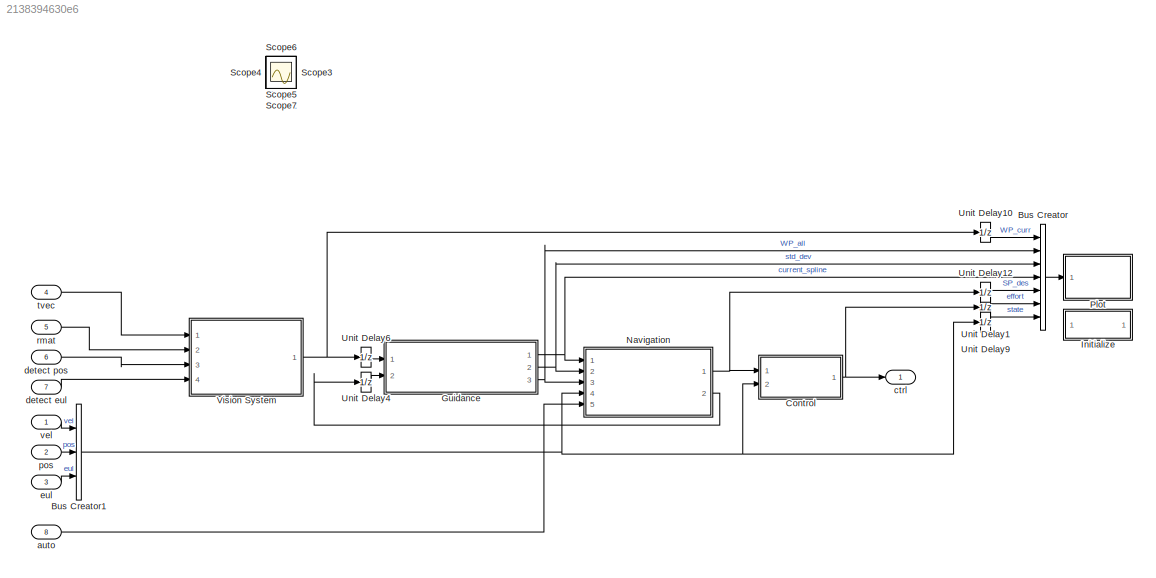
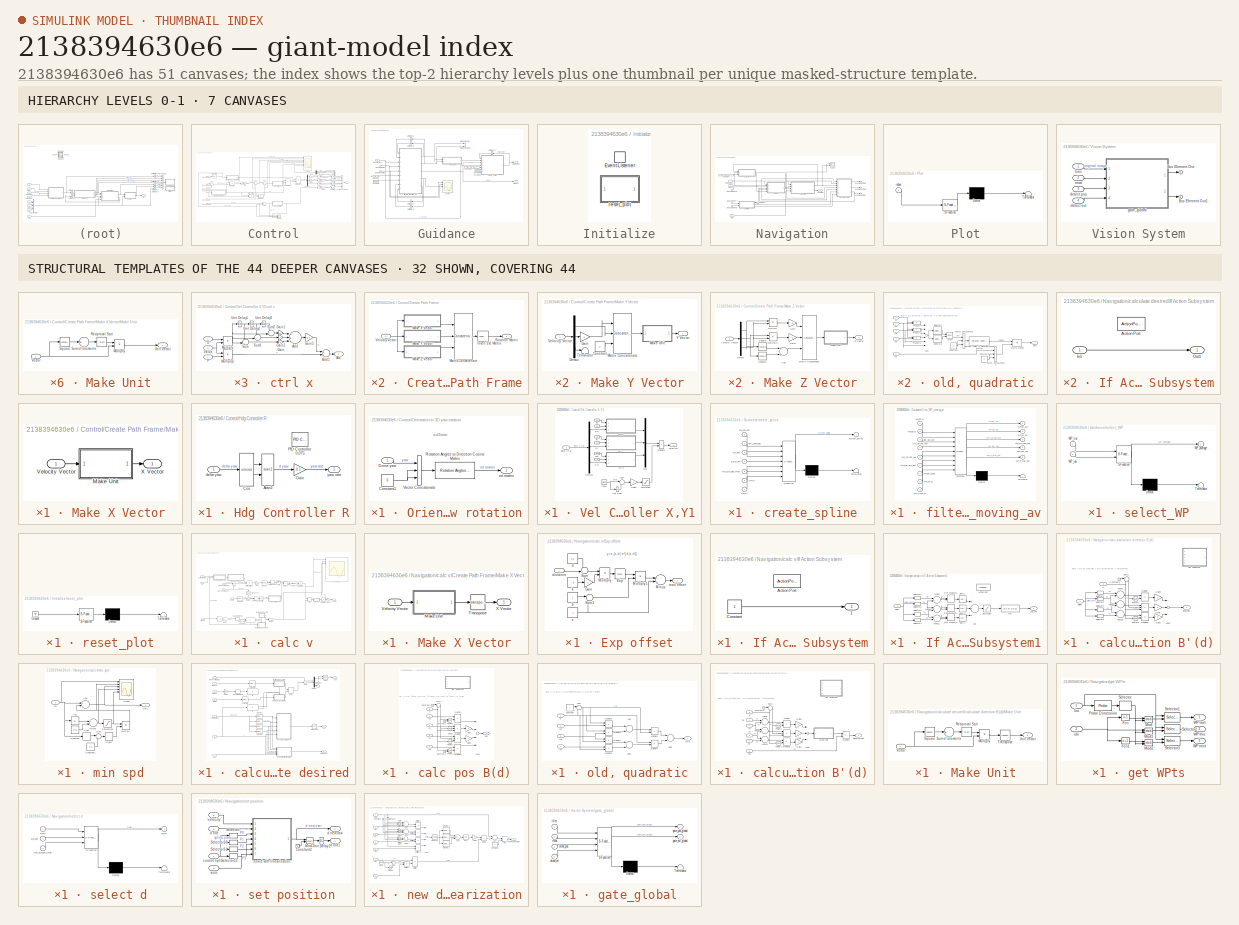
[diagram: thumbnail index - top-2 hierarchy levels (7 canvases) + 32 structural-template representatives of the remaining 44 canvases]
MODEL slx_2138394630e6
KIND model
CONFIG AbsTol = 10
CONFIG EnableMultiTasking = off
CONFIG FixedStep = 0.05
CONFIG MaxStep = 0.5
CONFIG MinStep = 0.3
CONFIG RelTol = 10
CONFIG SampleTimeConstraint = Unconstrained
CONFIG Solver = FixedStepAuto
CONFIG SolverName = FixedStepAuto
CONFIG StartTime = 0.0
CONFIG StopTime = 50
BLOCK [BusCreator] Bus Creator
  DisplayOption = bar
  InheritFromInputs = on
  Inputs = 7
  NonVirtualBus = on
  OutDataTypeStr = Bus: PlotBus
  Ports = [7, 1]
BLOCK [BusCreator] Bus Creator1
  DisplayOption = bar
  InheritFromInputs = on
  Inputs = vel,pos,eul
  Ports = [3, 1]
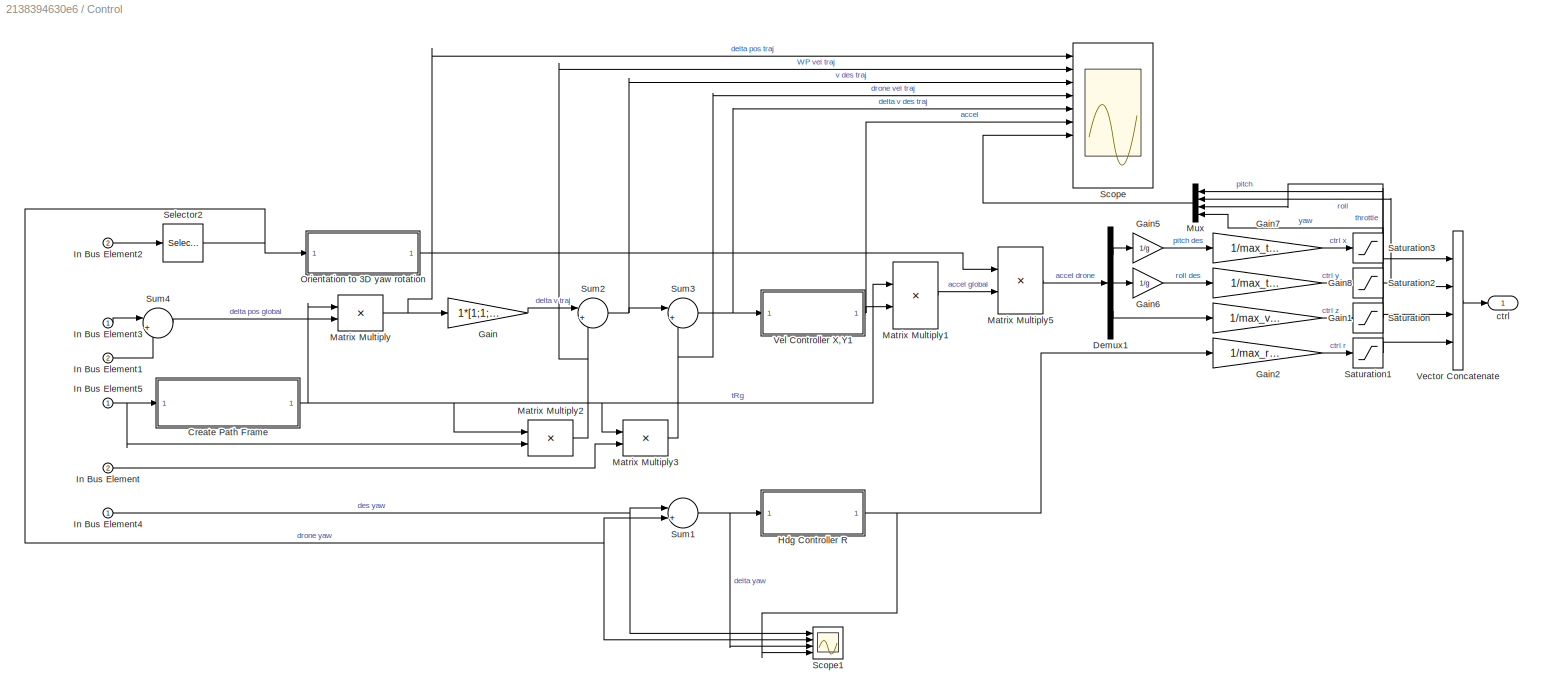
BLOCK [SubSystem] Control
  Ports = [2, 1]
  RequestExecContextInheritance = off
BLOCK [SubSystem] Control/Create Path Frame
  Ports = [1, 1]
  RequestExecContextInheritance = off
BLOCK [Reference] Control/Create Path Frame/Invert 3x3 Matrix  REF=aerolibutil/Invert 
3x3 Matrix
  Ports = [1, 1]
  SourceBlock = aerolibutil/Invert \n3x3 Matrix
  SourceProductBaseCode = AE
  SourceProductName = Aerospace Blockset
  SourceType = Invert 3x3 Matrix
BLOCK [SubSystem] Control/Create Path Frame/Make X Vector
  Ports = [1, 1]
  RequestExecContextInheritance = off
BLOCK [SubSystem] Control/Create Path Frame/Make X Vector/Make Unit
  Ports = [1, 1]
  RequestExecContextInheritance = off
BLOCK [Product] Control/Create Path Frame/Make X Vector/Make Unit/Multiply
  InputSameDT = off
  OutDataTypeStr = Inherit: Inherit via internal rule
  Ports = [2, 1]
  RndMeth = Floor
  SaturateOnIntegerOverflow = off
BLOCK [Sqrt] Control/Create Path Frame/Make X Vector/Make Unit/Reciprocal Sqrt
  Operator = rSqrt
BLOCK [Math] Control/Create Path Frame/Make X Vector/Make Unit/Square
  Operator = square
  Ports = [1, 1]
BLOCK [Sum] Control/Create Path Frame/Make X Vector/Make Unit/Sum of Elements
  InputSameDT = off
  Inputs = +
  OutDataTypeStr = Inherit: Inherit via internal rule
  Ports = [1, 1]
  SaturateOnIntegerOverflow = off
BLOCK [Outport] Control/Create Path Frame/Make X Vector/Make Unit/Unit Vector
  IconDisplay = Port number
BLOCK [Inport] Control/Create Path Frame/Make X Vector/Make Unit/Vector
  IconDisplay = Port number
BLOCK [Inport] Control/Create Path Frame/Make X Vector/Velocity Vector
  IconDisplay = Port number
BLOCK [Outport] Control/Create Path Frame/Make X Vector/X Vector
  IconDisplay = Port number
BLOCK [SubSystem] Control/Create Path Frame/Make Y Vector
  Ports = [1, 1]
  RequestExecContextInheritance = off
BLOCK [Constant] Control/Create Path Frame/Make Y Vector/Constant
  Value = 0
BLOCK [Demux] Control/Create Path Frame/Make Y Vector/Demux
  DisplayOption = bar
  Outputs = 3
  Ports = [1, 3]
BLOCK [Gain] Control/Create Path Frame/Make Y Vector/Gain
  Gain = -1
  OutDataTypeStr = Inherit: Inherit via internal rule
  ParamDataTypeStr = Inherit: Inherit via internal rule
  SaturateOnIntegerOverflow = off
BLOCK [SubSystem] Control/Create Path Frame/Make Y Vector/Make Unit
  Ports = [1, 1]
  RequestExecContextInheritance = off
BLOCK [Product] Control/Create Path Frame/Make Y Vector/Make Unit/Multiply
  InputSameDT = off
  OutDataTypeStr = Inherit: Inherit via internal rule
  Ports = [2, 1]
  RndMeth = Floor
  SaturateOnIntegerOverflow = off
BLOCK [Sqrt] Control/Create Path Frame/Make Y Vector/Make Unit/Reciprocal Sqrt
  Operator = rSqrt
BLOCK [Math] Control/Create Path Frame/Make Y Vector/Make Unit/Square
  Operator = square
  Ports = [1, 1]
BLOCK [Sum] Control/Create Path Frame/Make Y Vector/Make Unit/Sum of Elements
  InputSameDT = off
  Inputs = +
  OutDataTypeStr = Inherit: Inherit via internal rule
  Ports = [1, 1]
  SaturateOnIntegerOverflow = off
BLOCK [Outport] Control/Create Path Frame/Make Y Vector/Make Unit/Unit Vector
  IconDisplay = Port number
BLOCK [Inport] Control/Create Path Frame/Make Y Vector/Make Unit/Vector
  IconDisplay = Port number
BLOCK [Concatenate] Control/Create Path Frame/Make Y Vector/Matrix Concatenate
  Mode = Multidimensional array
  NumInputs = 3
  Ports = [3, 1]
BLOCK [Terminator] Control/Create Path Frame/Make Y Vector/Terminator
BLOCK [Inport] Control/Create Path Frame/Make Y Vector/Velocity Vector
  IconDisplay = Port number
BLOCK [Outport] Control/Create Path Frame/Make Y Vector/Y Vector
  IconDisplay = Port number
BLOCK [SubSystem] Control/Create Path Frame/Make Z Vector
  Ports = [1, 1]
  RequestExecContextInheritance = off
BLOCK [Sum] Control/Create Path Frame/Make Z Vector/Add
  InputSameDT = off
  OutDataTypeStr = Inherit: Inherit via internal rule
  Ports = [2, 1]
  SaturateOnIntegerOverflow = off
BLOCK [Demux] Control/Create Path Frame/Make Z Vector/Demux
  DisplayOption = bar
  Outputs = 3
  Ports = [1, 3]
BLOCK [Gain] Control/Create Path Frame/Make Z Vector/Gain
  Gain = -1
  OutDataTypeStr = Inherit: Inherit via internal rule
  ParamDataTypeStr = Inherit: Inherit via internal rule
  SaturateOnIntegerOverflow = off
BLOCK [Gain] Control/Create Path Frame/Make Z Vector/Gain1
  Gain = -1
  OutDataTypeStr = Inherit: Inherit via internal rule
  ParamDataTypeStr = Inherit: Inherit via internal rule
  SaturateOnIntegerOverflow = off
BLOCK [SubSystem] Control/Create Path Frame/Make Z Vector/Make Unit
  Ports = [1, 1]
  RequestExecContextInheritance = off
BLOCK [Product] Control/Create Path Frame/Make Z Vector/Make Unit/Multiply
  InputSameDT = off
  OutDataTypeStr = Inherit: Inherit via internal rule
  Ports = [2, 1]
  RndMeth = Floor
  SaturateOnIntegerOverflow = off
BLOCK [Sqrt] Control/Create Path Frame/Make Z Vector/Make Unit/Reciprocal Sqrt
  Operator = rSqrt
BLOCK [Math] Control/Create Path Frame/Make Z Vector/Make Unit/Square
  Operator = square
  Ports = [1, 1]
BLOCK [Sum] Control/Create Path Frame/Make Z Vector/Make Unit/Sum of Elements
  InputSameDT = off
  Inputs = +
  OutDataTypeStr = Inherit: Inherit via internal rule
  Ports = [1, 1]
  SaturateOnIntegerOverflow = off
BLOCK [Outport] Control/Create Path Frame/Make Z Vector/Make Unit/Unit Vector
  IconDisplay = Port number
BLOCK [Inport] Control/Create Path Frame/Make Z Vector/Make Unit/Vector
  IconDisplay = Port number
BLOCK [Concatenate] Control/Create Path Frame/Make Z Vector/Matrix Concatenate
  Mode = Multidimensional array
  NumInputs = 3
  Ports = [3, 1]
BLOCK [Product] Control/Create Path Frame/Make Z Vector/Multiply
  InputSameDT = off
  OutDataTypeStr = Inherit: Inherit via internal rule
  Ports = [2, 1]
  RndMeth = Floor
  SaturateOnIntegerOverflow = off
BLOCK [Product] Control/Create Path Frame/Make Z Vector/Multiply1
  InputSameDT = off
  OutDataTypeStr = Inherit: Inherit via internal rule
  Ports = [2, 1]
  RndMeth = Floor
  SaturateOnIntegerOverflow = off
BLOCK [Math] Control/Create Path Frame/Make Z Vector/Square
  Operator = square
  Ports = [1, 1]
BLOCK [Math] Control/Create Path Frame/Make Z Vector/Square1
  Operator = square
  Ports = [1, 1]
BLOCK [Inport] Control/Create Path Frame/Make Z Vector/Velocity Vector
  IconDisplay = Port number
BLOCK [Outport] Control/Create Path Frame/Make Z Vector/Z Vector
  IconDisplay = Port number
BLOCK [Concatenate] Control/Create Path Frame/Matrix Concatenate
  ConcatenateDimension = 2
  Mode = Multidimensional array
  NumInputs = 3
  Ports = [3, 1]
BLOCK [Outport] Control/Create Path Frame/Rotation Matrix
  IconDisplay = Port number
BLOCK [Inport] Control/Create Path Frame/Velocity Vector
  IconDisplay = Port number
BLOCK [Demux] Control/Demux1
  DisplayOption = bar
  Outputs = 3
  Ports = [1, 3]
BLOCK [Gain] Control/Gain
  Gain = 1*[1;1;1]
  OutDataTypeStr = Inherit: Inherit via internal rule
  ParamDataTypeStr = Inherit: Inherit via internal rule
  SaturateOnIntegerOverflow = off
BLOCK [Gain] Control/Gain1
  Gain = 1/max_v_Z
  OutDataTypeStr = Inherit: Inherit via internal rule
  ParamDataTypeStr = Inherit: Inherit via internal rule
  SaturateOnIntegerOverflow = off
BLOCK [Gain] Control/Gain2
  Gain = 1/max_rot_Z
  OutDataTypeStr = Inherit: Inherit via internal rule
  ParamDataTypeStr = Inherit: Inherit via internal rule
  SaturateOnIntegerOverflow = off
BLOCK [Gain] Control/Gain5
  Gain = 1/g
  OutDataTypeStr = Inherit: Inherit via internal rule
  ParamDataTypeStr = Inherit: Inherit via internal rule
  SaturateOnIntegerOverflow = off
BLOCK [Gain] Control/Gain6
  Gain = 1/g
  OutDataTypeStr = Inherit: Inherit via internal rule
  ParamDataTypeStr = Inherit: Inherit via internal rule
  SaturateOnIntegerOverflow = off
BLOCK [Gain] Control/Gain7
  Gain = 1/max_theta_X
  OutDataTypeStr = Inherit: Inherit via internal rule
  ParamDataTypeStr = Inherit: Inherit via internal rule
  SaturateOnIntegerOverflow = off
BLOCK [Gain] Control/Gain8
  Gain = 1/max_theta_Y
  OutDataTypeStr = Inherit: Inherit via internal rule
  ParamDataTypeStr = Inherit: Inherit via internal rule
  SaturateOnIntegerOverflow = off
BLOCK [SubSystem] Control/Hdg Controller R
  Ports = [1, 1]
  RequestExecContextInheritance = off
BLOCK [Trigonometry] Control/Hdg Controller R/Atan2
  Operator = atan2
  Ports = [2, 1]
BLOCK [Trigonometry] Control/Hdg Controller R/Cos
  Operator = sincos
  Ports = [1, 2]
BLOCK [Gain] Control/Hdg Controller R/Gain
  Gain = 0.1
  OutDataTypeStr = Inherit: Inherit via internal rule
  ParamDataTypeStr = Inherit: Inherit via internal rule
  SaturateOnIntegerOverflow = off
BLOCK [Reference] Control/Hdg Controller R/PID Controller 0.075  REF=simulink/Continuous/PID Controller
  Ports = [1, 1]
  SourceBlock = simulink/Continuous/PID Controller
  SourceProductBaseCode = SL
  SourceProductName = Simulink
  SourceType = PID 1dof
BLOCK [Inport] Control/Hdg Controller R/delta yaw
  IconDisplay = Port number
BLOCK [Outport] Control/Hdg Controller R/yaw rate
  IconDisplay = Port number
BLOCK [Inport] Control/In Bus Element
  IconDisplay = Port number
  Port = 2
BLOCK [Inport] Control/In Bus Element1
  IconDisplay = Port number
  Port = 2
BLOCK [Inport] Control/In Bus Element2
  IconDisplay = Port number
  Port = 2
BLOCK [Inport] Control/In Bus Element3
  IconDisplay = Port number
BLOCK [Inport] Control/In Bus Element4
  IconDisplay = Port number
BLOCK [Inport] Control/In Bus Element5
  IconDisplay = Port number
BLOCK [Product] Control/Matrix Multiply
  InputSameDT = off
  Inputs = **
  Multiplication = Matrix(*)
  OutDataTypeStr = Inherit: Inherit via internal rule
  Ports = [2, 1]
  RndMeth = Floor
  SaturateOnIntegerOverflow = off
BLOCK [Product] Control/Matrix Multiply1
  InputSameDT = off
  Inputs = /*
  Multiplication = Matrix(*)
  OutDataTypeStr = Inherit: Inherit via internal rule
  Ports = [2, 1]
  RndMeth = Floor
  SaturateOnIntegerOverflow = off
BLOCK [Product] Control/Matrix Multiply2
  InputSameDT = off
  Inputs = **
  Multiplication = Matrix(*)
  OutDataTypeStr = Inherit: Inherit via internal rule
  Ports = [2, 1]
  RndMeth = Floor
  SaturateOnIntegerOverflow = off
BLOCK [Product] Control/Matrix Multiply3
  InputSameDT = off
  Inputs = **
  Multiplication = Matrix(*)
  OutDataTypeStr = Inherit: Inherit via internal rule
  Ports = [2, 1]
  RndMeth = Floor
  SaturateOnIntegerOverflow = off
BLOCK [Product] Control/Matrix Multiply5
  InputSameDT = off
  Inputs = **
  Multiplication = Matrix(*)
  OutDataTypeStr = Inherit: Inherit via internal rule
  Ports = [2, 1]
  RndMeth = Floor
  SaturateOnIntegerOverflow = off
BLOCK [Mux] Control/Mux
  DisplayOption = bar
  Ports = [4, 1]
BLOCK [SubSystem] Control/Orientation to 3D yaw rotation
  Ports = [1, 1]
  RequestExecContextInheritance = off
BLOCK [Constant] Control/Orientation to 3D yaw rotation/Constant1
  Value = 0
BLOCK [Inport] Control/Orientation to 3D yaw rotation/Drone yaw
  IconDisplay = Port number
BLOCK [Reference] Control/Orientation to 3D yaw rotation/Rotation Angles to Direction Cosine Matrix  REF=sharedtransform/Rotation Angles to
Direction Cosine Matrix
  AttributesFormatString = Rotation Order: %<rotationOrder>
  Ports = [1, 1]
  SourceBlock = sharedtransform/Rotation Angles to\nDirection Cosine Matrix
  SourceProductBaseCode = AE
  SourceProductName = Aerospace Blockset
  SourceType = Ang2DCM
BLOCK [Concatenate] Control/Orientation to 3D yaw rotation/Vector Concatenate
  NumInputs = 3
  Ports = [3, 1]
BLOCK [Outport] Control/Orientation to 3D yaw rotation/rot matrix
  IconDisplay = Port number
BLOCK [Saturate] Control/Saturation
  InputPortMap = u0
  LowerLimit = -1
  Ports = [1, 1]
  UpperLimit = 1
BLOCK [Saturate] Control/Saturation1
  InputPortMap = u0
  LowerLimit = -1
  Ports = [1, 1]
  UpperLimit = 1
BLOCK [Saturate] Control/Saturation2
  InputPortMap = u0
  LowerLimit = -1
  Ports = [1, 1]
  UpperLimit = 1
BLOCK [Saturate] Control/Saturation3
  InputPortMap = u0
  LowerLimit = -1
  Ports = [1, 1]
  UpperLimit = 1
BLOCK [Scope] Control/Scope
  Floating = off
  NumInputPorts = 10
  Ports = [10]
  ScopeSpecificationString = Simulink.scopes.TimeScopeBlockCfg('CurrentConfiguration', extmgr.ConfigurationSet(extmgr.Configuration('Core','General UI',true),extmgr.Configuration('Core','Source UI',true),extmgr.Configuration('Sources','WiredSimulink',true,'DataLoggingVariableName','ScopeData3'),extmgr.Configuration('Visuals','Time Domain',true,'SerializedDisplays',{struct('MinYLimReal','-0.25757','MaxYLimReal','0.90381','YLab...<+2420ch>
BLOCK [Scope] Control/Scope1
  Commented = on
  Floating = off
  NumInputPorts = 4
  Ports = [4]
  ScopeSpecificationString = Simulink.scopes.TimeScopeBlockCfg('CurrentConfiguration', extmgr.ConfigurationSet(extmgr.Configuration('Core','General UI',true),extmgr.Configuration('Core','Source UI',true),extmgr.Configuration('Sources','WiredSimulink',true,'DataLoggingVariableName','ScopeData4'),extmgr.Configuration('Visuals','Time Domain',true,'SerializedDisplays',{struct('MinYLimReal','-3.46855','MaxYLimReal','3.66777','YLab...<+1545ch>
BLOCK [Selector] Control/Selector2
  IndexMode = Zero-based
  IndexOptions = Index vector (dialog)
  Indices = 2
  InputPortWidth = 3
  OutputSizes = 1
  Ports = [1, 1]
BLOCK [Sum] Control/Sum1
  IconShape = round
  InputSameDT = off
  Inputs = |+-
  OutDataTypeStr = Inherit: Inherit via internal rule
  Ports = [2, 1]
  SaturateOnIntegerOverflow = off
BLOCK [Sum] Control/Sum2
  IconShape = round
  InputSameDT = off
  Inputs = |++
  OutDataTypeStr = Inherit: Inherit via internal rule
  Ports = [2, 1]
  SaturateOnIntegerOverflow = off
BLOCK [Sum] Control/Sum3
  IconShape = round
  InputSameDT = off
  Inputs = |+-
  OutDataTypeStr = Inherit: Inherit via internal rule
  Ports = [2, 1]
  SaturateOnIntegerOverflow = off
BLOCK [Sum] Control/Sum4
  IconShape = round
  InputSameDT = off
  Inputs = |+-
  OutDataTypeStr = Inherit: Inherit via internal rule
  Ports = [2, 1]
  SaturateOnIntegerOverflow = off
BLOCK [Concatenate] Control/Vector Concatenate
  NumInputs = 4
  Ports = [4, 1]
BLOCK [SubSystem] Control/Vel Controller X,Y1
  Ports = [1, 1]
  RequestExecContextInheritance = off
BLOCK [Clock] Control/Vel Controller X,Y1/Clock
BLOCK [Demux] Control/Vel Controller X,Y1/Demux1
  DisplayOption = bar
  Outputs = 3
  Ports = [1, 3]
BLOCK [Constant] Control/Vel Controller X,Y1/Dx
  Value = 0.1
BLOCK [Constant] Control/Vel Controller X,Y1/Dx1
  Value = 0
BLOCK [Constant] Control/Vel Controller X,Y1/Dy
  Value = 0.1
BLOCK [Gain] Control/Vel Controller X,Y1/Gain3
  Gain = 5
  OutDataTypeStr = Inherit: Inherit via internal rule
  ParamDataTypeStr = Inherit: Inherit via internal rule
  SaturateOnIntegerOverflow = off
BLOCK [Product] Control/Vel Controller X,Y1/Multiply3
  InputSameDT = off
  Inputs = */
  OutDataTypeStr = Inherit: Inherit via internal rule
  Ports = [2, 1]
  RndMeth = Floor
  SaturateOnIntegerOverflow = off
BLOCK [Mux] Control/Vel Controller X,Y1/Mux
  DisplayOption = bar
  Inputs = 3
  Ports = [3, 1]
BLOCK [Constant] Control/Vel Controller X,Y1/Px
  Value = 0.3
BLOCK [Constant] Control/Vel Controller X,Y1/Px1
  Value = 0.07
BLOCK [Constant] Control/Vel Controller X,Y1/Py
  Value = 0.3
BLOCK [Saturate] Control/Vel Controller X,Y1/Saturation
  InputPortMap = u0
  LowerLimit = 0.00001
  Ports = [1, 1]
  UpperLimit = 100
BLOCK [Sum] Control/Vel Controller X,Y1/Sum
  IconShape = round
  InputSameDT = off
  Inputs = |+-
  OutDataTypeStr = Inherit: Inherit via internal rule
  Ports = [2, 1]
  SaturateOnIntegerOverflow = off
BLOCK [UnitDelay] Control/Vel Controller X,Y1/Unit Delay
  InputProcessing = Elements as channels (sample based)
  SampleTime = -1
BLOCK [Outport] Control/Vel Controller X,Y1/accel traj
  IconDisplay = Port number
BLOCK [SubSystem] Control/Vel Controller X,Y1/ctrl x
  Ports = [3, 1]
  RequestExecContextInheritance = off
BLOCK [Outport] Control/Vel Controller X,Y1/ctrl x/Acc
  IconDisplay = Port number
BLOCK [Sum] Control/Vel Controller X,Y1/ctrl x/Add
  InputSameDT = off
  Inputs = +++
  OutDataTypeStr = Inherit: Inherit via internal rule
  Ports = [3, 1]
  SaturateOnIntegerOverflow = off
BLOCK [Sum] Control/Vel Controller X,Y1/ctrl x/Add1
  InputSameDT = off
  OutDataTypeStr = Inherit: Inherit via internal rule
  Ports = [2, 1]
  SaturateOnIntegerOverflow = off
BLOCK [Inport] Control/Vel Controller X,Y1/ctrl x/D
  IconDisplay = Port number
  Port = 2
BLOCK [Gain] Control/Vel Controller X,Y1/ctrl x/Gain
  Gain = 3
  OutDataTypeStr = Inherit: Inherit via internal rule
  ParamDataTypeStr = Inherit: Inherit via internal rule
  SaturateOnIntegerOverflow = off
BLOCK [Gain] Control/Vel Controller X,Y1/ctrl x/Gain1
  OutDataTypeStr = Inherit: Inherit via internal rule
  ParamDataTypeStr = Inherit: Inherit via internal rule
  SaturateOnIntegerOverflow = off
BLOCK [Gain] Control/Vel Controller X,Y1/ctrl x/Gain2
  Gain = 2
  OutDataTypeStr = Inherit: Inherit via internal rule
  ParamDataTypeStr = Inherit: Inherit via internal rule
  SaturateOnIntegerOverflow = off
BLOCK [Gain] Control/Vel Controller X,Y1/ctrl x/Gain3
  Gain = 0.1
  OutDataTypeStr = Inherit: Inherit via internal rule
  ParamDataTypeStr = Inherit: Inherit via internal rule
  SaturateOnIntegerOverflow = off
BLOCK [Product] Control/Vel Controller X,Y1/ctrl x/Multiply
  InputSameDT = off
  OutDataTypeStr = Inherit: Inherit via internal rule
  Ports = [2, 1]
  RndMeth = Floor
  SaturateOnIntegerOverflow = off
BLOCK [Product] Control/Vel Controller X,Y1/ctrl x/Multiply1
  InputSameDT = off
  OutDataTypeStr = Inherit: Inherit via internal rule
  Ports = [2, 1]
  RndMeth = Floor
  SaturateOnIntegerOverflow = off
BLOCK [Inport] Control/Vel Controller X,Y1/ctrl x/P
  IconDisplay = Port number
BLOCK [Sum] Control/Vel Controller X,Y1/ctrl x/Sum
  IconShape = round
  InputSameDT = off
  Inputs = -+|
  OutDataTypeStr = Inherit: Inherit via internal rule
  Ports = [2, 1]
  SaturateOnIntegerOverflow = off
BLOCK [Sum] Control/Vel Controller X,Y1/ctrl x/Sum1
  IconShape = round
  InputSameDT = off
  Inputs = -+|
  OutDataTypeStr = Inherit: Inherit via internal rule
  Ports = [2, 1]
  SaturateOnIntegerOverflow = off
BLOCK [Sum] Control/Vel Controller X,Y1/ctrl x/Sum2
  IconShape = round
  InputSameDT = off
  Inputs = -+|
  OutDataTypeStr = Inherit: Inherit via internal rule
  Ports = [2, 1]
  SaturateOnIntegerOverflow = off
BLOCK [UnitDelay] Control/Vel Controller X,Y1/ctrl x/Unit Delay1
  InputProcessing = Elements as channels (sample based)
  SampleTime = -1
BLOCK [UnitDelay] Control/Vel Controller X,Y1/ctrl x/Unit Delay2
  InputProcessing = Elements as channels (sample based)
  SampleTime = -1
BLOCK [UnitDelay] Control/Vel Controller X,Y1/ctrl x/Unit Delay3
  InputProcessing = Elements as channels (sample based)
  SampleTime = -1
BLOCK [Inport] Control/Vel Controller X,Y1/ctrl x/Value
  IconDisplay = Port number
  Port = 3
BLOCK [SubSystem] Control/Vel Controller X,Y1/ctrl y
  Ports = [3, 1]
  RequestExecContextInheritance = off
BLOCK [Outport] Control/Vel Controller X,Y1/ctrl y/Acc
  IconDisplay = Port number
BLOCK [Sum] Control/Vel Controller X,Y1/ctrl y/Add
  InputSameDT = off
  Inputs = +++
  OutDataTypeStr = Inherit: Inherit via internal rule
  Ports = [3, 1]
  SaturateOnIntegerOverflow = off
BLOCK [Sum] Control/Vel Controller X,Y1/ctrl y/Add1
  InputSameDT = off
  OutDataTypeStr = Inherit: Inherit via internal rule
  Ports = [2, 1]
  SaturateOnIntegerOverflow = off
BLOCK [Inport] Control/Vel Controller X,Y1/ctrl y/D
  IconDisplay = Port number
  Port = 2
BLOCK [Gain] Control/Vel Controller X,Y1/ctrl y/Gain
  Gain = 3
  OutDataTypeStr = Inherit: Inherit via internal rule
  ParamDataTypeStr = Inherit: Inherit via internal rule
  SaturateOnIntegerOverflow = off
BLOCK [Gain] Control/Vel Controller X,Y1/ctrl y/Gain1
  OutDataTypeStr = Inherit: Inherit via internal rule
  ParamDataTypeStr = Inherit: Inherit via internal rule
  SaturateOnIntegerOverflow = off
BLOCK [Gain] Control/Vel Controller X,Y1/ctrl y/Gain2
  Gain = 2
  OutDataTypeStr = Inherit: Inherit via internal rule
  ParamDataTypeStr = Inherit: Inherit via internal rule
  SaturateOnIntegerOverflow = off
BLOCK [Gain] Control/Vel Controller X,Y1/ctrl y/Gain3
  Gain = 0.1
  OutDataTypeStr = Inherit: Inherit via internal rule
  ParamDataTypeStr = Inherit: Inherit via internal rule
  SaturateOnIntegerOverflow = off
BLOCK [Product] Control/Vel Controller X,Y1/ctrl y/Multiply
  InputSameDT = off
  OutDataTypeStr = Inherit: Inherit via internal rule
  Ports = [2, 1]
  RndMeth = Floor
  SaturateOnIntegerOverflow = off
BLOCK [Product] Control/Vel Controller X,Y1/ctrl y/Multiply1
  InputSameDT = off
  OutDataTypeStr = Inherit: Inherit via internal rule
  Ports = [2, 1]
  RndMeth = Floor
  SaturateOnIntegerOverflow = off
BLOCK [Inport] Control/Vel Controller X,Y1/ctrl y/P
  IconDisplay = Port number
BLOCK [Sum] Control/Vel Controller X,Y1/ctrl y/Sum
  IconShape = round
  InputSameDT = off
  Inputs = -+|
  OutDataTypeStr = Inherit: Inherit via internal rule
  Ports = [2, 1]
  SaturateOnIntegerOverflow = off
BLOCK [Sum] Control/Vel Controller X,Y1/ctrl y/Sum1
  IconShape = round
  InputSameDT = off
  Inputs = -+|
  OutDataTypeStr = Inherit: Inherit via internal rule
  Ports = [2, 1]
  SaturateOnIntegerOverflow = off
BLOCK [Sum] Control/Vel Controller X,Y1/ctrl y/Sum2
  IconShape = round
  InputSameDT = off
  Inputs = -+|
  OutDataTypeStr = Inherit: Inherit via internal rule
  Ports = [2, 1]
  SaturateOnIntegerOverflow = off
BLOCK [UnitDelay] Control/Vel Controller X,Y1/ctrl y/Unit Delay1
  InputProcessing = Elements as channels (sample based)
  SampleTime = -1
BLOCK [UnitDelay] Control/Vel Controller X,Y1/ctrl y/Unit Delay2
  InputProcessing = Elements as channels (sample based)
  SampleTime = -1
BLOCK [UnitDelay] Control/Vel Controller X,Y1/ctrl y/Unit Delay3
  InputProcessing = Elements as channels (sample based)
  SampleTime = -1
BLOCK [Inport] Control/Vel Controller X,Y1/ctrl y/Value
  IconDisplay = Port number
  Port = 3
BLOCK [SubSystem] Control/Vel Controller X,Y1/ctrl z
  Ports = [3, 1]
  RequestExecContextInheritance = off
BLOCK [Outport] Control/Vel Controller X,Y1/ctrl z/Acc
  IconDisplay = Port number
BLOCK [Sum] Control/Vel Controller X,Y1/ctrl z/Add
  InputSameDT = off
  Inputs = +++
  OutDataTypeStr = Inherit: Inherit via internal rule
  Ports = [3, 1]
  SaturateOnIntegerOverflow = off
BLOCK [Sum] Control/Vel Controller X,Y1/ctrl z/Add1
  InputSameDT = off
  OutDataTypeStr = Inherit: Inherit via internal rule
  Ports = [2, 1]
  SaturateOnIntegerOverflow = off
BLOCK [Inport] Control/Vel Controller X,Y1/ctrl z/D
  IconDisplay = Port number
  Port = 2
BLOCK [Gain] Control/Vel Controller X,Y1/ctrl z/Gain
  Gain = 3
  OutDataTypeStr = Inherit: Inherit via internal rule
  ParamDataTypeStr = Inherit: Inherit via internal rule
  SaturateOnIntegerOverflow = off
BLOCK [Gain] Control/Vel Controller X,Y1/ctrl z/Gain1
  OutDataTypeStr = Inherit: Inherit via internal rule
  ParamDataTypeStr = Inherit: Inherit via internal rule
  SaturateOnIntegerOverflow = off
BLOCK [Gain] Control/Vel Controller X,Y1/ctrl z/Gain2
  Gain = 2
  OutDataTypeStr = Inherit: Inherit via internal rule
  ParamDataTypeStr = Inherit: Inherit via internal rule
  SaturateOnIntegerOverflow = off
BLOCK [Gain] Control/Vel Controller X,Y1/ctrl z/Gain3
  Gain = 0.1
  OutDataTypeStr = Inherit: Inherit via internal rule
  ParamDataTypeStr = Inherit: Inherit via internal rule
  SaturateOnIntegerOverflow = off
BLOCK [Product] Control/Vel Controller X,Y1/ctrl z/Multiply
  InputSameDT = off
  OutDataTypeStr = Inherit: Inherit via internal rule
  Ports = [2, 1]
  RndMeth = Floor
  SaturateOnIntegerOverflow = off
BLOCK [Product] Control/Vel Controller X,Y1/ctrl z/Multiply1
  InputSameDT = off
  OutDataTypeStr = Inherit: Inherit via internal rule
  Ports = [2, 1]
  RndMeth = Floor
  SaturateOnIntegerOverflow = off
BLOCK [Inport] Control/Vel Controller X,Y1/ctrl z/P
  IconDisplay = Port number
BLOCK [Sum] Control/Vel Controller X,Y1/ctrl z/Sum
  IconShape = round
  InputSameDT = off
  Inputs = -+|
  OutDataTypeStr = Inherit: Inherit via internal rule
  Ports = [2, 1]
  SaturateOnIntegerOverflow = off
BLOCK [Sum] Control/Vel Controller X,Y1/ctrl z/Sum1
  IconShape = round
  InputSameDT = off
  Inputs = -+|
  OutDataTypeStr = Inherit: Inherit via internal rule
  Ports = [2, 1]
  SaturateOnIntegerOverflow = off
BLOCK [Sum] Control/Vel Controller X,Y1/ctrl z/Sum2
  IconShape = round
  InputSameDT = off
  Inputs = -+|
  OutDataTypeStr = Inherit: Inherit via internal rule
  Ports = [2, 1]
  SaturateOnIntegerOverflow = off
BLOCK [UnitDelay] Control/Vel Controller X,Y1/ctrl z/Unit Delay1
  InputProcessing = Elements as channels (sample based)
  SampleTime = -1
BLOCK [UnitDelay] Control/Vel Controller X,Y1/ctrl z/Unit Delay2
  InputProcessing = Elements as channels (sample based)
  SampleTime = -1
BLOCK [UnitDelay] Control/Vel Controller X,Y1/ctrl z/Unit Delay3
  InputProcessing = Elements as channels (sample based)
  SampleTime = -1
BLOCK [Inport] Control/Vel Controller X,Y1/ctrl z/Value
  IconDisplay = Port number
  Port = 3
BLOCK [Inport] Control/Vel Controller X,Y1/delta V traj
  IconDisplay = Port number
BLOCK [Outport] Control/ctrl
  IconDisplay = Port number
BLOCK [SubSystem] Guidance
  Ports = [2, 3]
  RequestExecContextInheritance = off
BLOCK [Inport] Guidance/Bus Element In
  IconDisplay = Port number
BLOCK [Inport] Guidance/Bus Element In1
  IconDisplay = Port number
BLOCK [Constant] Guidance/Constant
  Value = two_std_dev_init
BLOCK [Constant] Guidance/Constant1
  Value = flightplan
BLOCK [Constant] Guidance/Constant2
  Value = two_std_dev_thres
BLOCK [Constant] Guidance/Constant3
  Value = HFOV
BLOCK [Constant] Guidance/Constant4
  Value = VFOV
BLOCK [Outport] Guidance/Out Bus Element
  IconDisplay = Port number
  Port = 3
BLOCK [Outport] Guidance/Out Bus Element1
  IconDisplay = Port number
  Port = 3
BLOCK [Scope] Guidance/Scope
  Floating = off
  NumInputPorts = 5
  Ports = [5]
  ScopeSpecificationString = Simulink.scopes.TimeScopeBlockCfg('CurrentConfiguration', extmgr.ConfigurationSet(extmgr.Configuration('Core','General UI',true),extmgr.Configuration('Core','Source UI',true),extmgr.Configuration('Sources','WiredSimulink',true,'DataLoggingVariableName','ScopeData1'),extmgr.Configuration('Visuals','Time Domain',true,'SerializedDisplays',{struct('MinYLimReal','-3.57055','MaxYLimReal','6.59049','YLab...<+1997ch>
BLOCK [UnitDelay] Guidance/Unit Delay2
  InputProcessing = Elements as channels (sample based)
  SampleTime = -1
BLOCK [UnitDelay] Guidance/Unit Delay3
  InitialCondition = flightplan
  InputProcessing = Elements as channels (sample based)
  SampleTime = -1
BLOCK [UnitDelay] Guidance/Unit Delay4
  InitialCondition = spline_init
  InputProcessing = Elements as channels (sample based)
  SampleTime = -1
BLOCK [UnitDelay] Guidance/Unit Delay5
  InitialCondition = ones(4,4)
  InputProcessing = Elements as channels (sample based)
  SampleTime = -1
BLOCK [UnitDelay] Guidance/Unit Delay6
  InitialCondition = ones(1,4)
  InputProcessing = Elements as channels (sample based)
  SampleTime = -1
BLOCK [SubSystem] Guidance/create_spline
  ErrorFcn = Stateflow.Translate.translate
  PermitHierarchicalResolution = ExplicitOnly
  Ports = [7, 1]
  RequestExecContextInheritance = off
  SFBlockType = MATLAB Function
  TreatAsAtomicUnit = on
BLOCK [Demux] Guidance/create_spline/ Demux 
  Outputs = 1
  Ports = [1, 1]
BLOCK [S-Function] Guidance/create_spline/ SFunction 
  EnableBusSupport = on
  FunctionName = sf_sfun
  PortCounts = [7 2]
  Ports = [7, 2]
  SFcnIsStateOwnerBlock = off
  SFunctionDeploymentMode = off
  Tag = Stateflow S-Function GNC_exp 10
BLOCK [Terminator] Guidance/create_spline/ Terminator 
BLOCK [Inport] Guidance/create_spline/HFOV
  IconDisplay = Port number
  Port = 7
BLOCK [Inport] Guidance/create_spline/VFOV
  IconDisplay = Port number
  Port = 6
BLOCK [Inport] Guidance/create_spline/WP_average
  IconDisplay = Port number
  Port = 2
BLOCK [Outport] Guidance/create_spline/current_spline
  IconDisplay = Port number
BLOCK [Inport] Guidance/create_spline/d_old_raw
  IconDisplay = Port number
  Port = 4
BLOCK [Inport] Guidance/create_spline/old_spline
  IconDisplay = Port number
BLOCK [Inport] Guidance/create_spline/std_dev
  IconDisplay = Port number
  Port = 3
BLOCK [Inport] Guidance/create_spline/two_std_dev_thres
  IconDisplay = Port number
  Port = 5
BLOCK [Outport] Guidance/current spline
  IconDisplay = Port number
BLOCK [Inport] Guidance/dist_old_raw
  IconDisplay = Port number
  Port = 2
BLOCK [SubSystem] Guidance/filter_WP_moving_av
  ErrorFcn = Stateflow.Translate.translate
  PermitHierarchicalResolution = ExplicitOnly
  Ports = [9, 5]
  RequestExecContextInheritance = off
  SFBlockType = MATLAB Function
  TreatAsAtomicUnit = on
BLOCK [Demux] Guidance/filter_WP_moving_av/ Demux 
  Outputs = 1
  Ports = [1, 1]
BLOCK [S-Function] Guidance/filter_WP_moving_av/ SFunction 
  EnableBusSupport = on
  FunctionName = sf_sfun
  PortCounts = [9 6]
  Ports = [9, 6]
  SFcnIsStateOwnerBlock = off
  SFunctionDeploymentMode = off
  Tag = Stateflow S-Function GNC_exp 17
BLOCK [Terminator] Guidance/filter_WP_moving_av/ Terminator 
BLOCK [Inport] Guidance/filter_WP_moving_av/WP_P_mat_in
  IconDisplay = Port number
  Port = 9
BLOCK [Outport] Guidance/filter_WP_moving_av/WP_P_mat_out
  IconDisplay = Port number
  Port = 5
BLOCK [Inport] Guidance/filter_WP_moving_av/WP_current_eul
  IconDisplay = Port number
  Port = 5
BLOCK [Inport] Guidance/filter_WP_moving_av/WP_current_pos
  IconDisplay = Port number
  Port = 4
BLOCK [Inport] Guidance/filter_WP_moving_av/WP_est_in
  IconDisplay = Port number
  Port = 8
BLOCK [Outport] Guidance/filter_WP_moving_av/WP_est_out
  IconDisplay = Port number
  Port = 4
BLOCK [Inport] Guidance/filter_WP_moving_av/WP_idx_in
  IconDisplay = Port number
  Port = 2
BLOCK [Outport] Guidance/filter_WP_moving_av/WP_idx_out
  IconDisplay = Port number
  Port = 2
BLOCK [Inport] Guidance/filter_WP_moving_av/WP_list_const
  IconDisplay = Port number
  Port = 7
BLOCK [Inport] Guidance/filter_WP_moving_av/WP_list_in
  IconDisplay = Port number
BLOCK [Outport] Guidance/filter_WP_moving_av/WP_list_out
  IconDisplay = Port number
BLOCK [Outport] Guidance/filter_WP_moving_av/WP_std_dev_out
  IconDisplay = Port number
  Port = 3
BLOCK [Inport] Guidance/filter_WP_moving_av/dist_old_raw
  IconDisplay = Port number
  Port = 3
BLOCK [Inport] Guidance/filter_WP_moving_av/two_init_std_dev
  IconDisplay = Port number
  Port = 6
BLOCK [SubSystem] Guidance/select_WP
  ErrorFcn = Stateflow.Translate.translate
  PermitHierarchicalResolution = ExplicitOnly
  Ports = [2, 1]
  RequestExecContextInheritance = off
  SFBlockType = MATLAB Function
  TreatAsAtomicUnit = on
BLOCK [Demux] Guidance/select_WP/ Demux 
  Outputs = 1
  Ports = [1, 1]
BLOCK [S-Function] Guidance/select_WP/ SFunction 
  EnableBusSupport = on
  FunctionName = sf_sfun
  PortCounts = [2 2]
  Ports = [2, 2]
  SFcnIsStateOwnerBlock = off
  SFunctionDeploymentMode = off
  Tag = Stateflow S-Function GNC_exp 9
BLOCK [Terminator] Guidance/select_WP/ Terminator 
BLOCK [Outport] Guidance/select_WP/WP_average
  IconDisplay = Port number
BLOCK [Inport] Guidance/select_WP/WP_idx
  IconDisplay = Port number
  Port = 2
BLOCK [Inport] Guidance/select_WP/WP_list
  IconDisplay = Port number
BLOCK [Outport] Guidance/std dev
  IconDisplay = Port number
  Port = 2
BLOCK [SubSystem] Initialize
  Ports = []
  RequestExecContextInheritance = off
  TreatAsAtomicUnit = on
BLOCK [EventListener] Initialize/Event Listener
  DisableCoverage = on
  EventName = reset
BLOCK [SubSystem] Initialize/reset_plot
  ErrorFcn = Stateflow.Translate.translate
  PermitHierarchicalResolution = ExplicitOnly
  Ports = []
  RequestExecContextInheritance = off
  SFBlockType = MATLAB Function
  TreatAsAtomicUnit = on
BLOCK [Demux] Initialize/reset_plot/ Demux 
  Outputs = 1
  Ports = [1, 1]
BLOCK [Ground] Initialize/reset_plot/ Ground 
BLOCK [S-Function] Initialize/reset_plot/ SFunction 
  EnableBusSupport = on
  FunctionName = sf_sfun
  PortCounts = [1 1]
  Ports = [1, 1]
  SFcnIsStateOwnerBlock = off
  SFunctionDeploymentMode = off
  Tag = Stateflow S-Function GNC_exp 3
BLOCK [Terminator] Initialize/reset_plot/ Terminator 
BLOCK [SubSystem] Navigation
  Ports = [5, 2]
  RequestExecContextInheritance = off
BLOCK [Outport] Navigation/Bus Element Out
  IconDisplay = Port number
BLOCK [Outport] Navigation/Bus Element Out1
  IconDisplay = Port number
BLOCK [Outport] Navigation/Bus Element Out2
  IconDisplay = Port number
BLOCK [Constant] Navigation/Constant
  Value = two_std_dev_thres
BLOCK [Inport] Navigation/In Bus Element
  IconDisplay = Port number
  Port = 3
BLOCK [Inport] Navigation/In Bus Element1
  IconDisplay = Port number
  Port = 4
BLOCK [Inport] Navigation/In Bus Element3
  IconDisplay = Port number
  Port = 3
BLOCK [Scope] Navigation/Scope
  Commented = on
  Floating = off
  NumInputPorts = 5
  Ports = [5]
  ScopeSpecificationString = Simulink.scopes.TimeScopeBlockCfg('CurrentConfiguration', extmgr.ConfigurationSet(extmgr.Configuration('Core','General UI',true),extmgr.Configuration('Core','Source UI',true),extmgr.Configuration('Sources','WiredSimulink',true,'DataLoggingVariableName','ScopeData1'),extmgr.Configuration('Visuals','Time Domain',true,'SerializedDisplays',{struct('MinYLimReal','-0.12499','MaxYLimReal','1.12494','YLab...<+1445ch>
BLOCK [Terminator] Navigation/Terminator
BLOCK [Inport] Navigation/auto
  IconDisplay = Port number
  Port = 5
BLOCK [SubSystem] Navigation/calc v
  Ports = [6, 1]
  RequestExecContextInheritance = off
BLOCK [Constant] Navigation/calc v/Constant
  Value = two_std_dev_thres
BLOCK [SubSystem] Navigation/calc v/Create Path Frame
  Ports = [1, 1]
  RequestExecContextInheritance = off
BLOCK [Reference] Navigation/calc v/Create Path Frame/Invert 3x3 Matrix  REF=aerolibutil/Invert 
3x3 Matrix
  Ports = [1, 1]
  SourceBlock = aerolibutil/Invert \n3x3 Matrix
  SourceProductBaseCode = AE
  SourceProductName = Aerospace Blockset
  SourceType = Invert 3x3 Matrix
BLOCK [SubSystem] Navigation/calc v/Create Path Frame/Make X Vector
  Ports = [1, 1]
  RequestExecContextInheritance = off
BLOCK [SubSystem] Navigation/calc v/Create Path Frame/Make X Vector/Make Unit
  Ports = [1, 1]
  RequestExecContextInheritance = off
BLOCK [Product] Navigation/calc v/Create Path Frame/Make X Vector/Make Unit/Multiply
  InputSameDT = off
  OutDataTypeStr = Inherit: Inherit via internal rule
  Ports = [2, 1]
  RndMeth = Floor
  SaturateOnIntegerOverflow = off
BLOCK [Sqrt] Navigation/calc v/Create Path Frame/Make X Vector/Make Unit/Reciprocal Sqrt
  Operator = rSqrt
BLOCK [Math] Navigation/calc v/Create Path Frame/Make X Vector/Make Unit/Square
  Operator = square
  Ports = [1, 1]
BLOCK [Sum] Navigation/calc v/Create Path Frame/Make X Vector/Make Unit/Sum of Elements
  InputSameDT = off
  Inputs = +
  OutDataTypeStr = Inherit: Inherit via internal rule
  Ports = [1, 1]
  SaturateOnIntegerOverflow = off
BLOCK [Outport] Navigation/calc v/Create Path Frame/Make X Vector/Make Unit/Unit Vector
  IconDisplay = Port number
BLOCK [Inport] Navigation/calc v/Create Path Frame/Make X Vector/Make Unit/Vector
  IconDisplay = Port number
BLOCK [Math] Navigation/calc v/Create Path Frame/Make X Vector/Transpose
  Operator = transpose
  Ports = [1, 1]
BLOCK [Inport] Navigation/calc v/Create Path Frame/Make X Vector/Velocity Vector
  IconDisplay = Port number
BLOCK [Outport] Navigation/calc v/Create Path Frame/Make X Vector/X Vector
  IconDisplay = Port number
BLOCK [SubSystem] Navigation/calc v/Create Path Frame/Make Y Vector
  Ports = [1, 1]
  RequestExecContextInheritance = off
BLOCK [Constant] Navigation/calc v/Create Path Frame/Make Y Vector/Constant
  Value = 0
BLOCK [Demux] Navigation/calc v/Create Path Frame/Make Y Vector/Demux
  DisplayOption = bar
  Outputs = 3
  Ports = [1, 3]
BLOCK [Gain] Navigation/calc v/Create Path Frame/Make Y Vector/Gain
  Gain = -1
  OutDataTypeStr = Inherit: Inherit via internal rule
  ParamDataTypeStr = Inherit: Inherit via internal rule
  SaturateOnIntegerOverflow = off
BLOCK [SubSystem] Navigation/calc v/Create Path Frame/Make Y Vector/Make Unit
  Ports = [1, 1]
  RequestExecContextInheritance = off
BLOCK [Product] Navigation/calc v/Create Path Frame/Make Y Vector/Make Unit/Multiply
  InputSameDT = off
  OutDataTypeStr = Inherit: Inherit via internal rule
  Ports = [2, 1]
  RndMeth = Floor
  SaturateOnIntegerOverflow = off
BLOCK [Sqrt] Navigation/calc v/Create Path Frame/Make Y Vector/Make Unit/Reciprocal Sqrt
  Operator = rSqrt
BLOCK [Math] Navigation/calc v/Create Path Frame/Make Y Vector/Make Unit/Square
  Operator = square
  Ports = [1, 1]
BLOCK [Sum] Navigation/calc v/Create Path Frame/Make Y Vector/Make Unit/Sum of Elements
  InputSameDT = off
  Inputs = +
  OutDataTypeStr = Inherit: Inherit via internal rule
  Ports = [1, 1]
  SaturateOnIntegerOverflow = off
BLOCK [Outport] Navigation/calc v/Create Path Frame/Make Y Vector/Make Unit/Unit Vector
  IconDisplay = Port number
BLOCK [Inport] Navigation/calc v/Create Path Frame/Make Y Vector/Make Unit/Vector
  IconDisplay = Port number
BLOCK [Concatenate] Navigation/calc v/Create Path Frame/Make Y Vector/Matrix Concatenate
  Mode = Multidimensional array
  NumInputs = 3
  Ports = [3, 1]
BLOCK [Terminator] Navigation/calc v/Create Path Frame/Make Y Vector/Terminator
BLOCK [Inport] Navigation/calc v/Create Path Frame/Make Y Vector/Velocity Vector
  IconDisplay = Port number
BLOCK [Outport] Navigation/calc v/Create Path Frame/Make Y Vector/Y Vector
  IconDisplay = Port number
BLOCK [SubSystem] Navigation/calc v/Create Path Frame/Make Z Vector
  Ports = [1, 1]
  RequestExecContextInheritance = off
BLOCK [Sum] Navigation/calc v/Create Path Frame/Make Z Vector/Add
  InputSameDT = off
  OutDataTypeStr = Inherit: Inherit via internal rule
  Ports = [2, 1]
  SaturateOnIntegerOverflow = off
BLOCK [Demux] Navigation/calc v/Create Path Frame/Make Z Vector/Demux
  DisplayOption = bar
  Outputs = 3
  Ports = [1, 3]
BLOCK [Gain] Navigation/calc v/Create Path Frame/Make Z Vector/Gain
  Gain = -1
  OutDataTypeStr = Inherit: Inherit via internal rule
  ParamDataTypeStr = Inherit: Inherit via internal rule
  SaturateOnIntegerOverflow = off
BLOCK [Gain] Navigation/calc v/Create Path Frame/Make Z Vector/Gain1
  Gain = -1
  OutDataTypeStr = Inherit: Inherit via internal rule
  ParamDataTypeStr = Inherit: Inherit via internal rule
  SaturateOnIntegerOverflow = off
BLOCK [SubSystem] Navigation/calc v/Create Path Frame/Make Z Vector/Make Unit
  Ports = [1, 1]
  RequestExecContextInheritance = off
BLOCK [Product] Navigation/calc v/Create Path Frame/Make Z Vector/Make Unit/Multiply
  InputSameDT = off
  OutDataTypeStr = Inherit: Inherit via internal rule
  Ports = [2, 1]
  RndMeth = Floor
  SaturateOnIntegerOverflow = off
BLOCK [Sqrt] Navigation/calc v/Create Path Frame/Make Z Vector/Make Unit/Reciprocal Sqrt
  Operator = rSqrt
BLOCK [Math] Navigation/calc v/Create Path Frame/Make Z Vector/Make Unit/Square
  Operator = square
  Ports = [1, 1]
BLOCK [Sum] Navigation/calc v/Create Path Frame/Make Z Vector/Make Unit/Sum of Elements
  InputSameDT = off
  Inputs = +
  OutDataTypeStr = Inherit: Inherit via internal rule
  Ports = [1, 1]
  SaturateOnIntegerOverflow = off
BLOCK [Outport] Navigation/calc v/Create Path Frame/Make Z Vector/Make Unit/Unit Vector
  IconDisplay = Port number
BLOCK [Inport] Navigation/calc v/Create Path Frame/Make Z Vector/Make Unit/Vector
  IconDisplay = Port number
BLOCK [Concatenate] Navigation/calc v/Create Path Frame/Make Z Vector/Matrix Concatenate
  Mode = Multidimensional array
  NumInputs = 3
  Ports = [3, 1]
BLOCK [Product] Navigation/calc v/Create Path Frame/Make Z Vector/Multiply
  InputSameDT = off
  OutDataTypeStr = Inherit: Inherit via internal rule
  Ports = [2, 1]
  RndMeth = Floor
  SaturateOnIntegerOverflow = off
BLOCK [Product] Navigation/calc v/Create Path Frame/Make Z Vector/Multiply1
  InputSameDT = off
  OutDataTypeStr = Inherit: Inherit via internal rule
  Ports = [2, 1]
  RndMeth = Floor
  SaturateOnIntegerOverflow = off
BLOCK [Math] Navigation/calc v/Create Path Frame/Make Z Vector/Square
  Operator = square
  Ports = [1, 1]
BLOCK [Math] Navigation/calc v/Create Path Frame/Make Z Vector/Square1
  Operator = square
  Ports = [1, 1]
BLOCK [Inport] Navigation/calc v/Create Path Frame/Make Z Vector/Velocity Vector
  IconDisplay = Port number
BLOCK [Outport] Navigation/calc v/Create Path Frame/Make Z Vector/Z Vector
  IconDisplay = Port number
BLOCK [Concatenate] Navigation/calc v/Create Path Frame/Matrix Concatenate
  ConcatenateDimension = 2
  Mode = Multidimensional array
  NumInputs = 3
  Ports = [3, 1]
BLOCK [Outport] Navigation/calc v/Create Path Frame/Rotation Matrix
  IconDisplay = Port number
BLOCK [Inport] Navigation/calc v/Create Path Frame/Velocity Vector
  IconDisplay = Port number
BLOCK [Product] Navigation/calc v/Divide1
  InputSameDT = off
  Inputs = */
  OutDataTypeStr = Inherit: Inherit via internal rule
  Ports = [2, 1]
  RndMeth = Floor
  SaturateOnIntegerOverflow = off
BLOCK [DotProduct] Navigation/calc v/Dot Product1
  OutDataTypeStr = Inherit: Inherit via internal rule
BLOCK [DotProduct] Navigation/calc v/Dot Product3
  OutDataTypeStr = Inherit: Inherit via internal rule
BLOCK [SubSystem] Navigation/calc v/Exp offset
  Ports = [1, 1]
  RequestExecContextInheritance = off
BLOCK [Math] Navigation/calc v/Exp offset/Exp
  Ports = [1, 1]
BLOCK [Gain] Navigation/calc v/Exp offset/Gain
  Gain = -1
  OutDataTypeStr = Inherit: Inherit via internal rule
  ParamDataTypeStr = Inherit: Inherit via internal rule
  SaturateOnIntegerOverflow = off
BLOCK [Sum] Navigation/calc v/Exp offset/Minus
  InputSameDT = off
  Inputs = -+
  OutDataTypeStr = Inherit: Inherit via internal rule
  Ports = [2, 1]
  SaturateOnIntegerOverflow = off
BLOCK [Product] Navigation/calc v/Exp offset/Multiply
  InputSameDT = off
  OutDataTypeStr = Inherit: Inherit via internal rule
  Ports = [2, 1]
  RndMeth = Floor
  SaturateOnIntegerOverflow = off
BLOCK [Product] Navigation/calc v/Exp offset/Multiply1
  InputSameDT = off
  OutDataTypeStr = Inherit: Inherit via internal rule
  Ports = [2, 1]
  RndMeth = Floor
  SaturateOnIntegerOverflow = off
BLOCK [Sum] Navigation/calc v/Exp offset/Sum
  IconShape = round
  InputSameDT = off
  Inputs = -+|
  OutDataTypeStr = Inherit: Inherit via internal rule
  Ports = [2, 1]
  SaturateOnIntegerOverflow = off
BLOCK [Sum] Navigation/calc v/Exp offset/Sum1
  IconShape = round
  InputSameDT = off
  Inputs = |-+
  OutDataTypeStr = Inherit: Inherit via internal rule
  Ports = [2, 1]
  SaturateOnIntegerOverflow = off
BLOCK [Constant] Navigation/calc v/Exp offset/b
BLOCK [Constant] Navigation/calc v/Exp offset/d
  Value = 2.5
BLOCK [Inport] Navigation/calc v/Exp offset/distance
  IconDisplay = Port number
BLOCK [Constant] Navigation/calc v/Exp offset/k
  Value = -.8
BLOCK [Outport] Navigation/calc v/Exp offset/max offset
  IconDisplay = Port number
BLOCK [Constant] Navigation/calc v/Exp offset/s
  Value = .1
BLOCK [Fcn] Navigation/calc v/Fcn
  Expr = sqrt(1-u*u)
BLOCK [Gain] Navigation/calc v/Gain2
  Gain = 2*[1 1 1 1/(30*pi/180)]
  OutDataTypeStr = Inherit: Inherit via internal rule
  ParamDataTypeStr = Inherit: Inherit via internal rule
  SaturateOnIntegerOverflow = off
BLOCK [Gain] Navigation/calc v/Gain3
  Gain = [0;1;1]
  OutDataTypeStr = Inherit: Inherit via internal rule
  ParamDataTypeStr = Inherit: Inherit via internal rule
  SaturateOnIntegerOverflow = off
BLOCK [Gain] Navigation/calc v/Gain4
  Gain = max_vel
  OutDataTypeStr = Inherit: Inherit via internal rule
  ParamDataTypeStr = Inherit: Inherit via internal rule
  SaturateOnIntegerOverflow = off
BLOCK [If] Navigation/calc v/If
  IfExpression = u1<=u2
  NumInputs = 2
  Ports = [2, 2]
BLOCK [SubSystem] Navigation/calc v/If Action Subsystem
  Ports = [0, 1, 0, 0, 0, 0, 0, 1]
  RequestExecContextInheritance = off
  TreatAsAtomicUnit = on
BLOCK [Outport] Navigation/calc v/If Action Subsystem/1
  IconDisplay = Port number
BLOCK [ActionPort] Navigation/calc v/If Action Subsystem/Action Port
  ActionType = then
BLOCK [Constant] Navigation/calc v/If Action Subsystem/Constant
BLOCK [SubSystem] Navigation/calc v/If Action Subsystem1
  Ports = [1, 1, 0, 0, 0, 0, 0, 1]
  RequestExecContextInheritance = off
  TreatAsAtomicUnit = on
BLOCK [ActionPort] Navigation/calc v/If Action Subsystem1/Action Port
  ActionType = else
BLOCK [Sum] Navigation/calc v/If Action Subsystem1/Add
  InputSameDT = off
  Inputs = +++
  OutDataTypeStr = Inherit: Inherit via internal rule
  Ports = [3, 1]
  SaturateOnIntegerOverflow = off
BLOCK [DotProduct] Navigation/calc v/If Action Subsystem1/Dot Product1
  OutDataTypeStr = Inherit: Inherit via internal rule
BLOCK [DotProduct] Navigation/calc v/If Action Subsystem1/Dot Product2
  OutDataTypeStr = Inherit: Inherit via internal rule
BLOCK [DotProduct] Navigation/calc v/If Action Subsystem1/Dot Product3
  OutDataTypeStr = Inherit: Inherit via internal rule
BLOCK [Fcn] Navigation/calc v/If Action Subsystem1/Fcn
  Expr = (u/1.5)^2-0.01
BLOCK [Sum] Navigation/calc v/If Action Subsystem1/Minus
  InputSameDT = off
  Inputs = -+
  OutDataTypeStr = Inherit: Inherit via internal rule
  Ports = [2, 1]
  SaturateOnIntegerOverflow = off
BLOCK [Sum] Navigation/calc v/If Action Subsystem1/Minus1
  InputSameDT = off
  Inputs = -+
  OutDataTypeStr = Inherit: Inherit via internal rule
  Ports = [2, 1]
  SaturateOnIntegerOverflow = off
BLOCK [Sum] Navigation/calc v/If Action Subsystem1/Minus2
  InputSameDT = off
  Inputs = -+
  OutDataTypeStr = Inherit: Inherit via internal rule
  Ports = [2, 1]
  SaturateOnIntegerOverflow = off
BLOCK [Saturate] Navigation/calc v/If Action Subsystem1/Saturation
  InputPortMap = u0
  LowerLimit = -1
  Ports = [1, 1]
  UpperLimit = 1.5
BLOCK [Selector] Navigation/calc v/If Action Subsystem1/Selector1
  IndexMode = Zero-based
  IndexOptions = Index vector (dialog),Select all
  Indices = 0,[0 1 2]
  InputPortWidth = 3
  NumberOfDimensions = 2
  OutputSizes = 1,1
  Ports = [1, 1]
BLOCK [Selector] Navigation/calc v/If Action Subsystem1/Selector2
  IndexMode = Zero-based
  IndexOptions = Index vector (dialog),Select all
  Indices = 1,[0 1 2]
  InputPortWidth = 3
  NumberOfDimensions = 2
  OutputSizes = 1,1
  Ports = [1, 1]
BLOCK [Selector] Navigation/calc v/If Action Subsystem1/Selector3
  IndexMode = Zero-based
  IndexOptions = Index vector (dialog),Select all
  Indices = 2,[0 1 2]
  InputPortWidth = 3
  NumberOfDimensions = 2
  OutputSizes = 1,1
  Ports = [1, 1]
BLOCK [Selector] Navigation/calc v/If Action Subsystem1/Selector4
  IndexMode = Zero-based
  IndexOptions = Index vector (dialog),Select all
  Indices = 3,[0 1 2]
  InputPortWidth = 3
  NumberOfDimensions = 2
  OutputSizes = 1,1
  Ports = [1, 1]
BLOCK [Sqrt] Navigation/calc v/If Action Subsystem1/Sqrt1
BLOCK [Sqrt] Navigation/calc v/If Action Subsystem1/Sqrt2
BLOCK [Sqrt] Navigation/calc v/If Action Subsystem1/Sqrt3
BLOCK [Outport] Navigation/calc v/If Action Subsystem1/red vel
  IconDisplay = Port number
BLOCK [Inport] Navigation/calc v/If Action Subsystem1/spline
  IconDisplay = Port number
BLOCK [Product] Navigation/calc v/Matrix Multiply1
  InputSameDT = off
  Inputs = **
  Multiplication = Matrix(*)
  OutDataTypeStr = Inherit: Inherit via internal rule
  Ports = [2, 1]
  RndMeth = Floor
  SaturateOnIntegerOverflow = off
BLOCK [MinMax] Navigation/calc v/Max of Elements
  Function = max
  InputSameDT = off
  Ports = [1, 1]
  SaturateOnIntegerOverflow = off
BLOCK [Merge] Navigation/calc v/Merge
  Ports = [2, 1]
BLOCK [MinMax] Navigation/calc v/Min
  InputSameDT = off
  Inputs = 2
  Ports = [2, 1]
  SaturateOnIntegerOverflow = off
BLOCK [Saturate] Navigation/calc v/Saturation
  Commented = through
  InputPortMap = u0
  LowerLimit = 0.99
  Ports = [1, 1]
  UpperLimit = 1.01
BLOCK [Saturate] Navigation/calc v/Saturation1
  InputPortMap = u0
  LowerLimit = 0
  Ports = [1, 1]
  UpperLimit = 1
BLOCK [Scope] Navigation/calc v/Scope
  Commented = on
  Floating = off
  NumInputPorts = 10
  Ports = [10]
  ScopeSpecificationString = Simulink.scopes.TimeScopeBlockCfg('CurrentConfiguration', extmgr.ConfigurationSet(extmgr.Configuration('Core','General UI',true),extmgr.Configuration('Core','Source UI',true),extmgr.Configuration('Sources','WiredSimulink',true,'DataLoggingVariableName','ScopeData1'),extmgr.Configuration('Visuals','Time Domain',true,'SerializedDisplays',{struct('MinYLimReal','-0.125','MaxYLimReal','1.125','YLabelRe...<+1723ch>
BLOCK [Selector] Navigation/calc v/Selector
  IndexMode = Zero-based
  IndexOptions = Index vector (dialog)
  Indices = [0 1 2]
  InputPortWidth = 3
  OutputSizes = 1
  Ports = [1, 1]
BLOCK [Selector] Navigation/calc v/Selector5
  IndexMode = Zero-based
  IndexOptions = Select all,Index vector (dialog)
  Indices = [1 2 3],[0 1 2]
  InputPortWidth = 4
  NumberOfDimensions = 2
  OutputSizes = 1,1
  Ports = [1, 1]
BLOCK [Sqrt] Navigation/calc v/Sqrt1
BLOCK [Sqrt] Navigation/calc v/Sqrt3
BLOCK [Sum] Navigation/calc v/Sum
  IconShape = round
  InputSameDT = off
  Inputs = |+-
  OutDataTypeStr = Inherit: Inherit via internal rule
  Ports = [2, 1]
  SaturateOnIntegerOverflow = off
BLOCK [Sum] Navigation/calc v/Sum2
  IconShape = round
  InputSameDT = off
  Inputs = -+|
  OutDataTypeStr = Inherit: Inherit via internal rule
  Ports = [2, 1]
  SaturateOnIntegerOverflow = off
BLOCK [Math] Navigation/calc v/Transpose
  Operator = transpose
  Ports = [1, 1]
BLOCK [Inport] Navigation/calc v/WP this
  IconDisplay = Port number
  Port = 4
BLOCK [SubSystem] Navigation/calc v/calculate direction B'(d)
  Ports = [2, 1]
  RequestExecContextInheritance = off
BLOCK [Sum] Navigation/calc v/calculate direction B'(d)/Add3
  InputSameDT = off
  Inputs = +++
  OutDataTypeStr = Inherit: Inherit via internal rule
  Ports = [3, 1]
  SaturateOnIntegerOverflow = off
BLOCK [Constant] Navigation/calc v/calculate direction B'(d)/Constant3
BLOCK [Gain] Navigation/calc v/calculate direction B'(d)/Gain
  Gain = 6
  OutDataTypeStr = Inherit: Inherit via internal rule
  ParamDataTypeStr = Inherit: Inherit via internal rule
  SaturateOnIntegerOverflow = off
BLOCK [Gain] Navigation/calc v/calculate direction B'(d)/Gain1
  Gain = 3
  OutDataTypeStr = Inherit: Inherit via internal rule
  ParamDataTypeStr = Inherit: Inherit via internal rule
  SaturateOnIntegerOverflow = off
BLOCK [Gain] Navigation/calc v/calculate direction B'(d)/Gain2
  Gain = 3
  OutDataTypeStr = Inherit: Inherit via internal rule
  ParamDataTypeStr = Inherit: Inherit via internal rule
  SaturateOnIntegerOverflow = off
BLOCK [Sum] Navigation/calc v/calculate direction B'(d)/Minus
  InputSameDT = off
  Inputs = -+
  OutDataTypeStr = Inherit: Inherit via internal rule
  Ports = [2, 1]
  SaturateOnIntegerOverflow = off
BLOCK [Sum] Navigation/calc v/calculate direction B'(d)/Minus1
  InputSameDT = off
  Inputs = -+
  OutDataTypeStr = Inherit: Inherit via internal rule
  Ports = [2, 1]
  SaturateOnIntegerOverflow = off
BLOCK [Sum] Navigation/calc v/calculate direction B'(d)/Minus2
  InputSameDT = off
  Inputs = -+
  OutDataTypeStr = Inherit: Inherit via internal rule
  Ports = [2, 1]
  SaturateOnIntegerOverflow = off
BLOCK [Product] Navigation/calc v/calculate direction B'(d)/Multiply
  InputSameDT = off
  OutDataTypeStr = Inherit: Inherit via internal rule
  Ports = [2, 1]
  RndMeth = Floor
  SaturateOnIntegerOverflow = off
BLOCK [Product] Navigation/calc v/calculate direction B'(d)/Multiply1
  InputSameDT = off
  Inputs = 3
  OutDataTypeStr = Inherit: Inherit via internal rule
  Ports = [3, 1]
  RndMeth = Floor
  SaturateOnIntegerOverflow = off
BLOCK [Product] Navigation/calc v/calculate direction B'(d)/Multiply8
  InputSameDT = off
  OutDataTypeStr = Inherit: Inherit via internal rule
  Ports = [2, 1]
  RndMeth = Floor
  SaturateOnIntegerOverflow = off
BLOCK [Math] Navigation/calc v/calculate direction B'(d)/Power1
  Operator = square
  Ports = [1, 1]
BLOCK [Math] Navigation/calc v/calculate direction B'(d)/Power2
  Operator = square
  Ports = [1, 1]
BLOCK [Selector] Navigation/calc v/calculate direction B'(d)/Selector1
  IndexMode = Zero-based
  IndexOptions = Index vector (dialog),Select all
  Indices = 0,[0 1 2]
  InputPortWidth = 3
  NumberOfDimensions = 2
  OutputSizes = 1,1
  Ports = [1, 1]
BLOCK [Selector] Navigation/calc v/calculate direction B'(d)/Selector2
  IndexMode = Zero-based
  IndexOptions = Index vector (dialog),Select all
  Indices = 1,[0 1 2]
  InputPortWidth = 3
  NumberOfDimensions = 2
  OutputSizes = 1,1
  Ports = [1, 1]
BLOCK [Selector] Navigation/calc v/calculate direction B'(d)/Selector3
  IndexMode = Zero-based
  IndexOptions = Index vector (dialog),Select all
  Indices = 2,[0 1 2]
  InputPortWidth = 3
  NumberOfDimensions = 2
  OutputSizes = 1,1
  Ports = [1, 1]
BLOCK [Selector] Navigation/calc v/calculate direction B'(d)/Selector4
  IndexMode = Zero-based
  IndexOptions = Index vector (dialog),Select all
  Indices = 3,[0 1 2]
  InputPortWidth = 3
  NumberOfDimensions = 2
  OutputSizes = 1,1
  Ports = [1, 1]
BLOCK [Sum] Navigation/calc v/calculate direction B'(d)/Sum1
  IconShape = round
  InputSameDT = off
  Inputs = |+-
  OutDataTypeStr = Inherit: Inherit via internal rule
  Ports = [2, 1]
  SaturateOnIntegerOverflow = off
BLOCK [Inport] Navigation/calc v/calculate direction B'(d)/d
  IconDisplay = Port number
  Port = 2
BLOCK [Outport] Navigation/calc v/calculate direction B'(d)/direction
  IconDisplay = Port number
BLOCK [SubSystem] Navigation/calc v/calculate direction B'(d)/old, quadratic
  Commented = on
  Ports = [5, 1]
  RequestExecContextInheritance = off
BLOCK [Sum] Navigation/calc v/calculate direction B'(d)/old, quadratic/Add1
  Commented = on
  InputSameDT = off
  Inputs = +--++-
  OutDataTypeStr = Inherit: Inherit via internal rule
  Ports = [6, 1]
  SaturateOnIntegerOverflow = off
BLOCK [Trigonometry] Navigation/calc v/calculate direction B'(d)/old, quadratic/Atan1
  Commented = on
  Operator = atan2
  Ports = [2, 1]
BLOCK [Constant] Navigation/calc v/calculate direction B'(d)/old, quadratic/Constant1
  Commented = on
  Value = 0
BLOCK [Constant] Navigation/calc v/calculate direction B'(d)/old, quadratic/Constant2
  Commented = on
  Value = 0
BLOCK [Product] Navigation/calc v/calculate direction B'(d)/old, quadratic/Matrix Multiply
  Commented = on
  InputSameDT = off
  Inputs = /*
  Multiplication = Matrix(*)
  OutDataTypeStr = Inherit: Inherit via internal rule
  Ports = [2, 1]
  RndMeth = Floor
  SaturateOnIntegerOverflow = off
BLOCK [Outport] Navigation/calc v/calculate direction B'(d)/old, quadratic/Out1
  IconDisplay = Port number
BLOCK [Inport] Navigation/calc v/calculate direction B'(d)/old, quadratic/P0
  IconDisplay = Port number
  Port = 2
BLOCK [Inport] Navigation/calc v/calculate direction B'(d)/old, quadratic/P1
  IconDisplay = Port number
  Port = 3
BLOCK [Inport] Navigation/calc v/calculate direction B'(d)/old, quadratic/P2
  IconDisplay = Port number
  Port = 4
BLOCK [Product] Navigation/calc v/calculate direction B'(d)/old, quadratic/Product
  Commented = on
  InputSameDT = off
  OutDataTypeStr = Inherit: Inherit via internal rule
  Ports = [2, 1]
  RndMeth = Floor
  SaturateOnIntegerOverflow = off
BLOCK [Product] Navigation/calc v/calculate direction B'(d)/old, quadratic/Product1
  Commented = on
  InputSameDT = off
  OutDataTypeStr = Inherit: Inherit via internal rule
  Ports = [2, 1]
  RndMeth = Floor
  SaturateOnIntegerOverflow = off
BLOCK [Product] Navigation/calc v/calculate direction B'(d)/old, quadratic/Product2
  Commented = on
  InputSameDT = off
  OutDataTypeStr = Inherit: Inherit via internal rule
  Ports = [2, 1]
  RndMeth = Floor
  SaturateOnIntegerOverflow = off
BLOCK [Reference] Navigation/calc v/calculate direction B'(d)/old, quadratic/Rotation Angles to Direction Cosine Matrix1  REF=sharedtransform/Rotation Angles to
Direction Cosine Matrix
  AttributesFormatString = Rotation Order: %<rotationOrder>
  Commented = on
  Ports = [1, 1]
  SourceBlock = sharedtransform/Rotation Angles to\nDirection Cosine Matrix
  SourceProductBaseCode = AE
  SourceProductName = Aerospace Blockset
  SourceType = Ang2DCM
BLOCK [Selector] Navigation/calc v/calculate direction B'(d)/old, quadratic/Selector7
  Commented = on
  IndexMode = Zero-based
  IndexOptions = Index vector (dialog)
  Indices = 1
  InputPortWidth = 3
  OutputSizes = 1
  Ports = [1, 1]
BLOCK [Selector] Navigation/calc v/calculate direction B'(d)/old, quadratic/Selector8
  Commented = on
  IndexMode = Zero-based
  IndexOptions = Index vector (dialog)
  Indices = 0
  InputPortWidth = 3
  OutputSizes = 1
  Ports = [1, 1]
BLOCK [Concatenate] Navigation/calc v/calculate direction B'(d)/old, quadratic/Vector Concatenate
  Commented = on
  NumInputs = 3
  Ports = [3, 1]
BLOCK [Concatenate] Navigation/calc v/calculate direction B'(d)/old, quadratic/Vector Concatenate1
  Commented = on
  NumInputs = 3
  Ports = [3, 1]
BLOCK [Inport] Navigation/calc v/calculate direction B'(d)/old, quadratic/d
  IconDisplay = Port number
BLOCK [Inport] Navigation/calc v/calculate direction B'(d)/old, quadratic/vel
  IconDisplay = Port number
  Port = 5
BLOCK [Inport] Navigation/calc v/calculate direction B'(d)/spline
  IconDisplay = Port number
BLOCK [Inport] Navigation/calc v/current spline
  IconDisplay = Port number
BLOCK [Inport] Navigation/calc v/d
  IconDisplay = Port number
  Port = 6
BLOCK [Inport] Navigation/calc v/drone current pos
  IconDisplay = Port number
  Port = 3
BLOCK [Inport] Navigation/calc v/drone desired pos
  IconDisplay = Port number
  Port = 5
BLOCK [SubSystem] Navigation/calc v/min spd
  Ports = [1, 1]
  RequestExecContextInheritance = off
BLOCK [Abs] Navigation/calc v/min spd/Abs
  SaturateOnIntegerOverflow = off
BLOCK [Sum] Navigation/calc v/min spd/Add
  InputSameDT = off
  Inputs = +-
  OutDataTypeStr = Inherit: Inherit via internal rule
  Ports = [2, 1]
  SaturateOnIntegerOverflow = off
BLOCK [Constant] Navigation/calc v/min spd/Constant
  Value = 0.01
BLOCK [Constant] Navigation/calc v/min spd/Constant1
  Value = 0.5
BLOCK [Inport] Navigation/calc v/min spd/In1
  IconDisplay = Port number
BLOCK [Sum] Navigation/calc v/min spd/Minus
  InputSameDT = off
  Inputs = +-
  OutDataTypeStr = Inherit: Inherit via internal rule
  Ports = [2, 1]
  SaturateOnIntegerOverflow = off
BLOCK [Product] Navigation/calc v/min spd/Multiply
  InputSameDT = off
  OutDataTypeStr = Inherit: Inherit via internal rule
  Ports = [2, 1]
  RndMeth = Floor
  SaturateOnIntegerOverflow = off
BLOCK [Outport] Navigation/calc v/min spd/Out1
  IconDisplay = Port number
BLOCK [Saturate] Navigation/calc v/min spd/Saturation
  InputPortMap = u0
  LowerLimit = -1
  Ports = [1, 1]
  UpperLimit = 0
BLOCK [Scope] Navigation/calc v/min spd/Scope
  Commented = on
  Floating = off
  NumInputPorts = 7
  Ports = [7]
  ScopeSpecificationString = Simulink.scopes.TimeScopeBlockCfg('CurrentConfiguration', extmgr.ConfigurationSet(extmgr.Configuration('Core','General UI',true),extmgr.Configuration('Core','Source UI',true),extmgr.Configuration('Sources','WiredSimulink',true,'DataLoggingVariableName','ScopeData1'),extmgr.Configuration('Visuals','Time Domain',true,'SerializedDisplays',{struct('MinYLimReal','-0.125','MaxYLimReal','1.125','YLabelRe...<+1606ch>
BLOCK [Signum] Navigation/calc v/min spd/Sign
BLOCK [Signum] Navigation/calc v/min spd/Sign1
BLOCK [Sum] Navigation/calc v/min spd/Sum
  IconShape = round
  InputSameDT = off
  Inputs = |++
  OutDataTypeStr = Inherit: Inherit via internal rule
  Ports = [2, 1]
  SaturateOnIntegerOverflow = off
BLOCK [Inport] Navigation/calc v/std dev
  IconDisplay = Port number
  Port = 2
BLOCK [Outport] Navigation/calc v/velocity
  IconDisplay = Port number
BLOCK [SubSystem] Navigation/calculate desired
  Ports = [7, 3]
  RequestExecContextInheritance = off
BLOCK [Trigonometry] Navigation/calculate desired/Atan2
  Operator = atan2
  Ports = [2, 1]
BLOCK [Demux] Navigation/calculate desired/Demux
  DisplayOption = bar
  Outputs = 3
  Ports = [1, 3]
BLOCK [Gain] Navigation/calculate desired/Gain2
  Gain = 2*[1 1 1 1/(30*pi/180)]
  OutDataTypeStr = Inherit: Inherit via internal rule
  ParamDataTypeStr = Inherit: Inherit via internal rule
  SaturateOnIntegerOverflow = off
BLOCK [SubSystem] Navigation/calculate desired/If Action Subsystem
  Ports = [1, 1, 0, 0, 0, 0, 0, 1]
  RequestExecContextInheritance = off
  TreatAsAtomicUnit = on
BLOCK [ActionPort] Navigation/calculate desired/If Action Subsystem/Action Port
  ActionType = then
BLOCK [Inport] Navigation/calculate desired/If Action Subsystem/In1
  IconDisplay = Port number
BLOCK [Outport] Navigation/calculate desired/If Action Subsystem/Out1
  IconDisplay = Port number
BLOCK [SubSystem] Navigation/calculate desired/If Action Subsystem1
  Ports = [1, 1, 0, 0, 0, 0, 0, 1]
  RequestExecContextInheritance = off
  TreatAsAtomicUnit = on
BLOCK [ActionPort] Navigation/calculate desired/If Action Subsystem1/Action Port
  ActionType = else
BLOCK [Inport] Navigation/calculate desired/If Action Subsystem1/In1
  IconDisplay = Port number
BLOCK [Outport] Navigation/calculate desired/If Action Subsystem1/Out1
  IconDisplay = Port number
BLOCK [If] Navigation/calculate desired/If1
  IfExpression = u1>.5
  Ports = [1, 2]
BLOCK [If] Navigation/calculate desired/If2
  IfExpression = u1<.2
  Ports = [1, 2]
BLOCK [MinMax] Navigation/calculate desired/Max of Elements
  Function = max
  InputSameDT = off
  Ports = [1, 1]
  SaturateOnIntegerOverflow = off
BLOCK [Merge] Navigation/calculate desired/Merge
  Ports = [2, 1]
BLOCK [Selector] Navigation/calculate desired/Selector
  IndexMode = Zero-based
  IndexOptions = Index vector (dialog),Select all
  Indices = 0,[0 1 2]
  InputPortWidth = 3
  NumberOfDimensions = 2
  OutputSizes = 1,1
  Ports = [1, 1]
BLOCK [Selector] Navigation/calculate desired/Selector1
  IndexMode = Zero-based
  IndexOptions = Index vector (dialog),Select all
  Indices = 1,[0 1 2]
  InputPortWidth = 3
  NumberOfDimensions = 2
  OutputSizes = 1,1
  Ports = [1, 1]
BLOCK [Selector] Navigation/calculate desired/Selector2
  IndexMode = Zero-based
  IndexOptions = Select all,Index vector (dialog)
  Indices = [1 2 3],[0 1 2]
  InputPortWidth = 4
  NumberOfDimensions = 2
  OutputSizes = 1,1
  Ports = [1, 1]
BLOCK [Selector] Navigation/calculate desired/Selector3
  IndexMode = Zero-based
  IndexOptions = Index vector (dialog),Select all
  Indices = 2,[0 1 2]
  InputPortWidth = 3
  NumberOfDimensions = 2
  OutputSizes = 1,1
  Ports = [1, 1]
BLOCK [Selector] Navigation/calculate desired/Selector4
  IndexMode = Zero-based
  IndexOptions = Index vector (dialog),Select all
  Indices = 3,[0 1 2]
  InputPortWidth = 3
  NumberOfDimensions = 2
  OutputSizes = 1,1
  Ports = [1, 1]
BLOCK [Selector] Navigation/calculate desired/Selector5
  IndexMode = Zero-based
  IndexOptions = Select all,Index vector (dialog)
  Indices = [1 2 3],[0 1 2]
  InputPortWidth = 4
  NumberOfDimensions = 2
  OutputSizes = 1,1
  Ports = [1, 1]
BLOCK [Sum] Navigation/calculate desired/Sum
  IconShape = round
  InputSameDT = off
  Inputs = -+|
  OutDataTypeStr = Inherit: Inherit via internal rule
  Ports = [2, 1]
  SaturateOnIntegerOverflow = off
BLOCK [Terminator] Navigation/calculate desired/Terminator
BLOCK [Math] Navigation/calculate desired/Transpose
  Operator = transpose
  Ports = [1, 1]
BLOCK [Inport] Navigation/calculate desired/WP next
  IconDisplay = Port number
  Port = 7
BLOCK [Inport] Navigation/calculate desired/WP this
  IconDisplay = Port number
  Port = 6
BLOCK [Outport] Navigation/calculate desired/WP vel des
  IconDisplay = Port number
  Port = 2
BLOCK [SubSystem] Navigation/calculate desired/calc pos B(d)
  Ports = [5, 1]
  RequestExecContextInheritance = off
BLOCK [Sum] Navigation/calculate desired/calc pos B(d)/Add3
  InputSameDT = off
  Inputs = ++++
  OutDataTypeStr = Inherit: Inherit via internal rule
  Ports = [4, 1]
  SaturateOnIntegerOverflow = off
BLOCK [Constant] Navigation/calculate desired/calc pos B(d)/Constant1
BLOCK [Constant] Navigation/calculate desired/calc pos B(d)/Constant2
  Value = 3
BLOCK [Constant] Navigation/calculate desired/calc pos B(d)/Constant3
  Value = 3
BLOCK [Gain] Navigation/calculate desired/calc pos B(d)/Gain
  Gain = 3
  OutDataTypeStr = Inherit: Inherit via internal rule
  ParamDataTypeStr = Inherit: Inherit via internal rule
  SaturateOnIntegerOverflow = off
BLOCK [Gain] Navigation/calculate desired/calc pos B(d)/Gain1
  Gain = 3
  OutDataTypeStr = Inherit: Inherit via internal rule
  ParamDataTypeStr = Inherit: Inherit via internal rule
  SaturateOnIntegerOverflow = off
BLOCK [Product] Navigation/calculate desired/calc pos B(d)/Multiply
  InputSameDT = off
  OutDataTypeStr = Inherit: Inherit via internal rule
  Ports = [2, 1]
  RndMeth = Floor
  SaturateOnIntegerOverflow = off
BLOCK [Product] Navigation/calculate desired/calc pos B(d)/Multiply1
  InputSameDT = off
  Inputs = 3
  OutDataTypeStr = Inherit: Inherit via internal rule
  Ports = [3, 1]
  RndMeth = Floor
  SaturateOnIntegerOverflow = off
BLOCK [Product] Navigation/calculate desired/calc pos B(d)/Multiply8
  InputSameDT = off
  Inputs = 3
  OutDataTypeStr = Inherit: Inherit via internal rule
  Ports = [3, 1]
  RndMeth = Floor
  SaturateOnIntegerOverflow = off
BLOCK [Product] Navigation/calculate desired/calc pos B(d)/Multiply9
  InputSameDT = off
  OutDataTypeStr = Inherit: Inherit via internal rule
  Ports = [2, 1]
  RndMeth = Floor
  SaturateOnIntegerOverflow = off
BLOCK [Inport] Navigation/calculate desired/calc pos B(d)/P0
  IconDisplay = Port number
BLOCK [Inport] Navigation/calculate desired/calc pos B(d)/P1
  IconDisplay = Port number
  Port = 2
BLOCK [Inport] Navigation/calculate desired/calc pos B(d)/P2
  IconDisplay = Port number
  Port = 3
BLOCK [Inport] Navigation/calculate desired/calc pos B(d)/P3
  IconDisplay = Port number
  Port = 4
BLOCK [Math] Navigation/calculate desired/calc pos B(d)/Power
  Operator = square
  Ports = [1, 1]
BLOCK [Math] Navigation/calculate desired/calc pos B(d)/Power1
  Operator = pow
  Ports = [2, 1]
BLOCK [Math] Navigation/calculate desired/calc pos B(d)/Power2
  Operator = square
  Ports = [1, 1]
BLOCK [Math] Navigation/calculate desired/calc pos B(d)/Power3
  Operator = pow
  Ports = [2, 1]
BLOCK [Sum] Navigation/calculate desired/calc pos B(d)/Sum1
  IconShape = round
  InputSameDT = off
  Inputs = |+-
  OutDataTypeStr = Inherit: Inherit via internal rule
  Ports = [2, 1]
  SaturateOnIntegerOverflow = off
BLOCK [Inport] Navigation/calculate desired/calc pos B(d)/d
  IconDisplay = Port number
  Port = 5
BLOCK [SubSystem] Navigation/calculate desired/calc pos B(d)/old, quadratic
  Commented = on
  Ports = [4, 1]
  RequestExecContextInheritance = off
BLOCK [Sum] Navigation/calculate desired/calc pos B(d)/old, quadratic/Add
  Commented = on
  InputSameDT = off
  OutDataTypeStr = Inherit: Inherit via internal rule
  Ports = [2, 1]
  SaturateOnIntegerOverflow = off
BLOCK [Sum] Navigation/calculate desired/calc pos B(d)/old, quadratic/Add1
  Commented = on
  InputSameDT = off
  OutDataTypeStr = Inherit: Inherit via internal rule
  Ports = [2, 1]
  SaturateOnIntegerOverflow = off
BLOCK [Sum] Navigation/calculate desired/calc pos B(d)/old, quadratic/Add2
  Commented = on
  InputSameDT = off
  OutDataTypeStr = Inherit: Inherit via internal rule
  Ports = [2, 1]
  SaturateOnIntegerOverflow = off
BLOCK [Constant] Navigation/calculate desired/calc pos B(d)/old, quadratic/Constant
  Commented = on
BLOCK [Inport] Navigation/calculate desired/calc pos B(d)/old, quadratic/In2
  IconDisplay = Port number
  Port = 2
BLOCK [Inport] Navigation/calculate desired/calc pos B(d)/old, quadratic/In3
  IconDisplay = Port number
  Port = 3
BLOCK [Inport] Navigation/calculate desired/calc pos B(d)/old, quadratic/In4
  IconDisplay = Port number
  Port = 4
BLOCK [Product] Navigation/calculate desired/calc pos B(d)/old, quadratic/Multiply2
  Commented = on
  InputSameDT = off
  OutDataTypeStr = Inherit: Inherit via internal rule
  Ports = [2, 1]
  RndMeth = Floor
  SaturateOnIntegerOverflow = off
BLOCK [Product] Navigation/calculate desired/calc pos B(d)/old, quadratic/Multiply3
  Commented = on
  InputSameDT = off
  OutDataTypeStr = Inherit: Inherit via internal rule
  Ports = [2, 1]
  RndMeth = Floor
  SaturateOnIntegerOverflow = off
BLOCK [Product] Navigation/calculate desired/calc pos B(d)/old, quadratic/Multiply4
  Commented = on
  InputSameDT = off
  OutDataTypeStr = Inherit: Inherit via internal rule
  Ports = [2, 1]
  RndMeth = Floor
  SaturateOnIntegerOverflow = off
BLOCK [Product] Navigation/calculate desired/calc pos B(d)/old, quadratic/Multiply5
  Commented = on
  InputSameDT = off
  OutDataTypeStr = Inherit: Inherit via internal rule
  Ports = [2, 1]
  RndMeth = Floor
  SaturateOnIntegerOverflow = off
BLOCK [Product] Navigation/calculate desired/calc pos B(d)/old, quadratic/Multiply6
  Commented = on
  InputSameDT = off
  OutDataTypeStr = Inherit: Inherit via internal rule
  Ports = [2, 1]
  RndMeth = Floor
  SaturateOnIntegerOverflow = off
BLOCK [Product] Navigation/calculate desired/calc pos B(d)/old, quadratic/Multiply7
  Commented = on
  InputSameDT = off
  OutDataTypeStr = Inherit: Inherit via internal rule
  Ports = [2, 1]
  RndMeth = Floor
  SaturateOnIntegerOverflow = off
BLOCK [Outport] Navigation/calculate desired/calc pos B(d)/old, quadratic/Out1
  IconDisplay = Port number
BLOCK [Sum] Navigation/calculate desired/calc pos B(d)/old, quadratic/Sum
  Commented = on
  IconShape = round
  InputSameDT = off
  Inputs = |+-
  OutDataTypeStr = Inherit: Inherit via internal rule
  Ports = [2, 1]
  SaturateOnIntegerOverflow = off
BLOCK [Inport] Navigation/calculate desired/calc pos B(d)/old, quadratic/d
  IconDisplay = Port number
BLOCK [Outport] Navigation/calculate desired/calc pos B(d)/pos
  IconDisplay = Port number
BLOCK [SubSystem] Navigation/calculate desired/calculate direction B'(d)
  Ports = [6, 1]
  RequestExecContextInheritance = off
BLOCK [Sum] Navigation/calculate desired/calculate direction B'(d)/Add3
  InputSameDT = off
  Inputs = +++
  OutDataTypeStr = Inherit: Inherit via internal rule
  Ports = [3, 1]
  SaturateOnIntegerOverflow = off
BLOCK [Constant] Navigation/calculate desired/calculate direction B'(d)/Constant3
BLOCK [Gain] Navigation/calculate desired/calculate direction B'(d)/Gain
  Gain = 6
  OutDataTypeStr = Inherit: Inherit via internal rule
  ParamDataTypeStr = Inherit: Inherit via internal rule
  SaturateOnIntegerOverflow = off
BLOCK [Gain] Navigation/calculate desired/calculate direction B'(d)/Gain1
  Gain = 3
  OutDataTypeStr = Inherit: Inherit via internal rule
  ParamDataTypeStr = Inherit: Inherit via internal rule
  SaturateOnIntegerOverflow = off
BLOCK [Gain] Navigation/calculate desired/calculate direction B'(d)/Gain2
  Gain = 3
  OutDataTypeStr = Inherit: Inherit via internal rule
  ParamDataTypeStr = Inherit: Inherit via internal rule
  SaturateOnIntegerOverflow = off
BLOCK [SubSystem] Navigation/calculate desired/calculate direction B'(d)/Make Unit
  Ports = [1, 1]
  RequestExecContextInheritance = off
BLOCK [Product] Navigation/calculate desired/calculate direction B'(d)/Make Unit/Multiply
  InputSameDT = off
  OutDataTypeStr = Inherit: Inherit via internal rule
  Ports = [2, 1]
  RndMeth = Floor
  SaturateOnIntegerOverflow = off
BLOCK [Sqrt] Navigation/calculate desired/calculate direction B'(d)/Make Unit/Reciprocal Sqrt
  Operator = rSqrt
BLOCK [Math] Navigation/calculate desired/calculate direction B'(d)/Make Unit/Square
  Operator = square
  Ports = [1, 1]
BLOCK [Sum] Navigation/calculate desired/calculate direction B'(d)/Make Unit/Sum of Elements
  InputSameDT = off
  Inputs = +
  OutDataTypeStr = Inherit: Inherit via internal rule
  Ports = [1, 1]
  SaturateOnIntegerOverflow = off
BLOCK [Math] Navigation/calculate desired/calculate direction B'(d)/Make Unit/Transpose
  Operator = transpose
  Ports = [1, 1]
BLOCK [Outport] Navigation/calculate desired/calculate direction B'(d)/Make Unit/Unit Vector
  IconDisplay = Port number
BLOCK [Inport] Navigation/calculate desired/calculate direction B'(d)/Make Unit/Vector
  IconDisplay = Port number
BLOCK [Sum] Navigation/calculate desired/calculate direction B'(d)/Minus
  InputSameDT = off
  Inputs = -+
  OutDataTypeStr = Inherit: Inherit via internal rule
  Ports = [2, 1]
  SaturateOnIntegerOverflow = off
BLOCK [Sum] Navigation/calculate desired/calculate direction B'(d)/Minus1
  InputSameDT = off
  Inputs = -+
  OutDataTypeStr = Inherit: Inherit via internal rule
  Ports = [2, 1]
  SaturateOnIntegerOverflow = off
BLOCK [Sum] Navigation/calculate desired/calculate direction B'(d)/Minus2
  InputSameDT = off
  Inputs = -+
  OutDataTypeStr = Inherit: Inherit via internal rule
  Ports = [2, 1]
  SaturateOnIntegerOverflow = off
BLOCK [Product] Navigation/calculate desired/calculate direction B'(d)/Multiply
  InputSameDT = off
  OutDataTypeStr = Inherit: Inherit via internal rule
  Ports = [2, 1]
  RndMeth = Floor
  SaturateOnIntegerOverflow = off
BLOCK [Product] Navigation/calculate desired/calculate direction B'(d)/Multiply1
  InputSameDT = off
  Inputs = 3
  OutDataTypeStr = Inherit: Inherit via internal rule
  Ports = [3, 1]
  RndMeth = Floor
  SaturateOnIntegerOverflow = off
BLOCK [Product] Navigation/calculate desired/calculate direction B'(d)/Multiply2
  InputSameDT = off
  OutDataTypeStr = Inherit: Inherit via internal rule
  Ports = [2, 1]
  RndMeth = Floor
  SaturateOnIntegerOverflow = off
BLOCK [Product] Navigation/calculate desired/calculate direction B'(d)/Multiply8
  InputSameDT = off
  OutDataTypeStr = Inherit: Inherit via internal rule
  Ports = [2, 1]
  RndMeth = Floor
  SaturateOnIntegerOverflow = off
BLOCK [Inport] Navigation/calculate desired/calculate direction B'(d)/P0
  IconDisplay = Port number
BLOCK [Inport] Navigation/calculate desired/calculate direction B'(d)/P1
  IconDisplay = Port number
  Port = 2
BLOCK [Inport] Navigation/calculate desired/calculate direction B'(d)/P2
  IconDisplay = Port number
  Port = 3
BLOCK [Inport] Navigation/calculate desired/calculate direction B'(d)/P3
  IconDisplay = Port number
  Port = 4
BLOCK [Math] Navigation/calculate desired/calculate direction B'(d)/Power1
  Operator = square
  Ports = [1, 1]
BLOCK [Math] Navigation/calculate desired/calculate direction B'(d)/Power2
  Operator = square
  Ports = [1, 1]
BLOCK [Sum] Navigation/calculate desired/calculate direction B'(d)/Sum1
  IconShape = round
  InputSameDT = off
  Inputs = |+-
  OutDataTypeStr = Inherit: Inherit via internal rule
  Ports = [2, 1]
  SaturateOnIntegerOverflow = off
BLOCK [Inport] Navigation/calculate desired/calculate direction B'(d)/d
  IconDisplay = Port number
  Port = 5
BLOCK [Outport] Navigation/calculate desired/calculate direction B'(d)/global vel des
  IconDisplay = Port number
BLOCK [SubSystem] Navigation/calculate desired/calculate direction B'(d)/old, quadratic
  Commented = on
  Ports = [5, 1]
  RequestExecContextInheritance = off
BLOCK [Sum] Navigation/calculate desired/calculate direction B'(d)/old, quadratic/Add1
  Commented = on
  InputSameDT = off
  Inputs = +--++-
  OutDataTypeStr = Inherit: Inherit via internal rule
  Ports = [6, 1]
  SaturateOnIntegerOverflow = off
BLOCK [Trigonometry] Navigation/calculate desired/calculate direction B'(d)/old, quadratic/Atan1
  Commented = on
  Operator = atan2
  Ports = [2, 1]
BLOCK [Constant] Navigation/calculate desired/calculate direction B'(d)/old, quadratic/Constant1
  Commented = on
  Value = 0
BLOCK [Constant] Navigation/calculate desired/calculate direction B'(d)/old, quadratic/Constant2
  Commented = on
  Value = 0
BLOCK [Product] Navigation/calculate desired/calculate direction B'(d)/old, quadratic/Matrix Multiply
  Commented = on
  InputSameDT = off
  Inputs = /*
  Multiplication = Matrix(*)
  OutDataTypeStr = Inherit: Inherit via internal rule
  Ports = [2, 1]
  RndMeth = Floor
  SaturateOnIntegerOverflow = off
BLOCK [Outport] Navigation/calculate desired/calculate direction B'(d)/old, quadratic/Out1
  IconDisplay = Port number
BLOCK [Inport] Navigation/calculate desired/calculate direction B'(d)/old, quadratic/P0
  IconDisplay = Port number
  Port = 2
BLOCK [Inport] Navigation/calculate desired/calculate direction B'(d)/old, quadratic/P1
  IconDisplay = Port number
  Port = 3
BLOCK [Inport] Navigation/calculate desired/calculate direction B'(d)/old, quadratic/P2
  IconDisplay = Port number
  Port = 4
BLOCK [Product] Navigation/calculate desired/calculate direction B'(d)/old, quadratic/Product
  Commented = on
  InputSameDT = off
  OutDataTypeStr = Inherit: Inherit via internal rule
  Ports = [2, 1]
  RndMeth = Floor
  SaturateOnIntegerOverflow = off
BLOCK [Product] Navigation/calculate desired/calculate direction B'(d)/old, quadratic/Product1
  Commented = on
  InputSameDT = off
  OutDataTypeStr = Inherit: Inherit via internal rule
  Ports = [2, 1]
  RndMeth = Floor
  SaturateOnIntegerOverflow = off
BLOCK [Product] Navigation/calculate desired/calculate direction B'(d)/old, quadratic/Product2
  Commented = on
  InputSameDT = off
  OutDataTypeStr = Inherit: Inherit via internal rule
  Ports = [2, 1]
  RndMeth = Floor
  SaturateOnIntegerOverflow = off
BLOCK [Reference] Navigation/calculate desired/calculate direction B'(d)/old, quadratic/Rotation Angles to Direction Cosine Matrix1  REF=sharedtransform/Rotation Angles to
Direction Cosine Matrix
  AttributesFormatString = Rotation Order: %<rotationOrder>
  Commented = on
  Ports = [1, 1]
  SourceBlock = sharedtransform/Rotation Angles to\nDirection Cosine Matrix
  SourceProductBaseCode = AE
  SourceProductName = Aerospace Blockset
  SourceType = Ang2DCM
BLOCK [Selector] Navigation/calculate desired/calculate direction B'(d)/old, quadratic/Selector7
  Commented = on
  IndexMode = Zero-based
  IndexOptions = Index vector (dialog)
  Indices = 1
  InputPortWidth = 3
  OutputSizes = 1
  Ports = [1, 1]
BLOCK [Selector] Navigation/calculate desired/calculate direction B'(d)/old, quadratic/Selector8
  Commented = on
  IndexMode = Zero-based
  IndexOptions = Index vector (dialog)
  Indices = 0
  InputPortWidth = 3
  OutputSizes = 1
  Ports = [1, 1]
BLOCK [Concatenate] Navigation/calculate desired/calculate direction B'(d)/old, quadratic/Vector Concatenate
  Commented = on
  NumInputs = 3
  Ports = [3, 1]
BLOCK [Concatenate] Navigation/calculate desired/calculate direction B'(d)/old, quadratic/Vector Concatenate1
  Commented = on
  NumInputs = 3
  Ports = [3, 1]
BLOCK [Inport] Navigation/calculate desired/calculate direction B'(d)/old, quadratic/d
  IconDisplay = Port number
BLOCK [Inport] Navigation/calculate desired/calculate direction B'(d)/old, quadratic/vel
  IconDisplay = Port number
  Port = 5
BLOCK [Inport] Navigation/calculate desired/calculate direction B'(d)/vel
  IconDisplay = Port number
  Port = 6
BLOCK [Inport] Navigation/calculate desired/current spline
  IconDisplay = Port number
  Port = 2
BLOCK [Inport] Navigation/calculate desired/d
  IconDisplay = Port number
  Port = 3
BLOCK [Inport] Navigation/calculate desired/drone current pos
  IconDisplay = Port number
  Port = 5
BLOCK [Outport] Navigation/calculate desired/pos
  IconDisplay = Port number
  Port = 3
BLOCK [Inport] Navigation/calculate desired/std dev
  IconDisplay = Port number
BLOCK [Inport] Navigation/calculate desired/vel
  IconDisplay = Port number
  Port = 4
BLOCK [Outport] Navigation/calculate desired/yaw
  IconDisplay = Port number
BLOCK [Inport] Navigation/current spline
  IconDisplay = Port number
BLOCK [Outport] Navigation/d new raw
  IconDisplay = Port number
  Port = 2
BLOCK [SubSystem] Navigation/get WPts
  Ports = [2, 3]
  RequestExecContextInheritance = off
BLOCK [Fcn] Navigation/get WPts/Fcn
  Expr = u-1
BLOCK [Fcn] Navigation/get WPts/Fcn1
  Expr = u+1
BLOCK [Math] Navigation/get WPts/Mod
  Operator = mod
  Ports = [2, 1]
BLOCK [Math] Navigation/get WPts/Mod1
  Operator = mod
  Ports = [2, 1]
BLOCK [Math] Navigation/get WPts/Mod2
  Operator = mod
  Ports = [2, 1]
BLOCK [Probe] Navigation/get WPts/Probe Dimension
  Ports = [1, 1]
  ProbeComplexSignal = off
  ProbeSampleTime = off
  ProbeSignalDimensions = on
  ProbeWidth = off
BLOCK [Selector] Navigation/get WPts/Selector
  IndexOptions = Index vector (dialog)
  Indices = 1
  InputPortWidth = 2
  OutputSizes = 1
  Ports = [1, 1]
BLOCK [Selector] Navigation/get WPts/Selector1
  IndexMode = Zero-based
  IndexOptions = Index vector (port),Select all
  Indices = [1 3],1
  InputPortWidth = 3
  NumberOfDimensions = 2
  OutputSizes = 1,1
  Ports = [2, 1]
BLOCK [Selector] Navigation/get WPts/Selector2
  IndexMode = Zero-based
  IndexOptions = Index vector (port),Select all
  Indices = [1 3],1
  InputPortWidth = 3
  NumberOfDimensions = 2
  OutputSizes = 1,1
  Ports = [2, 1]
BLOCK [Selector] Navigation/get WPts/Selector3
  IndexMode = Zero-based
  IndexOptions = Index vector (port),Select all
  Indices = [1 3],1
  InputPortWidth = 3
  NumberOfDimensions = 2
  OutputSizes = 1,1
  Ports = [2, 1]
BLOCK [Outport] Navigation/get WPts/WP last
  IconDisplay = Port number
BLOCK [Outport] Navigation/get WPts/WP next
  IconDisplay = Port number
  Port = 3
BLOCK [Outport] Navigation/get WPts/WP this
  IconDisplay = Port number
  Port = 2
BLOCK [Inport] Navigation/get WPts/idx
  IconDisplay = Port number
  Port = 2
BLOCK [Inport] Navigation/get WPts/list
  IconDisplay = Port number
BLOCK [SubSystem] Navigation/select d
  ErrorFcn = Stateflow.Translate.translate
  PermitHierarchicalResolution = ExplicitOnly
  Ports = [3, 1]
  RequestExecContextInheritance = off
  SFBlockType = MATLAB Function
  TreatAsAtomicUnit = on
BLOCK [Demux] Navigation/select d/ Demux 
  Outputs = 1
  Ports = [1, 1]
BLOCK [S-Function] Navigation/select d/ SFunction 
  EnableBusSupport = on
  FunctionName = sf_sfun
  PortCounts = [3 2]
  Ports = [3, 2]
  SFcnIsStateOwnerBlock = off
  SFunctionDeploymentMode = off
  Tag = Stateflow S-Function GNC_exp 4
BLOCK [Terminator] Navigation/select d/ Terminator 
BLOCK [Outport] Navigation/select d/d_old
  IconDisplay = Port number
BLOCK [Inport] Navigation/select d/d_old 
  IconDisplay = Port number
BLOCK [Inport] Navigation/select d/std_dev
  IconDisplay = Port number
  Port = 2
BLOCK [Inport] Navigation/select d/two_std_dev_thres
  IconDisplay = Port number
  Port = 3
BLOCK [SubSystem] Navigation/set position
  Ports = [4, 2]
  RequestExecContextInheritance = off
BLOCK [Constant] Navigation/set position/Constant2
BLOCK [Math] Navigation/set position/Mod1
  Operator = mod
  Ports = [2, 1]
BLOCK [Selector] Navigation/set position/Selector10
  IndexMode = Zero-based
  IndexOptions = Index vector (dialog),Select all
  Indices = 1,[0 1 2]
  InputPortWidth = 3
  NumberOfDimensions = 2
  OutputSizes = 1,1
  Ports = [1, 1]
BLOCK [Selector] Navigation/set position/Selector11
  IndexMode = Zero-based
  IndexOptions = Index vector (dialog),Select all
  Indices = 2,[0 1 2]
  InputPortWidth = 3
  NumberOfDimensions = 2
  OutputSizes = 1,1
  Ports = [1, 1]
BLOCK [Selector] Navigation/set position/Selector12
  IndexMode = Zero-based
  IndexOptions = Index vector (dialog),Select all
  Indices = 3,[0 1 2]
  InputPortWidth = 3
  NumberOfDimensions = 2
  OutputSizes = 1,1
  Ports = [1, 1]
BLOCK [Selector] Navigation/set position/Selector7
  IndexMode = Zero-based
  IndexOptions = Index vector (dialog),Select all
  Indices = 0,[0 1 2]
  InputPortWidth = 3
  NumberOfDimensions = 2
  OutputSizes = 1,1
  Ports = [1, 1]
BLOCK [UnitDelay] Navigation/set position/Unit Delay2
  InputProcessing = Elements as channels (sample based)
  SampleTime = -1
BLOCK [Inport] Navigation/set position/auto
  IconDisplay = Port number
  Port = 4
BLOCK [Inport] Navigation/set position/current spline
  IconDisplay = Port number
BLOCK [Outport] Navigation/set position/d new raw
  IconDisplay = Port number
  Port = 2
BLOCK [Inport] Navigation/set position/d old
  IconDisplay = Port number
  Port = 3
BLOCK [Outport] Navigation/set position/d old1
  IconDisplay = Port number
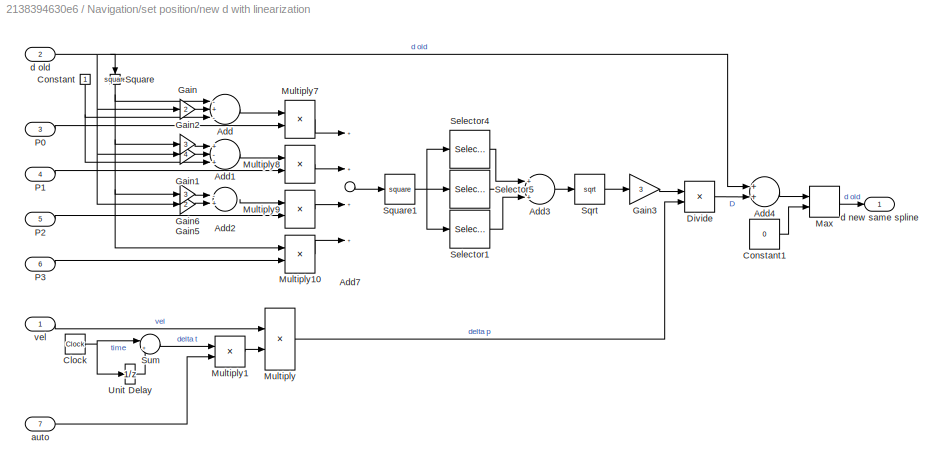
BLOCK [SubSystem] Navigation/set position/new d with linearization
  Ports = [7, 1]
  RequestExecContextInheritance = off
BLOCK [Sum] Navigation/set position/new d with linearization/Add
  InputSameDT = off
  Inputs = -+-
  OutDataTypeStr = Inherit: Inherit via internal rule
  Ports = [3, 1]
  SaturateOnIntegerOverflow = off
BLOCK [Sum] Navigation/set position/new d with linearization/Add1
  InputSameDT = off
  Inputs = +-+
  OutDataTypeStr = Inherit: Inherit via internal rule
  Ports = [3, 1]
  SaturateOnIntegerOverflow = off
BLOCK [Sum] Navigation/set position/new d with linearization/Add2
  InputSameDT = off
  Inputs = -+
  OutDataTypeStr = Inherit: Inherit via internal rule
  Ports = [2, 1]
  SaturateOnIntegerOverflow = off
BLOCK [Sum] Navigation/set position/new d with linearization/Add3
  InputSameDT = off
  Inputs = +++
  OutDataTypeStr = Inherit: Inherit via internal rule
  Ports = [3, 1]
  SaturateOnIntegerOverflow = off
BLOCK [Sum] Navigation/set position/new d with linearization/Add4
  InputSameDT = off
  OutDataTypeStr = Inherit: Inherit via internal rule
  Ports = [2, 1]
  SaturateOnIntegerOverflow = off
BLOCK [Sum] Navigation/set position/new d with linearization/Add7
  InputSameDT = off
  Inputs = ++++
  OutDataTypeStr = Inherit: Inherit via internal rule
  Ports = [4, 1]
  SaturateOnIntegerOverflow = off
BLOCK [Clock] Navigation/set position/new d with linearization/Clock
BLOCK [Constant] Navigation/set position/new d with linearization/Constant
BLOCK [Constant] Navigation/set position/new d with linearization/Constant1
  Value = 0
BLOCK [Product] Navigation/set position/new d with linearization/Divide
  InputSameDT = off
  Inputs = /*
  OutDataTypeStr = Inherit: Inherit via internal rule
  Ports = [2, 1]
  RndMeth = Floor
  SaturateOnIntegerOverflow = off
BLOCK [Gain] Navigation/set position/new d with linearization/Gain
  Gain = 2
  OutDataTypeStr = Inherit: Inherit via internal rule
  ParamDataTypeStr = Inherit: Inherit via internal rule
  SaturateOnIntegerOverflow = off
BLOCK [Gain] Navigation/set position/new d with linearization/Gain1
  Gain = 4
  OutDataTypeStr = Inherit: Inherit via internal rule
  ParamDataTypeStr = Inherit: Inherit via internal rule
  SaturateOnIntegerOverflow = off
BLOCK [Gain] Navigation/set position/new d with linearization/Gain2
  Gain = 3
  OutDataTypeStr = Inherit: Inherit via internal rule
  ParamDataTypeStr = Inherit: Inherit via internal rule
  SaturateOnIntegerOverflow = off
BLOCK [Gain] Navigation/set position/new d with linearization/Gain3
  Gain = 3
  OutDataTypeStr = Inherit: Inherit via internal rule
  ParamDataTypeStr = Inherit: Inherit via internal rule
  SaturateOnIntegerOverflow = off
BLOCK [Gain] Navigation/set position/new d with linearization/Gain5
  Gain = 2
  OutDataTypeStr = Inherit: Inherit via internal rule
  ParamDataTypeStr = Inherit: Inherit via internal rule
  SaturateOnIntegerOverflow = off
BLOCK [Gain] Navigation/set position/new d with linearization/Gain6
  Gain = 3
  OutDataTypeStr = Inherit: Inherit via internal rule
  ParamDataTypeStr = Inherit: Inherit via internal rule
  SaturateOnIntegerOverflow = off
BLOCK [MinMax] Navigation/set position/new d with linearization/Max
  Function = max
  InputSameDT = off
  Inputs = 2
  Ports = [2, 1]
  SaturateOnIntegerOverflow = off
BLOCK [Product] Navigation/set position/new d with linearization/Multiply
  InputSameDT = off
  OutDataTypeStr = Inherit: Inherit via internal rule
  Ports = [2, 1]
  RndMeth = Floor
  SaturateOnIntegerOverflow = off
BLOCK [Product] Navigation/set position/new d with linearization/Multiply1
  InputSameDT = off
  OutDataTypeStr = Inherit: Inherit via internal rule
  Ports = [2, 1]
  RndMeth = Floor
  SaturateOnIntegerOverflow = off
BLOCK [Product] Navigation/set position/new d with linearization/Multiply10
  InputSameDT = off
  OutDataTypeStr = Inherit: Inherit via internal rule
  Ports = [2, 1]
  RndMeth = Floor
  SaturateOnIntegerOverflow = off
BLOCK [Product] Navigation/set position/new d with linearization/Multiply7
  InputSameDT = off
  OutDataTypeStr = Inherit: Inherit via internal rule
  Ports = [2, 1]
  RndMeth = Floor
  SaturateOnIntegerOverflow = off
BLOCK [Product] Navigation/set position/new d with linearization/Multiply8
  InputSameDT = off
  OutDataTypeStr = Inherit: Inherit via internal rule
  Ports = [2, 1]
  RndMeth = Floor
  SaturateOnIntegerOverflow = off
BLOCK [Product] Navigation/set position/new d with linearization/Multiply9
  InputSameDT = off
  OutDataTypeStr = Inherit: Inherit via internal rule
  Ports = [2, 1]
  RndMeth = Floor
  SaturateOnIntegerOverflow = off
BLOCK [Inport] Navigation/set position/new d with linearization/P0
  IconDisplay = Port number
  Port = 3
BLOCK [Inport] Navigation/set position/new d with linearization/P1
  IconDisplay = Port number
  Port = 4
BLOCK [Inport] Navigation/set position/new d with linearization/P2
  IconDisplay = Port number
  Port = 5
BLOCK [Inport] Navigation/set position/new d with linearization/P3
  IconDisplay = Port number
  Port = 6
BLOCK [Selector] Navigation/set position/new d with linearization/Selector1
  IndexMode = Zero-based
  IndexOptions = Index vector (dialog)
  Indices = 2
  InputPortWidth = 3
  OutputSizes = 1
  Ports = [1, 1]
BLOCK [Selector] Navigation/set position/new d with linearization/Selector4
  IndexMode = Zero-based
  IndexOptions = Index vector (dialog)
  Indices = 0
  InputPortWidth = 3
  OutputSizes = 1
  Ports = [1, 1]
BLOCK [Selector] Navigation/set position/new d with linearization/Selector5
  IndexMode = Zero-based
  IndexOptions = Index vector (dialog)
  Indices = 1
  InputPortWidth = 3
  OutputSizes = 1
  Ports = [1, 1]
BLOCK [Sqrt] Navigation/set position/new d with linearization/Sqrt
BLOCK [Math] Navigation/set position/new d with linearization/Square
  Operator = square
  Ports = [1, 1]
BLOCK [Math] Navigation/set position/new d with linearization/Square1
  Operator = square
  Ports = [1, 1]
BLOCK [Sum] Navigation/set position/new d with linearization/Sum
  IconShape = round
  InputSameDT = off
  Inputs = |+-
  OutDataTypeStr = Inherit: Inherit via internal rule
  Ports = [2, 1]
  SaturateOnIntegerOverflow = off
BLOCK [UnitDelay] Navigation/set position/new d with linearization/Unit Delay
  InputProcessing = Elements as channels (sample based)
  SampleTime = -1
BLOCK [Inport] Navigation/set position/new d with linearization/auto
  IconDisplay = Port number
  Port = 7
BLOCK [Outport] Navigation/set position/new d with linearization/d new same spline
  IconDisplay = Port number
BLOCK [Inport] Navigation/set position/new d with linearization/d old
  IconDisplay = Port number
  Port = 2
BLOCK [Inport] Navigation/set position/new d with linearization/vel
  IconDisplay = Port number
BLOCK [Inport] Navigation/set position/velocity
  IconDisplay = Port number
  Port = 2
BLOCK [Inport] Navigation/std dev
  IconDisplay = Port number
  Port = 2
BLOCK [SubSystem] Plot
  ErrorFcn = Stateflow.Translate.translate
  PermitHierarchicalResolution = ExplicitOnly
  Ports = [1]
  RequestExecContextInheritance = off
  SFBlockType = MATLAB Function
  TreatAsAtomicUnit = on
BLOCK [Demux] Plot/ Demux 
  Outputs = 1
  Ports = [1, 1]
BLOCK [S-Function] Plot/ SFunction 
  EnableBusSupport = on
  FunctionName = sf_sfun
  PortCounts = [1 1]
  Ports = [1, 1]
  SFcnIsStateOwnerBlock = off
  SFunctionDeploymentMode = off
  Tag = Stateflow S-Function GNC_exp 8
BLOCK [Terminator] Plot/ Terminator 
BLOCK [Inport] Plot/inbus
  IconDisplay = Port number
BLOCK [Scope] Scope
  Floating = off
  IOType = viewer
  NumInputPorts = 1
  Ports = []
  ScopeSpecificationString = Simulink.scopes.TimeScopeBlockCfg('CurrentConfiguration', extmgr.ConfigurationSet(extmgr.Configuration('Core','General UI',true),extmgr.Configuration('Core','Source UI',true),extmgr.Configuration('Sources','WiredSimulink',true,'DataLoggingVariableName','ScopeData1'),extmgr.Configuration('Visuals','Time Domain',true,'SerializedDisplays',{struct('MinYLimReal','-0.08888','MaxYLimReal','1.41421','YLab...<+1436ch>
BLOCK [Scope] Scope1
  Floating = off
  IOType = viewer
  NumInputPorts = 1
  Ports = []
  ScopeSpecificationString = Simulink.scopes.TimeScopeBlockCfg('CurrentConfiguration', extmgr.ConfigurationSet(extmgr.Configuration('Core','General UI',true),extmgr.Configuration('Core','Source UI',true),extmgr.Configuration('Sources','WiredSimulink',true,'DataLoggingVariableName','ScopeData3'),extmgr.Configuration('Visuals','Time Domain',true,'SerializedDisplays',{struct('MinYLimReal','-3.76197','MaxYLimReal','3.85774','YLab...<+1388ch>
BLOCK [Scope] Scope2
  Floating = off
  IOType = viewer
  NumInputPorts = 1
  Ports = []
  ScopeSpecificationString = Simulink.scopes.TimeScopeBlockCfg('CurrentConfiguration', extmgr.ConfigurationSet(extmgr.Configuration('Core','General UI',true),extmgr.Configuration('Core','Source UI',true),extmgr.Configuration('Sources','WiredSimulink',true,'DataLoggingVariableName','ScopeData1'),extmgr.Configuration('Visuals','Time Domain',true,'SerializedDisplays',{struct('MinYLimReal','-1.19182','MaxYLimReal','2.72679','YLab...<+1406ch>
BLOCK [Scope] Scope3
  Floating = off
  IOType = viewer
  NumInputPorts = 1
  Ports = []
  ScopeSpecificationString = Simulink.scopes.TimeScopeBlockCfg('CurrentConfiguration', extmgr.ConfigurationSet(extmgr.Configuration('Core','General UI',true),extmgr.Configuration('Core','Source UI',true),extmgr.Configuration('Sources','WiredSimulink',true,'DataLoggingVariableName','ScopeData1'),extmgr.Configuration('Visuals','Time Domain',true,'SerializedDisplays',{struct('MinYLimReal','-2.13417','MaxYLimReal','3.16337','YLab...<+1378ch>
BLOCK [Scope] Scope4
  Floating = off
  IOType = viewer
  NumInputPorts = 1
  Ports = []
  ScopeSpecificationString = Simulink.scopes.TimeScopeBlockCfg('CurrentConfiguration', extmgr.ConfigurationSet(extmgr.Configuration('Core','General UI',true),extmgr.Configuration('Core','Source UI',true),extmgr.Configuration('Sources','WiredSimulink',true,'DataLoggingVariableName','ScopeData2'),extmgr.Configuration('Visuals','Time Domain',true,'SerializedDisplays',{struct('MinYLimReal','-3.75','MaxYLimReal','3.75','YLabelReal...<+1370ch>
BLOCK [Scope] Scope5
  Floating = off
  IOType = viewer
  NumInputPorts = 1
  Ports = []
  ScopeSpecificationString = Simulink.scopes.TimeScopeBlockCfg('CurrentConfiguration', extmgr.ConfigurationSet(extmgr.Configuration('Core','General UI',true),extmgr.Configuration('Core','Source UI',true),extmgr.Configuration('Sources','WiredSimulink',true,'DataLoggingVariableName','ScopeData3'),extmgr.Configuration('Visuals','Time Domain',true,'SerializedDisplays',{struct('MinYLimReal','-3.76197','MaxYLimReal','3.85774','YLab...<+1359ch>
BLOCK [Scope] Scope6
  Floating = off
  IOType = viewer
  NumInputPorts = 1
  Ports = []
  ScopeSpecificationString = Simulink.scopes.TimeScopeBlockCfg('CurrentConfiguration', extmgr.ConfigurationSet(extmgr.Configuration('Core','General UI',true),extmgr.Configuration('Core','Source UI',true),extmgr.Configuration('Sources','WiredSimulink',true,'DataLoggingVariableName','ScopeData4'),extmgr.Configuration('Visuals','Time Domain',true,'SerializedDisplays',{struct('MinYLimReal','-13.17826','MaxYLimReal','12.08795','YL...<+1365ch>
BLOCK [Scope] Scope7
  Floating = off
  IOType = viewer
  NumInputPorts = 1
  Ports = []
  ScopeSpecificationString = Simulink.scopes.TimeScopeBlockCfg('CurrentConfiguration', extmgr.ConfigurationSet(extmgr.Configuration('Core','General UI',true),extmgr.Configuration('Core','Source UI',true),extmgr.Configuration('Sources','WiredSimulink',true,'DataLoggingVariableName','ScopeData5'),extmgr.Configuration('Visuals','Time Domain',true,'SerializedDisplays',{struct('MinYLimReal','-3.24772','MaxYLimReal','3.62448','YLab...<+1388ch>
BLOCK [UnitDelay] Unit Delay1
  SampleTime = -1
BLOCK [UnitDelay] Unit Delay10
  InputProcessing = Elements as channels (sample based)
  SampleTime = -1
BLOCK [UnitDelay] Unit Delay12
  InputProcessing = Elements as channels (sample based)
  SampleTime = -1
BLOCK [UnitDelay] Unit Delay4
  InputProcessing = Elements as channels (sample based)
  SampleTime = -1
BLOCK [UnitDelay] Unit Delay6
  InputProcessing = Elements as channels (sample based)
  SampleTime = -1
BLOCK [UnitDelay] Unit Delay9
  SampleTime = -1
BLOCK [SubSystem] Vision System
  Ports = [4, 1]
  RequestExecContextInheritance = off
BLOCK [Outport] Vision System/Bus Element Out
  IconDisplay = Port number
BLOCK [Outport] Vision System/Bus Element Out1
  IconDisplay = Port number
BLOCK [Inport] Vision System/detect eul
  IconDisplay = Port number
  Port = 4
BLOCK [Inport] Vision System/detect pos
  IconDisplay = Port number
  Port = 3
BLOCK [SubSystem] Vision System/gate_global
  ErrorFcn = Stateflow.Translate.translate
  PermitHierarchicalResolution = ExplicitOnly
  Ports = [4, 2]
  RequestExecContextInheritance = off
  SFBlockType = MATLAB Function
  TreatAsAtomicUnit = on
BLOCK [Demux] Vision System/gate_global/ Demux 
  Outputs = 1
  Ports = [1, 1]
BLOCK [S-Function] Vision System/gate_global/ SFunction 
  EnableBusSupport = on
  FunctionName = sf_sfun
  PortCounts = [4 3]
  Ports = [4, 3]
  SFcnIsStateOwnerBlock = off
  SFunctionDeploymentMode = off
  Tag = Stateflow S-Function GNC_exp 18
BLOCK [Terminator] Vision System/gate_global/ Terminator 
BLOCK [Inport] Vision System/gate_global/drone_ori
  IconDisplay = Port number
  Port = 4
BLOCK [Inport] Vision System/gate_global/drone_pos
  IconDisplay = Port number
  Port = 3
BLOCK [Outport] Vision System/gate_global/gate_eul_global
  IconDisplay = Port number
  Port = 2
BLOCK [Outport] Vision System/gate_global/gate_pos_global
  IconDisplay = Port number
BLOCK [Inport] Vision System/gate_global/rMat
  IconDisplay = Port number
  Port = 2
BLOCK [Inport] Vision System/gate_global/tVec
  IconDisplay = Port number
BLOCK [Inport] Vision System/rmat
  IconDisplay = Port number
  Port = 2
BLOCK [Inport] Vision System/tvec
  IconDisplay = Port number
BLOCK [Inport] auto
  IconDisplay = Port number
  Port = 8
BLOCK [Outport] ctrl
  IconDisplay = Port number
BLOCK [Inport] detect eul
  IconDisplay = Port number
  Port = 7
  PortDimensions = [3,1]
BLOCK [Inport] detect pos
  IconDisplay = Port number
  Port = 6
  PortDimensions = [3,1]
BLOCK [Inport] eul
  IconDisplay = Port number
  Port = 3
BLOCK [Inport] pos
  IconDisplay = Port number
  Port = 2
BLOCK [Inport] rmat
  IconDisplay = Port number
  Port = 5
  PortDimensions = [3,3]
BLOCK [Inport] tvec
  IconDisplay = Port number
  Port = 4
  PortDimensions = [3,1]
BLOCK [Inport] vel
  IconDisplay = Port number
ANNOTATION Control/Orientation to 3D yaw rotation: eul2rotm
ANNOTATION Navigation/calc v/Exp offset: y=s-(s-b) e^{-k(x-d)}
ANNOTATION Navigation/calc v/calculate direction B'(d): B'(d) = 3(1-d)^2(P1-P0) + 6*(1-d)*d*(P2-P1) + 3d^2(P3-P2)
ANNOTATION Navigation/calc v/calculate direction B'(d)/old, quadratic: B'(d) = 2(1-d)(P1-P0) + 2d(P2-P1) = 2*(dP0-2dP1+dP2+P1-P0)
ANNOTATION Navigation/calculate desired/calc pos B(d): B(d) = (1-d).^3*P0 + 3*(1-d).^2.*d*P1 + 3*(1-d).*d.^2*P2 + d.^3*P3;
ANNOTATION Navigation/calculate desired/calc pos B(d)/old, quadratic: B(d) = (1-d)*u.*((1-d)*P0+d*P1)+d*u.*((1-d)*P1 + d*P2);
ANNOTATION Navigation/calculate desired/calculate direction B'(d): B'(d) = 3(1-d)^2(P1-P0) + 6*(1-d)*d*(P2-P1) + 3d^2(P3-P2)
ANNOTATION Navigation/calculate desired/calculate direction B'(d)/old, quadratic: B'(d) = 2(1-d)(P1-P0) + 2d(P2-P1) = 2*(dP0-2dP1+dP2+P1-P0)
NET Bus Creator1:1 -> Control:2, Navigation:4, Unit Delay9:1
LINE Bus Creator:1 -> Plot:1
LINE Control/Create Path Frame/Invert 3x3 Matrix:1 -> Control/Create Path Frame/Rotation Matrix:1
LINE Control/Create Path Frame/Make X Vector/Make Unit/Multiply:1 -> Control/Create Path Frame/Make X Vector/Make Unit/Unit Vector:1
LINE Control/Create Path Frame/Make X Vector/Make Unit/Reciprocal Sqrt:1 -> Control/Create Path Frame/Make X Vector/Make Unit/Multiply:1
LINE Control/Create Path Frame/Make X Vector/Make Unit/Square:1 -> Control/Create Path Frame/Make X Vector/Make Unit/Sum of Elements:1
LINE Control/Create Path Frame/Make X Vector/Make Unit/Sum of Elements:1 -> Control/Create Path Frame/Make X Vector/Make Unit/Reciprocal Sqrt:1
NET Control/Create Path Frame/Make X Vector/Make Unit/Vector:1 -> Control/Create Path Frame/Make X Vector/Make Unit/Multiply:2, Control/Create Path Frame/Make X Vector/Make Unit/Square:1
LINE Control/Create Path Frame/Make X Vector/Make Unit:1 -> Control/Create Path Frame/Make X Vector/X Vector:1
LINE Control/Create Path Frame/Make X Vector/Velocity Vector:1 -> Control/Create Path Frame/Make X Vector/Make Unit:1
LINE Control/Create Path Frame/Make X Vector:1 -> Control/Create Path Frame/Matrix Concatenate:1
LINE Control/Create Path Frame/Make Y Vector/Constant:1 -> Control/Create Path Frame/Make Y Vector/Matrix Concatenate:3
LINE Control/Create Path Frame/Make Y Vector/Demux:1 -> Control/Create Path Frame/Make Y Vector/Matrix Concatenate:2
LINE Control/Create Path Frame/Make Y Vector/Demux:2 -> Control/Create Path Frame/Make Y Vector/Gain:1
LINE Control/Create Path Frame/Make Y Vector/Demux:3 -> Control/Create Path Frame/Make Y Vector/Terminator:1
LINE Control/Create Path Frame/Make Y Vector/Gain:1 -> Control/Create Path Frame/Make Y Vector/Matrix Concatenate:1
LINE Control/Create Path Frame/Make Y Vector/Make Unit/Multiply:1 -> Control/Create Path Frame/Make Y Vector/Make Unit/Unit Vector:1
LINE Control/Create Path Frame/Make Y Vector/Make Unit/Reciprocal Sqrt:1 -> Control/Create Path Frame/Make Y Vector/Make Unit/Multiply:1
LINE Control/Create Path Frame/Make Y Vector/Make Unit/Square:1 -> Control/Create Path Frame/Make Y Vector/Make Unit/Sum of Elements:1
LINE Control/Create Path Frame/Make Y Vector/Make Unit/Sum of Elements:1 -> Control/Create Path Frame/Make Y Vector/Make Unit/Reciprocal Sqrt:1
NET Control/Create Path Frame/Make Y Vector/Make Unit/Vector:1 -> Control/Create Path Frame/Make Y Vector/Make Unit/Multiply:2, Control/Create Path Frame/Make Y Vector/Make Unit/Square:1
LINE Control/Create Path Frame/Make Y Vector/Make Unit:1 -> Control/Create Path Frame/Make Y Vector/Y Vector:1
LINE Control/Create Path Frame/Make Y Vector/Matrix Concatenate:1 -> Control/Create Path Frame/Make Y Vector/Make Unit:1
LINE Control/Create Path Frame/Make Y Vector/Velocity Vector:1 -> Control/Create Path Frame/Make Y Vector/Demux:1
LINE Control/Create Path Frame/Make Y Vector:1 -> Control/Create Path Frame/Matrix Concatenate:2
LINE Control/Create Path Frame/Make Z Vector/Add:1 -> Control/Create Path Frame/Make Z Vector/Matrix Concatenate:3
NET Control/Create Path Frame/Make Z Vector/Demux:1 -> Control/Create Path Frame/Make Z Vector/Multiply:1, Control/Create Path Frame/Make Z Vector/Square:1
NET Control/Create Path Frame/Make Z Vector/Demux:2 -> Control/Create Path Frame/Make Z Vector/Multiply1:1, Control/Create Path Frame/Make Z Vector/Square1:1
NET Control/Create Path Frame/Make Z Vector/Demux:3 -> Control/Create Path Frame/Make Z Vector/Multiply1:2, Control/Create Path Frame/Make Z Vector/Multiply:2
LINE Control/Create Path Frame/Make Z Vector/Gain1:1 -> Control/Create Path Frame/Make Z Vector/Matrix Concatenate:2
LINE Control/Create Path Frame/Make Z Vector/Gain:1 -> Control/Create Path Frame/Make Z Vector/Matrix Concatenate:1
LINE Control/Create Path Frame/Make Z Vector/Make Unit/Multiply:1 -> Control/Create Path Frame/Make Z Vector/Make Unit/Unit Vector:1
LINE Control/Create Path Frame/Make Z Vector/Make Unit/Reciprocal Sqrt:1 -> Control/Create Path Frame/Make Z Vector/Make Unit/Multiply:1
LINE Control/Create Path Frame/Make Z Vector/Make Unit/Square:1 -> Control/Create Path Frame/Make Z Vector/Make Unit/Sum of Elements:1
LINE Control/Create Path Frame/Make Z Vector/Make Unit/Sum of Elements:1 -> Control/Create Path Frame/Make Z Vector/Make Unit/Reciprocal Sqrt:1
NET Control/Create Path Frame/Make Z Vector/Make Unit/Vector:1 -> Control/Create Path Frame/Make Z Vector/Make Unit/Multiply:2, Control/Create Path Frame/Make Z Vector/Make Unit/Square:1
LINE Control/Create Path Frame/Make Z Vector/Make Unit:1 -> Control/Create Path Frame/Make Z Vector/Z Vector:1
LINE Control/Create Path Frame/Make Z Vector/Matrix Concatenate:1 -> Control/Create Path Frame/Make Z Vector/Make Unit:1
LINE Control/Create Path Frame/Make Z Vector/Multiply1:1 -> Control/Create Path Frame/Make Z Vector/Gain1:1
LINE Control/Create Path Frame/Make Z Vector/Multiply:1 -> Control/Create Path Frame/Make Z Vector/Gain:1
LINE Control/Create Path Frame/Make Z Vector/Square1:1 -> Control/Create Path Frame/Make Z Vector/Add:2
LINE Control/Create Path Frame/Make Z Vector/Square:1 -> Control/Create Path Frame/Make Z Vector/Add:1
LINE Control/Create Path Frame/Make Z Vector/Velocity Vector:1 -> Control/Create Path Frame/Make Z Vector/Demux:1
LINE Control/Create Path Frame/Make Z Vector:1 -> Control/Create Path Frame/Matrix Concatenate:3
LINE Control/Create Path Frame/Matrix Concatenate:1 -> Control/Create Path Frame/Invert 3x3 Matrix:1
NET Control/Create Path Frame/Velocity Vector:1 -> Control/Create Path Frame/Make X Vector:1, Control/Create Path Frame/Make Y Vector:1, Control/Create Path Frame/Make Z Vector:1
NET Control/Create Path Frame:1 -> Control/Matrix Multiply1:1, Control/Matrix Multiply2:1, Control/Matrix Multiply3:1, Control/Matrix Multiply:1
LINE Control/Demux1:1 -> Control/Gain5:1
LINE Control/Demux1:2 -> Control/Gain6:1
LINE Control/Demux1:3 -> Control/Gain1:1
LINE Control/Gain1:1 -> Control/Saturation:1
LINE Control/Gain2:1 -> Control/Saturation1:1
LINE Control/Gain5:1 -> Control/Gain7:1
LINE Control/Gain6:1 -> Control/Gain8:1
LINE Control/Gain7:1 -> Control/Saturation3:1
LINE Control/Gain8:1 -> Control/Saturation2:1
LINE Control/Gain:1 -> Control/Sum2:1
LINE Control/Hdg Controller R/Atan2:1 -> Control/Hdg Controller R/Gain:1
LINE Control/Hdg Controller R/Cos:1 -> Control/Hdg Controller R/Atan2:1
LINE Control/Hdg Controller R/Cos:2 -> Control/Hdg Controller R/Atan2:2
LINE Control/Hdg Controller R/Gain:1 -> Control/Hdg Controller R/yaw rate:1
LINE Control/Hdg Controller R/delta yaw:1 -> Control/Hdg Controller R/Cos:1
NET Control/Hdg Controller R:1 -> Control/Gain2:1, Control/Scope1:4
LINE Control/In Bus Element1:1 -> Control/Sum4:2
LINE Control/In Bus Element2:1 -> Control/Selector2:1
LINE Control/In Bus Element3:1 -> Control/Sum4:1
NET Control/In Bus Element4:1 -> Control/Scope1:1, Control/Sum1:1
NET Control/In Bus Element5:1 -> Control/Create Path Frame:1, Control/Matrix Multiply2:2
LINE Control/In Bus Element:1 -> Control/Matrix Multiply3:2
LINE Control/Matrix Multiply1:1 -> Control/Matrix Multiply5:2
NET Control/Matrix Multiply2:1 -> Control/Scope:2, Control/Sum2:2
NET Control/Matrix Multiply3:1 -> Control/Scope:4, Control/Sum3:2
LINE Control/Matrix Multiply5:1 -> Control/Demux1:1
NET Control/Matrix Multiply:1 -> Control/Gain:1, Control/Scope:1
LINE Control/Mux:1 -> Control/Scope:7
NET Control/Orientation to 3D yaw rotation/Constant1:1 -> Control/Orientation to 3D yaw rotation/Vector Concatenate:2, Control/Orientation to 3D yaw rotation/Vector Concatenate:3
LINE Control/Orientation to 3D yaw rotation/Drone yaw:1 -> Control/Orientation to 3D yaw rotation/Vector Concatenate:1
LINE Control/Orientation to 3D yaw rotation/Rotation Angles to Direction Cosine Matrix:1 -> Control/Orientation to 3D yaw rotation/rot matrix:1
LINE Control/Orientation to 3D yaw rotation/Vector Concatenate:1 -> Control/Orientation to 3D yaw rotation/Rotation Angles to Direction Cosine Matrix:1
LINE Control/Orientation to 3D yaw rotation:1 -> Control/Matrix Multiply5:1
NET Control/Saturation1:1 -> Control/Mux:4, Control/Vector Concatenate:4
NET Control/Saturation2:1 -> Control/Mux:2, Control/Vector Concatenate:2
NET Control/Saturation3:1 -> Control/Mux:1, Control/Vector Concatenate:1
NET Control/Saturation:1 -> Control/Mux:3, Control/Vector Concatenate:3
NET Control/Selector2:1 -> Control/Orientation to 3D yaw rotation:1, Control/Scope1:2, Control/Sum1:2
NET Control/Sum1:1 -> Control/Hdg Controller R:1, Control/Scope1:3
NET Control/Sum2:1 -> Control/Scope:3, Control/Sum3:1
NET Control/Sum3:1 -> Control/Scope:5, Control/Vel Controller X,Y1:1
LINE Control/Sum4:1 -> Control/Matrix Multiply:2
LINE Control/Vector Concatenate:1 -> Control/ctrl:1
NET Control/Vel Controller X,Y1/Clock:1 -> Control/Vel Controller X,Y1/Sum:1, Control/Vel Controller X,Y1/Unit Delay:1
LINE Control/Vel Controller X,Y1/Demux1:1 -> Control/Vel Controller X,Y1/ctrl x:3
LINE Control/Vel Controller X,Y1/Demux1:2 -> Control/Vel Controller X,Y1/ctrl y:3
LINE Control/Vel Controller X,Y1/Demux1:3 -> Control/Vel Controller X,Y1/ctrl z:3
LINE Control/Vel Controller X,Y1/Dx1:1 -> Control/Vel Controller X,Y1/ctrl z:2
LINE Control/Vel Controller X,Y1/Dx:1 -> Control/Vel Controller X,Y1/ctrl x:2
LINE Control/Vel Controller X,Y1/Dy:1 -> Control/Vel Controller X,Y1/ctrl y:2
LINE Control/Vel Controller X,Y1/Gain3:1 -> Control/Vel Controller X,Y1/Saturation:1
LINE Control/Vel Controller X,Y1/Multiply3:1 -> Control/Vel Controller X,Y1/accel traj:1
LINE Control/Vel Controller X,Y1/Mux:1 -> Control/Vel Controller X,Y1/Multiply3:1
LINE Control/Vel Controller X,Y1/Px1:1 -> Control/Vel Controller X,Y1/ctrl z:1
LINE Control/Vel Controller X,Y1/Px:1 -> Control/Vel Controller X,Y1/ctrl x:1
LINE Control/Vel Controller X,Y1/Py:1 -> Control/Vel Controller X,Y1/ctrl y:1
LINE Control/Vel Controller X,Y1/Saturation:1 -> Control/Vel Controller X,Y1/Multiply3:2
LINE Control/Vel Controller X,Y1/Sum:1 -> Control/Vel Controller X,Y1/Gain3:1
LINE Control/Vel Controller X,Y1/Unit Delay:1 -> Control/Vel Controller X,Y1/Sum:2
LINE Control/Vel Controller X,Y1/ctrl x/Add1:1 -> Control/Vel Controller X,Y1/ctrl x/Acc:1
LINE Control/Vel Controller X,Y1/ctrl x/Add:1 -> Control/Vel Controller X,Y1/ctrl x/Gain3:1
LINE Control/Vel Controller X,Y1/ctrl x/D:1 -> Control/Vel Controller X,Y1/ctrl x/Multiply:1
LINE Control/Vel Controller X,Y1/ctrl x/Gain1:1 -> Control/Vel Controller X,Y1/ctrl x/Add:1
LINE Control/Vel Controller X,Y1/ctrl x/Gain2:1 -> Control/Vel Controller X,Y1/ctrl x/Add:2
LINE Control/Vel Controller X,Y1/ctrl x/Gain3:1 -> Control/Vel Controller X,Y1/ctrl x/Add1:1
LINE Control/Vel Controller X,Y1/ctrl x/Gain:1 -> Control/Vel Controller X,Y1/ctrl x/Add:3
LINE Control/Vel Controller X,Y1/ctrl x/Multiply1:1 -> Control/Vel Controller X,Y1/ctrl x/Add1:2
NET Control/Vel Controller X,Y1/ctrl x/Multiply:1 -> Control/Vel Controller X,Y1/ctrl x/Sum1:2, Control/Vel Controller X,Y1/ctrl x/Sum2:2, Control/Vel Controller X,Y1/ctrl x/Sum:2, Control/Vel Controller X,Y1/ctrl x/Unit Delay1:1
LINE Control/Vel Controller X,Y1/ctrl x/P:1 -> Control/Vel Controller X,Y1/ctrl x/Multiply1:2
LINE Control/Vel Controller X,Y1/ctrl x/Sum1:1 -> Control/Vel Controller X,Y1/ctrl x/Gain2:1
LINE Control/Vel Controller X,Y1/ctrl x/Sum2:1 -> Control/Vel Controller X,Y1/ctrl x/Gain1:1
LINE Control/Vel Controller X,Y1/ctrl x/Sum:1 -> Control/Vel Controller X,Y1/ctrl x/Gain:1
NET Control/Vel Controller X,Y1/ctrl x/Unit Delay1:1 -> Control/Vel Controller X,Y1/ctrl x/Sum:1, Control/Vel Controller X,Y1/ctrl x/Unit Delay2:1
NET Control/Vel Controller X,Y1/ctrl x/Unit Delay2:1 -> Control/Vel Controller X,Y1/ctrl x/Sum1:1, Control/Vel Controller X,Y1/ctrl x/Unit Delay3:1
LINE Control/Vel Controller X,Y1/ctrl x/Unit Delay3:1 -> Control/Vel Controller X,Y1/ctrl x/Sum2:1
NET Control/Vel Controller X,Y1/ctrl x/Value:1 -> Control/Vel Controller X,Y1/ctrl x/Multiply1:1, Control/Vel Controller X,Y1/ctrl x/Multiply:2
LINE Control/Vel Controller X,Y1/ctrl x:1 -> Control/Vel Controller X,Y1/Mux:1
LINE Control/Vel Controller X,Y1/ctrl y/Add1:1 -> Control/Vel Controller X,Y1/ctrl y/Acc:1
LINE Control/Vel Controller X,Y1/ctrl y/Add:1 -> Control/Vel Controller X,Y1/ctrl y/Gain3:1
LINE Control/Vel Controller X,Y1/ctrl y/D:1 -> Control/Vel Controller X,Y1/ctrl y/Multiply:1
LINE Control/Vel Controller X,Y1/ctrl y/Gain1:1 -> Control/Vel Controller X,Y1/ctrl y/Add:1
LINE Control/Vel Controller X,Y1/ctrl y/Gain2:1 -> Control/Vel Controller X,Y1/ctrl y/Add:2
LINE Control/Vel Controller X,Y1/ctrl y/Gain3:1 -> Control/Vel Controller X,Y1/ctrl y/Add1:1
LINE Control/Vel Controller X,Y1/ctrl y/Gain:1 -> Control/Vel Controller X,Y1/ctrl y/Add:3
LINE Control/Vel Controller X,Y1/ctrl y/Multiply1:1 -> Control/Vel Controller X,Y1/ctrl y/Add1:2
NET Control/Vel Controller X,Y1/ctrl y/Multiply:1 -> Control/Vel Controller X,Y1/ctrl y/Sum1:2, Control/Vel Controller X,Y1/ctrl y/Sum2:2, Control/Vel Controller X,Y1/ctrl y/Sum:2, Control/Vel Controller X,Y1/ctrl y/Unit Delay1:1
LINE Control/Vel Controller X,Y1/ctrl y/P:1 -> Control/Vel Controller X,Y1/ctrl y/Multiply1:2
LINE Control/Vel Controller X,Y1/ctrl y/Sum1:1 -> Control/Vel Controller X,Y1/ctrl y/Gain2:1
LINE Control/Vel Controller X,Y1/ctrl y/Sum2:1 -> Control/Vel Controller X,Y1/ctrl y/Gain1:1
LINE Control/Vel Controller X,Y1/ctrl y/Sum:1 -> Control/Vel Controller X,Y1/ctrl y/Gain:1
NET Control/Vel Controller X,Y1/ctrl y/Unit Delay1:1 -> Control/Vel Controller X,Y1/ctrl y/Sum:1, Control/Vel Controller X,Y1/ctrl y/Unit Delay2:1
NET Control/Vel Controller X,Y1/ctrl y/Unit Delay2:1 -> Control/Vel Controller X,Y1/ctrl y/Sum1:1, Control/Vel Controller X,Y1/ctrl y/Unit Delay3:1
LINE Control/Vel Controller X,Y1/ctrl y/Unit Delay3:1 -> Control/Vel Controller X,Y1/ctrl y/Sum2:1
NET Control/Vel Controller X,Y1/ctrl y/Value:1 -> Control/Vel Controller X,Y1/ctrl y/Multiply1:1, Control/Vel Controller X,Y1/ctrl y/Multiply:2
LINE Control/Vel Controller X,Y1/ctrl y:1 -> Control/Vel Controller X,Y1/Mux:2
LINE Control/Vel Controller X,Y1/ctrl z/Add1:1 -> Control/Vel Controller X,Y1/ctrl z/Acc:1
LINE Control/Vel Controller X,Y1/ctrl z/Add:1 -> Control/Vel Controller X,Y1/ctrl z/Gain3:1
LINE Control/Vel Controller X,Y1/ctrl z/D:1 -> Control/Vel Controller X,Y1/ctrl z/Multiply:1
LINE Control/Vel Controller X,Y1/ctrl z/Gain1:1 -> Control/Vel Controller X,Y1/ctrl z/Add:1
LINE Control/Vel Controller X,Y1/ctrl z/Gain2:1 -> Control/Vel Controller X,Y1/ctrl z/Add:2
LINE Control/Vel Controller X,Y1/ctrl z/Gain3:1 -> Control/Vel Controller X,Y1/ctrl z/Add1:1
LINE Control/Vel Controller X,Y1/ctrl z/Gain:1 -> Control/Vel Controller X,Y1/ctrl z/Add:3
LINE Control/Vel Controller X,Y1/ctrl z/Multiply1:1 -> Control/Vel Controller X,Y1/ctrl z/Add1:2
NET Control/Vel Controller X,Y1/ctrl z/Multiply:1 -> Control/Vel Controller X,Y1/ctrl z/Sum1:2, Control/Vel Controller X,Y1/ctrl z/Sum2:2, Control/Vel Controller X,Y1/ctrl z/Sum:2, Control/Vel Controller X,Y1/ctrl z/Unit Delay1:1
LINE Control/Vel Controller X,Y1/ctrl z/P:1 -> Control/Vel Controller X,Y1/ctrl z/Multiply1:2
LINE Control/Vel Controller X,Y1/ctrl z/Sum1:1 -> Control/Vel Controller X,Y1/ctrl z/Gain2:1
LINE Control/Vel Controller X,Y1/ctrl z/Sum2:1 -> Control/Vel Controller X,Y1/ctrl z/Gain1:1
LINE Control/Vel Controller X,Y1/ctrl z/Sum:1 -> Control/Vel Controller X,Y1/ctrl z/Gain:1
NET Control/Vel Controller X,Y1/ctrl z/Unit Delay1:1 -> Control/Vel Controller X,Y1/ctrl z/Sum:1, Control/Vel Controller X,Y1/ctrl z/Unit Delay2:1
NET Control/Vel Controller X,Y1/ctrl z/Unit Delay2:1 -> Control/Vel Controller X,Y1/ctrl z/Sum1:1, Control/Vel Controller X,Y1/ctrl z/Unit Delay3:1
LINE Control/Vel Controller X,Y1/ctrl z/Unit Delay3:1 -> Control/Vel Controller X,Y1/ctrl z/Sum2:1
NET Control/Vel Controller X,Y1/ctrl z/Value:1 -> Control/Vel Controller X,Y1/ctrl z/Multiply1:1, Control/Vel Controller X,Y1/ctrl z/Multiply:2
LINE Control/Vel Controller X,Y1/ctrl z:1 -> Control/Vel Controller X,Y1/Mux:3
LINE Control/Vel Controller X,Y1/delta V traj:1 -> Control/Vel Controller X,Y1/Demux1:1
NET Control/Vel Controller X,Y1:1 -> Control/Matrix Multiply1:2, Control/Scope:6
NET Control:1 -> Unit Delay1:1, ctrl:1
NET Guidance/Bus Element In1:1 -> Guidance/Scope:2, Guidance/filter_WP_moving_av:5
NET Guidance/Bus Element In:1 -> Guidance/Scope:1, Guidance/filter_WP_moving_av:4
LINE Guidance/Constant1:1 -> Guidance/filter_WP_moving_av:7
LINE Guidance/Constant2:1 -> Guidance/create_spline:5
LINE Guidance/Constant3:1 -> Guidance/create_spline:7
LINE Guidance/Constant4:1 -> Guidance/create_spline:6
LINE Guidance/Constant:1 -> Guidance/filter_WP_moving_av:6
LINE Guidance/Unit Delay2:1 -> Guidance/filter_WP_moving_av:2
LINE Guidance/Unit Delay3:1 -> Guidance/filter_WP_moving_av:1
LINE Guidance/Unit Delay4:1 -> Guidance/create_spline:1
LINE Guidance/Unit Delay5:1 -> Guidance/filter_WP_moving_av:9
LINE Guidance/Unit Delay6:1 -> Guidance/filter_WP_moving_av:8
NET Guidance/create_spline:1 -> Guidance/Unit Delay4:1, Guidance/current spline:1
NET Guidance/dist_old_raw:1 -> Guidance/create_spline:4, Guidance/filter_WP_moving_av:3
NET Guidance/filter_WP_moving_av:1 -> Guidance/Out Bus Element:1, Guidance/Unit Delay3:1, Guidance/select_WP:1
NET Guidance/filter_WP_moving_av:2 -> Guidance/Out Bus Element1:1, Guidance/Unit Delay2:1, Guidance/select_WP:2
NET Guidance/filter_WP_moving_av:3 -> Guidance/create_spline:3, Guidance/std dev:1
NET Guidance/filter_WP_moving_av:4 -> Guidance/Scope:3, Guidance/Unit Delay6:1
LINE Guidance/filter_WP_moving_av:5 -> Guidance/Unit Delay5:1
LINE Guidance/select_WP:1 -> Guidance/create_spline:2
NET Guidance:1 -> Bus Creator:4, Navigation:1
NET Guidance:2 -> Bus Creator:3, Navigation:2
NET Guidance:3 -> Bus Creator:2, Navigation:3
LINE Navigation/Constant:1 -> Navigation/select d:3
NET Navigation/In Bus Element1:1 -> Navigation/calc v:3, Navigation/calculate desired:5
LINE Navigation/In Bus Element3:1 -> Navigation/get WPts:2
LINE Navigation/In Bus Element:1 -> Navigation/get WPts:1
LINE Navigation/auto:1 -> Navigation/set position:4
LINE Navigation/calc v/Constant:1 -> Navigation/calc v/If:2
LINE Navigation/calc v/Create Path Frame/Invert 3x3 Matrix:1 -> Navigation/calc v/Create Path Frame/Rotation Matrix:1
LINE Navigation/calc v/Create Path Frame/Make X Vector/Make Unit/Multiply:1 -> Navigation/calc v/Create Path Frame/Make X Vector/Make Unit/Unit Vector:1
LINE Navigation/calc v/Create Path Frame/Make X Vector/Make Unit/Reciprocal Sqrt:1 -> Navigation/calc v/Create Path Frame/Make X Vector/Make Unit/Multiply:1
LINE Navigation/calc v/Create Path Frame/Make X Vector/Make Unit/Square:1 -> Navigation/calc v/Create Path Frame/Make X Vector/Make Unit/Sum of Elements:1
LINE Navigation/calc v/Create Path Frame/Make X Vector/Make Unit/Sum of Elements:1 -> Navigation/calc v/Create Path Frame/Make X Vector/Make Unit/Reciprocal Sqrt:1
NET Navigation/calc v/Create Path Frame/Make X Vector/Make Unit/Vector:1 -> Navigation/calc v/Create Path Frame/Make X Vector/Make Unit/Multiply:2, Navigation/calc v/Create Path Frame/Make X Vector/Make Unit/Square:1
LINE Navigation/calc v/Create Path Frame/Make X Vector/Make Unit:1 -> Navigation/calc v/Create Path Frame/Make X Vector/Transpose:1
LINE Navigation/calc v/Create Path Frame/Make X Vector/Transpose:1 -> Navigation/calc v/Create Path Frame/Make X Vector/X Vector:1
LINE Navigation/calc v/Create Path Frame/Make X Vector/Velocity Vector:1 -> Navigation/calc v/Create Path Frame/Make X Vector/Make Unit:1
LINE Navigation/calc v/Create Path Frame/Make X Vector:1 -> Navigation/calc v/Create Path Frame/Matrix Concatenate:1
LINE Navigation/calc v/Create Path Frame/Make Y Vector/Constant:1 -> Navigation/calc v/Create Path Frame/Make Y Vector/Matrix Concatenate:3
LINE Navigation/calc v/Create Path Frame/Make Y Vector/Demux:1 -> Navigation/calc v/Create Path Frame/Make Y Vector/Matrix Concatenate:2
LINE Navigation/calc v/Create Path Frame/Make Y Vector/Demux:2 -> Navigation/calc v/Create Path Frame/Make Y Vector/Gain:1
LINE Navigation/calc v/Create Path Frame/Make Y Vector/Demux:3 -> Navigation/calc v/Create Path Frame/Make Y Vector/Terminator:1
LINE Navigation/calc v/Create Path Frame/Make Y Vector/Gain:1 -> Navigation/calc v/Create Path Frame/Make Y Vector/Matrix Concatenate:1
LINE Navigation/calc v/Create Path Frame/Make Y Vector/Make Unit/Multiply:1 -> Navigation/calc v/Create Path Frame/Make Y Vector/Make Unit/Unit Vector:1
LINE Navigation/calc v/Create Path Frame/Make Y Vector/Make Unit/Reciprocal Sqrt:1 -> Navigation/calc v/Create Path Frame/Make Y Vector/Make Unit/Multiply:1
LINE Navigation/calc v/Create Path Frame/Make Y Vector/Make Unit/Square:1 -> Navigation/calc v/Create Path Frame/Make Y Vector/Make Unit/Sum of Elements:1
LINE Navigation/calc v/Create Path Frame/Make Y Vector/Make Unit/Sum of Elements:1 -> Navigation/calc v/Create Path Frame/Make Y Vector/Make Unit/Reciprocal Sqrt:1
NET Navigation/calc v/Create Path Frame/Make Y Vector/Make Unit/Vector:1 -> Navigation/calc v/Create Path Frame/Make Y Vector/Make Unit/Multiply:2, Navigation/calc v/Create Path Frame/Make Y Vector/Make Unit/Square:1
LINE Navigation/calc v/Create Path Frame/Make Y Vector/Make Unit:1 -> Navigation/calc v/Create Path Frame/Make Y Vector/Y Vector:1
LINE Navigation/calc v/Create Path Frame/Make Y Vector/Matrix Concatenate:1 -> Navigation/calc v/Create Path Frame/Make Y Vector/Make Unit:1
LINE Navigation/calc v/Create Path Frame/Make Y Vector/Velocity Vector:1 -> Navigation/calc v/Create Path Frame/Make Y Vector/Demux:1
LINE Navigation/calc v/Create Path Frame/Make Y Vector:1 -> Navigation/calc v/Create Path Frame/Matrix Concatenate:2
LINE Navigation/calc v/Create Path Frame/Make Z Vector/Add:1 -> Navigation/calc v/Create Path Frame/Make Z Vector/Matrix Concatenate:3
NET Navigation/calc v/Create Path Frame/Make Z Vector/Demux:1 -> Navigation/calc v/Create Path Frame/Make Z Vector/Multiply:1, Navigation/calc v/Create Path Frame/Make Z Vector/Square:1
NET Navigation/calc v/Create Path Frame/Make Z Vector/Demux:2 -> Navigation/calc v/Create Path Frame/Make Z Vector/Multiply1:1, Navigation/calc v/Create Path Frame/Make Z Vector/Square1:1
NET Navigation/calc v/Create Path Frame/Make Z Vector/Demux:3 -> Navigation/calc v/Create Path Frame/Make Z Vector/Multiply1:2, Navigation/calc v/Create Path Frame/Make Z Vector/Multiply:2
LINE Navigation/calc v/Create Path Frame/Make Z Vector/Gain1:1 -> Navigation/calc v/Create Path Frame/Make Z Vector/Matrix Concatenate:2
LINE Navigation/calc v/Create Path Frame/Make Z Vector/Gain:1 -> Navigation/calc v/Create Path Frame/Make Z Vector/Matrix Concatenate:1
LINE Navigation/calc v/Create Path Frame/Make Z Vector/Make Unit/Multiply:1 -> Navigation/calc v/Create Path Frame/Make Z Vector/Make Unit/Unit Vector:1
LINE Navigation/calc v/Create Path Frame/Make Z Vector/Make Unit/Reciprocal Sqrt:1 -> Navigation/calc v/Create Path Frame/Make Z Vector/Make Unit/Multiply:1
LINE Navigation/calc v/Create Path Frame/Make Z Vector/Make Unit/Square:1 -> Navigation/calc v/Create Path Frame/Make Z Vector/Make Unit/Sum of Elements:1
LINE Navigation/calc v/Create Path Frame/Make Z Vector/Make Unit/Sum of Elements:1 -> Navigation/calc v/Create Path Frame/Make Z Vector/Make Unit/Reciprocal Sqrt:1
NET Navigation/calc v/Create Path Frame/Make Z Vector/Make Unit/Vector:1 -> Navigation/calc v/Create Path Frame/Make Z Vector/Make Unit/Multiply:2, Navigation/calc v/Create Path Frame/Make Z Vector/Make Unit/Square:1
LINE Navigation/calc v/Create Path Frame/Make Z Vector/Make Unit:1 -> Navigation/calc v/Create Path Frame/Make Z Vector/Z Vector:1
LINE Navigation/calc v/Create Path Frame/Make Z Vector/Matrix Concatenate:1 -> Navigation/calc v/Create Path Frame/Make Z Vector/Make Unit:1
LINE Navigation/calc v/Create Path Frame/Make Z Vector/Multiply1:1 -> Navigation/calc v/Create Path Frame/Make Z Vector/Gain1:1
LINE Navigation/calc v/Create Path Frame/Make Z Vector/Multiply:1 -> Navigation/calc v/Create Path Frame/Make Z Vector/Gain:1
LINE Navigation/calc v/Create Path Frame/Make Z Vector/Square1:1 -> Navigation/calc v/Create Path Frame/Make Z Vector/Add:2
LINE Navigation/calc v/Create Path Frame/Make Z Vector/Square:1 -> Navigation/calc v/Create Path Frame/Make Z Vector/Add:1
LINE Navigation/calc v/Create Path Frame/Make Z Vector/Velocity Vector:1 -> Navigation/calc v/Create Path Frame/Make Z Vector/Demux:1
LINE Navigation/calc v/Create Path Frame/Make Z Vector:1 -> Navigation/calc v/Create Path Frame/Matrix Concatenate:3
LINE Navigation/calc v/Create Path Frame/Matrix Concatenate:1 -> Navigation/calc v/Create Path Frame/Invert 3x3 Matrix:1
NET Navigation/calc v/Create Path Frame/Velocity Vector:1 -> Navigation/calc v/Create Path Frame/Make X Vector:1, Navigation/calc v/Create Path Frame/Make Y Vector:1, Navigation/calc v/Create Path Frame/Make Z Vector:1
LINE Navigation/calc v/Create Path Frame:1 -> Navigation/calc v/Matrix Multiply1:1
LINE Navigation/calc v/Divide1:1 -> Navigation/calc v/Fcn:1
LINE Navigation/calc v/Dot Product1:1 -> Navigation/calc v/Sqrt1:1
LINE Navigation/calc v/Dot Product3:1 -> Navigation/calc v/Sqrt3:1
LINE Navigation/calc v/Exp offset/Exp:1 -> Navigation/calc v/Exp offset/Multiply1:1
LINE Navigation/calc v/Exp offset/Gain:1 -> Navigation/calc v/Exp offset/Multiply:2
LINE Navigation/calc v/Exp offset/Minus:1 -> Navigation/calc v/Exp offset/max offset:1
LINE Navigation/calc v/Exp offset/Multiply1:1 -> Navigation/calc v/Exp offset/Minus:1
LINE Navigation/calc v/Exp offset/Multiply:1 -> Navigation/calc v/Exp offset/Exp:1
LINE Navigation/calc v/Exp offset/Sum1:1 -> Navigation/calc v/Exp offset/Multiply1:2
LINE Navigation/calc v/Exp offset/Sum:1 -> Navigation/calc v/Exp offset/Multiply:1
LINE Navigation/calc v/Exp offset/b:1 -> Navigation/calc v/Exp offset/Sum1:1
LINE Navigation/calc v/Exp offset/d:1 -> Navigation/calc v/Exp offset/Sum:1
LINE Navigation/calc v/Exp offset/distance:1 -> Navigation/calc v/Exp offset/Sum:2
LINE Navigation/calc v/Exp offset/k:1 -> Navigation/calc v/Exp offset/Gain:1
NET Navigation/calc v/Exp offset/s:1 -> Navigation/calc v/Exp offset/Minus:2, Navigation/calc v/Exp offset/Sum1:2
LINE Navigation/calc v/Exp offset:1 -> Navigation/calc v/Divide1:2
LINE Navigation/calc v/Fcn:1 -> Navigation/calc v/Saturation1:1
LINE Navigation/calc v/Gain2:1 -> Navigation/calc v/Max of Elements:1
LINE Navigation/calc v/Gain3:1 -> Navigation/calc v/Selector:1
LINE Navigation/calc v/Gain4:1 -> Navigation/calc v/velocity:1
LINE Navigation/calc v/If Action Subsystem/Constant:1 -> Navigation/calc v/If Action Subsystem/1:1
LINE Navigation/calc v/If Action Subsystem1/Add:1 -> Navigation/calc v/If Action Subsystem1/Saturation:1
LINE Navigation/calc v/If Action Subsystem1/Dot Product1:1 -> Navigation/calc v/If Action Subsystem1/Sqrt1:1
LINE Navigation/calc v/If Action Subsystem1/Dot Product2:1 -> Navigation/calc v/If Action Subsystem1/Sqrt2:1
LINE Navigation/calc v/If Action Subsystem1/Dot Product3:1 -> Navigation/calc v/If Action Subsystem1/Sqrt3:1
LINE Navigation/calc v/If Action Subsystem1/Fcn:1 -> Navigation/calc v/If Action Subsystem1/red vel:1
NET Navigation/calc v/If Action Subsystem1/Minus1:1 -> Navigation/calc v/If Action Subsystem1/Dot Product1:1, Navigation/calc v/If Action Subsystem1/Dot Product1:2
NET Navigation/calc v/If Action Subsystem1/Minus2:1 -> Navigation/calc v/If Action Subsystem1/Dot Product2:1, Navigation/calc v/If Action Subsystem1/Dot Product2:2
NET Navigation/calc v/If Action Subsystem1/Minus:1 -> Navigation/calc v/If Action Subsystem1/Dot Product3:1, Navigation/calc v/If Action Subsystem1/Dot Product3:2
LINE Navigation/calc v/If Action Subsystem1/Saturation:1 -> Navigation/calc v/If Action Subsystem1/Fcn:1
LINE Navigation/calc v/If Action Subsystem1/Selector1:1 -> Navigation/calc v/If Action Subsystem1/Minus:1
NET Navigation/calc v/If Action Subsystem1/Selector2:1 -> Navigation/calc v/If Action Subsystem1/Minus1:1, Navigation/calc v/If Action Subsystem1/Minus:2
NET Navigation/calc v/If Action Subsystem1/Selector3:1 -> Navigation/calc v/If Action Subsystem1/Minus1:2, Navigation/calc v/If Action Subsystem1/Minus2:1
LINE Navigation/calc v/If Action Subsystem1/Selector4:1 -> Navigation/calc v/If Action Subsystem1/Minus2:2
LINE Navigation/calc v/If Action Subsystem1/Sqrt1:1 -> Navigation/calc v/If Action Subsystem1/Add:2
LINE Navigation/calc v/If Action Subsystem1/Sqrt2:1 -> Navigation/calc v/If Action Subsystem1/Add:3
LINE Navigation/calc v/If Action Subsystem1/Sqrt3:1 -> Navigation/calc v/If Action Subsystem1/Add:1
NET Navigation/calc v/If Action Subsystem1/spline:1 -> Navigation/calc v/If Action Subsystem1/Selector1:1, Navigation/calc v/If Action Subsystem1/Selector2:1, Navigation/calc v/If Action Subsystem1/Selector3:1, Navigation/calc v/If Action Subsystem1/Selector4:1
LINE Navigation/calc v/If Action Subsystem1:1 -> Navigation/calc v/Merge:2
LINE Navigation/calc v/If Action Subsystem:1 -> Navigation/calc v/Merge:1
LINE Navigation/calc v/If:1 -> Navigation/calc v/If Action Subsystem:ifaction
LINE Navigation/calc v/If:2 -> Navigation/calc v/If Action Subsystem1:ifaction
LINE Navigation/calc v/Matrix Multiply1:1 -> Navigation/calc v/Gain3:1
LINE Navigation/calc v/Max of Elements:1 -> Navigation/calc v/If:1
NET Navigation/calc v/Merge:1 -> Navigation/calc v/Min:2, Navigation/calc v/Scope:2
LINE Navigation/calc v/Min:1 -> Navigation/calc v/min spd:1
NET Navigation/calc v/Saturation1:1 -> Navigation/calc v/Min:1, Navigation/calc v/Scope:1
NET Navigation/calc v/Saturation:1 -> Navigation/calc v/Gain4:1, Navigation/calc v/Scope:3
LINE Navigation/calc v/Selector5:1 -> Navigation/calc v/Sum2:2
NET Navigation/calc v/Selector:1 -> Navigation/calc v/Dot Product3:1, Navigation/calc v/Dot Product3:2
LINE Navigation/calc v/Sqrt1:1 -> Navigation/calc v/Exp offset:1
LINE Navigation/calc v/Sqrt3:1 -> Navigation/calc v/Divide1:1
NET Navigation/calc v/Sum2:1 -> Navigation/calc v/Dot Product1:1, Navigation/calc v/Dot Product1:2
LINE Navigation/calc v/Sum:1 -> Navigation/calc v/Matrix Multiply1:2
LINE Navigation/calc v/Transpose:1 -> Navigation/calc v/Sum2:1
LINE Navigation/calc v/WP this:1 -> Navigation/calc v/Selector5:1
LINE Navigation/calc v/calculate direction B'(d)/Add3:1 -> Navigation/calc v/calculate direction B'(d)/direction:1
LINE Navigation/calc v/calculate direction B'(d)/Constant3:1 -> Navigation/calc v/calculate direction B'(d)/Sum1:1
LINE Navigation/calc v/calculate direction B'(d)/Gain1:1 -> Navigation/calc v/calculate direction B'(d)/Add3:3
LINE Navigation/calc v/calculate direction B'(d)/Gain2:1 -> Navigation/calc v/calculate direction B'(d)/Add3:1
LINE Navigation/calc v/calculate direction B'(d)/Gain:1 -> Navigation/calc v/calculate direction B'(d)/Add3:2
LINE Navigation/calc v/calculate direction B'(d)/Minus1:1 -> Navigation/calc v/calculate direction B'(d)/Multiply1:1
LINE Navigation/calc v/calculate direction B'(d)/Minus2:1 -> Navigation/calc v/calculate direction B'(d)/Multiply8:1
LINE Navigation/calc v/calculate direction B'(d)/Minus:1 -> Navigation/calc v/calculate direction B'(d)/Multiply:1
LINE Navigation/calc v/calculate direction B'(d)/Multiply1:1 -> Navigation/calc v/calculate direction B'(d)/Gain:1
LINE Navigation/calc v/calculate direction B'(d)/Multiply8:1 -> Navigation/calc v/calculate direction B'(d)/Gain1:1
LINE Navigation/calc v/calculate direction B'(d)/Multiply:1 -> Navigation/calc v/calculate direction B'(d)/Gain2:1
LINE Navigation/calc v/calculate direction B'(d)/Power1:1 -> Navigation/calc v/calculate direction B'(d)/Multiply:2
LINE Navigation/calc v/calculate direction B'(d)/Power2:1 -> Navigation/calc v/calculate direction B'(d)/Multiply8:2
LINE Navigation/calc v/calculate direction B'(d)/Selector1:1 -> Navigation/calc v/calculate direction B'(d)/Minus:1
NET Navigation/calc v/calculate direction B'(d)/Selector2:1 -> Navigation/calc v/calculate direction B'(d)/Minus1:1, Navigation/calc v/calculate direction B'(d)/Minus:2
NET Navigation/calc v/calculate direction B'(d)/Selector3:1 -> Navigation/calc v/calculate direction B'(d)/Minus1:2, Navigation/calc v/calculate direction B'(d)/Minus2:1
LINE Navigation/calc v/calculate direction B'(d)/Selector4:1 -> Navigation/calc v/calculate direction B'(d)/Minus2:2
NET Navigation/calc v/calculate direction B'(d)/Sum1:1 -> Navigation/calc v/calculate direction B'(d)/Multiply1:2, Navigation/calc v/calculate direction B'(d)/Power1:1
NET Navigation/calc v/calculate direction B'(d)/d:1 -> Navigation/calc v/calculate direction B'(d)/Multiply1:3, Navigation/calc v/calculate direction B'(d)/Power2:1, Navigation/calc v/calculate direction B'(d)/Sum1:2
NET Navigation/calc v/calculate direction B'(d)/old, quadratic/Add1:1 -> Navigation/calc v/calculate direction B'(d)/old, quadratic/Selector7:1, Navigation/calc v/calculate direction B'(d)/old, quadratic/Selector8:1
LINE Navigation/calc v/calculate direction B'(d)/old, quadratic/Atan1:1 -> Navigation/calc v/calculate direction B'(d)/old, quadratic/Vector Concatenate:1
NET Navigation/calc v/calculate direction B'(d)/old, quadratic/Constant1:1 -> Navigation/calc v/calculate direction B'(d)/old, quadratic/Vector Concatenate:2, Navigation/calc v/calculate direction B'(d)/old, quadratic/Vector Concatenate:3
NET Navigation/calc v/calculate direction B'(d)/old, quadratic/Constant2:1 -> Navigation/calc v/calculate direction B'(d)/old, quadratic/Vector Concatenate1:2, Navigation/calc v/calculate direction B'(d)/old, quadratic/Vector Concatenate1:3
LINE Navigation/calc v/calculate direction B'(d)/old, quadratic/Matrix Multiply:1 -> Navigation/calc v/calculate direction B'(d)/old, quadratic/Out1:1
NET Navigation/calc v/calculate direction B'(d)/old, quadratic/P0:1 -> Navigation/calc v/calculate direction B'(d)/old, quadratic/Add1:6, Navigation/calc v/calculate direction B'(d)/old, quadratic/Product:2
NET Navigation/calc v/calculate direction B'(d)/old, quadratic/P1:1 -> Navigation/calc v/calculate direction B'(d)/old, quadratic/Add1:5, Navigation/calc v/calculate direction B'(d)/old, quadratic/Product1:2
LINE Navigation/calc v/calculate direction B'(d)/old, quadratic/P2:1 -> Navigation/calc v/calculate direction B'(d)/old, quadratic/Product2:2
NET Navigation/calc v/calculate direction B'(d)/old, quadratic/Product1:1 -> Navigation/calc v/calculate direction B'(d)/old, quadratic/Add1:2, Navigation/calc v/calculate direction B'(d)/old, quadratic/Add1:3
LINE Navigation/calc v/calculate direction B'(d)/old, quadratic/Product2:1 -> Navigation/calc v/calculate direction B'(d)/old, quadratic/Add1:4
LINE Navigation/calc v/calculate direction B'(d)/old, quadratic/Product:1 -> Navigation/calc v/calculate direction B'(d)/old, quadratic/Add1:1
LINE Navigation/calc v/calculate direction B'(d)/old, quadratic/Rotation Angles to Direction Cosine Matrix1:1 -> Navigation/calc v/calculate direction B'(d)/old, quadratic/Matrix Multiply:1
LINE Navigation/calc v/calculate direction B'(d)/old, quadratic/Selector7:1 -> Navigation/calc v/calculate direction B'(d)/old, quadratic/Atan1:1
LINE Navigation/calc v/calculate direction B'(d)/old, quadratic/Selector8:1 -> Navigation/calc v/calculate direction B'(d)/old, quadratic/Atan1:2
LINE Navigation/calc v/calculate direction B'(d)/old, quadratic/Vector Concatenate1:1 -> Navigation/calc v/calculate direction B'(d)/old, quadratic/Matrix Multiply:2
LINE Navigation/calc v/calculate direction B'(d)/old, quadratic/Vector Concatenate:1 -> Navigation/calc v/calculate direction B'(d)/old, quadratic/Rotation Angles to Direction Cosine Matrix1:1
NET Navigation/calc v/calculate direction B'(d)/old, quadratic/d:1 -> Navigation/calc v/calculate direction B'(d)/old, quadratic/Product1:1, Navigation/calc v/calculate direction B'(d)/old, quadratic/Product2:1, Navigation/calc v/calculate direction B'(d)/old, quadratic/Product:1
LINE Navigation/calc v/calculate direction B'(d)/old, quadratic/vel:1 -> Navigation/calc v/calculate direction B'(d)/old, quadratic/Vector Concatenate1:1
NET Navigation/calc v/calculate direction B'(d)/spline:1 -> Navigation/calc v/calculate direction B'(d)/Selector1:1, Navigation/calc v/calculate direction B'(d)/Selector2:1, Navigation/calc v/calculate direction B'(d)/Selector3:1, Navigation/calc v/calculate direction B'(d)/Selector4:1
LINE Navigation/calc v/calculate direction B'(d):1 -> Navigation/calc v/Create Path Frame:1
NET Navigation/calc v/current spline:1 -> Navigation/calc v/If Action Subsystem1:1, Navigation/calc v/calculate direction B'(d):1
LINE Navigation/calc v/d:1 -> Navigation/calc v/calculate direction B'(d):2
LINE Navigation/calc v/drone current pos:1 -> Navigation/calc v/Sum:1
NET Navigation/calc v/drone desired pos:1 -> Navigation/calc v/Sum:2, Navigation/calc v/Transpose:1
LINE Navigation/calc v/min spd/Abs:1 -> Navigation/calc v/min spd/Minus:1
NET Navigation/calc v/min spd/Add:1 -> Navigation/calc v/min spd/Out1:1, Navigation/calc v/min spd/Scope:3
LINE Navigation/calc v/min spd/Constant1:1 -> Navigation/calc v/min spd/Sum:2
LINE Navigation/calc v/min spd/Constant:1 -> Navigation/calc v/min spd/Minus:2
NET Navigation/calc v/min spd/In1:1 -> Navigation/calc v/min spd/Abs:1, Navigation/calc v/min spd/Add:1, Navigation/calc v/min spd/Scope:1, Navigation/calc v/min spd/Sign:1
NET Navigation/calc v/min spd/Minus:1 -> Navigation/calc v/min spd/Saturation:1, Navigation/calc v/min spd/Scope:4
NET Navigation/calc v/min spd/Multiply:1 -> Navigation/calc v/min spd/Add:2, Navigation/calc v/min spd/Scope:2
NET Navigation/calc v/min spd/Saturation:1 -> Navigation/calc v/min spd/Multiply:1, Navigation/calc v/min spd/Scope:5
LINE Navigation/calc v/min spd/Sign1:1 -> Navigation/calc v/min spd/Multiply:2
LINE Navigation/calc v/min spd/Sign:1 -> Navigation/calc v/min spd/Sum:1
LINE Navigation/calc v/min spd/Sum:1 -> Navigation/calc v/min spd/Sign1:1
LINE Navigation/calc v/min spd:1 -> Navigation/calc v/Saturation:1
LINE Navigation/calc v/std dev:1 -> Navigation/calc v/Gain2:1
NET Navigation/calc v:1 -> Navigation/Scope:2, Navigation/calculate desired:4, Navigation/set position:2
LINE Navigation/calculate desired/Atan2:1 -> Navigation/calculate desired/yaw:1
LINE Navigation/calculate desired/Demux:1 -> Navigation/calculate desired/Atan2:2
LINE Navigation/calculate desired/Demux:2 -> Navigation/calculate desired/Atan2:1
LINE Navigation/calculate desired/Demux:3 -> Navigation/calculate desired/Terminator:1
LINE Navigation/calculate desired/Gain2:1 -> Navigation/calculate desired/Max of Elements:1
LINE Navigation/calculate desired/If Action Subsystem/In1:1 -> Navigation/calculate desired/If Action Subsystem/Out1:1
LINE Navigation/calculate desired/If Action Subsystem1/In1:1 -> Navigation/calculate desired/If Action Subsystem1/Out1:1
LINE Navigation/calculate desired/If Action Subsystem1:1 -> Navigation/calculate desired/Merge:2
LINE Navigation/calculate desired/If Action Subsystem:1 -> Navigation/calculate desired/Merge:1
LINE Navigation/calculate desired/If1:1 -> Navigation/calculate desired/If Action Subsystem:ifaction
LINE Navigation/calculate desired/If1:2 -> Navigation/calculate desired/If Action Subsystem1:ifaction
LINE Navigation/calculate desired/Max of Elements:1 -> Navigation/calculate desired/If2:1
LINE Navigation/calculate desired/Merge:1 -> Navigation/calculate desired/Sum:2
NET Navigation/calculate desired/Selector1:1 -> Navigation/calculate desired/calc pos B(d):2, Navigation/calculate desired/calculate direction B'(d):2
LINE Navigation/calculate desired/Selector2:1 -> Navigation/calculate desired/If Action Subsystem:1
NET Navigation/calculate desired/Selector3:1 -> Navigation/calculate desired/calc pos B(d):3, Navigation/calculate desired/calculate direction B'(d):3
NET Navigation/calculate desired/Selector4:1 -> Navigation/calculate desired/calc pos B(d):4, Navigation/calculate desired/calculate direction B'(d):4
LINE Navigation/calculate desired/Selector5:1 -> Navigation/calculate desired/If Action Subsystem1:1
NET Navigation/calculate desired/Selector:1 -> Navigation/calculate desired/calc pos B(d):1, Navigation/calculate desired/calculate direction B'(d):1
LINE Navigation/calculate desired/Sum:1 -> Navigation/calculate desired/Demux:1
LINE Navigation/calculate desired/Transpose:1 -> Navigation/calculate desired/pos:1
LINE Navigation/calculate desired/WP next:1 -> Navigation/calculate desired/Selector2:1
LINE Navigation/calculate desired/WP this:1 -> Navigation/calculate desired/Selector5:1
LINE Navigation/calculate desired/calc pos B(d)/Add3:1 -> Navigation/calculate desired/calc pos B(d)/pos:1
LINE Navigation/calculate desired/calc pos B(d)/Constant1:1 -> Navigation/calculate desired/calc pos B(d)/Sum1:1
LINE Navigation/calculate desired/calc pos B(d)/Constant2:1 -> Navigation/calculate desired/calc pos B(d)/Power1:2
LINE Navigation/calculate desired/calc pos B(d)/Constant3:1 -> Navigation/calculate desired/calc pos B(d)/Power3:2
LINE Navigation/calculate desired/calc pos B(d)/Gain1:1 -> Navigation/calculate desired/calc pos B(d)/Add3:3
LINE Navigation/calculate desired/calc pos B(d)/Gain:1 -> Navigation/calculate desired/calc pos B(d)/Add3:2
LINE Navigation/calculate desired/calc pos B(d)/Multiply1:1 -> Navigation/calculate desired/calc pos B(d)/Gain:1
LINE Navigation/calculate desired/calc pos B(d)/Multiply8:1 -> Navigation/calculate desired/calc pos B(d)/Gain1:1
LINE Navigation/calculate desired/calc pos B(d)/Multiply9:1 -> Navigation/calculate desired/calc pos B(d)/Add3:4
LINE Navigation/calculate desired/calc pos B(d)/Multiply:1 -> Navigation/calculate desired/calc pos B(d)/Add3:1
LINE Navigation/calculate desired/calc pos B(d)/P0:1 -> Navigation/calculate desired/calc pos B(d)/Multiply:1
LINE Navigation/calculate desired/calc pos B(d)/P1:1 -> Navigation/calculate desired/calc pos B(d)/Multiply1:1
LINE Navigation/calculate desired/calc pos B(d)/P2:1 -> Navigation/calculate desired/calc pos B(d)/Multiply8:1
LINE Navigation/calculate desired/calc pos B(d)/P3:1 -> Navigation/calculate desired/calc pos B(d)/Multiply9:1
LINE Navigation/calculate desired/calc pos B(d)/Power1:1 -> Navigation/calculate desired/calc pos B(d)/Multiply:2
LINE Navigation/calculate desired/calc pos B(d)/Power2:1 -> Navigation/calculate desired/calc pos B(d)/Multiply8:3
LINE Navigation/calculate desired/calc pos B(d)/Power3:1 -> Navigation/calculate desired/calc pos B(d)/Multiply9:2
LINE Navigation/calculate desired/calc pos B(d)/Power:1 -> Navigation/calculate desired/calc pos B(d)/Multiply1:2
NET Navigation/calculate desired/calc pos B(d)/Sum1:1 -> Navigation/calculate desired/calc pos B(d)/Multiply8:2, Navigation/calculate desired/calc pos B(d)/Power1:1, Navigation/calculate desired/calc pos B(d)/Power:1
NET Navigation/calculate desired/calc pos B(d)/d:1 -> Navigation/calculate desired/calc pos B(d)/Multiply1:3, Navigation/calculate desired/calc pos B(d)/Power2:1, Navigation/calculate desired/calc pos B(d)/Power3:1, Navigation/calculate desired/calc pos B(d)/Sum1:2
LINE Navigation/calculate desired/calc pos B(d)/old, quadratic/Add1:1 -> Navigation/calculate desired/calc pos B(d)/old, quadratic/Multiply7:2
LINE Navigation/calculate desired/calc pos B(d)/old, quadratic/Add2:1 -> Navigation/calculate desired/calc pos B(d)/old, quadratic/Out1:1
LINE Navigation/calculate desired/calc pos B(d)/old, quadratic/Add:1 -> Navigation/calculate desired/calc pos B(d)/old, quadratic/Multiply6:1
LINE Navigation/calculate desired/calc pos B(d)/old, quadratic/Constant:1 -> Navigation/calculate desired/calc pos B(d)/old, quadratic/Sum:1
LINE Navigation/calculate desired/calc pos B(d)/old, quadratic/In2:1 -> Navigation/calculate desired/calc pos B(d)/old, quadratic/Multiply2:2
NET Navigation/calculate desired/calc pos B(d)/old, quadratic/In3:1 -> Navigation/calculate desired/calc pos B(d)/old, quadratic/Multiply3:2, Navigation/calculate desired/calc pos B(d)/old, quadratic/Multiply4:1
LINE Navigation/calculate desired/calc pos B(d)/old, quadratic/In4:1 -> Navigation/calculate desired/calc pos B(d)/old, quadratic/Multiply5:1
LINE Navigation/calculate desired/calc pos B(d)/old, quadratic/Multiply2:1 -> Navigation/calculate desired/calc pos B(d)/old, quadratic/Add:1
LINE Navigation/calculate desired/calc pos B(d)/old, quadratic/Multiply3:1 -> Navigation/calculate desired/calc pos B(d)/old, quadratic/Add:2
LINE Navigation/calculate desired/calc pos B(d)/old, quadratic/Multiply4:1 -> Navigation/calculate desired/calc pos B(d)/old, quadratic/Add1:1
LINE Navigation/calculate desired/calc pos B(d)/old, quadratic/Multiply5:1 -> Navigation/calculate desired/calc pos B(d)/old, quadratic/Add1:2
LINE Navigation/calculate desired/calc pos B(d)/old, quadratic/Multiply6:1 -> Navigation/calculate desired/calc pos B(d)/old, quadratic/Add2:1
LINE Navigation/calculate desired/calc pos B(d)/old, quadratic/Multiply7:1 -> Navigation/calculate desired/calc pos B(d)/old, quadratic/Add2:2
NET Navigation/calculate desired/calc pos B(d)/old, quadratic/Sum:1 -> Navigation/calculate desired/calc pos B(d)/old, quadratic/Multiply2:1, Navigation/calculate desired/calc pos B(d)/old, quadratic/Multiply4:2, Navigation/calculate desired/calc pos B(d)/old, quadratic/Multiply6:2
NET Navigation/calculate desired/calc pos B(d)/old, quadratic/d:1 -> Navigation/calculate desired/calc pos B(d)/old, quadratic/Multiply3:1, Navigation/calculate desired/calc pos B(d)/old, quadratic/Multiply5:2, Navigation/calculate desired/calc pos B(d)/old, quadratic/Multiply7:1, Navigation/calculate desired/calc pos B(d)/old, quadratic/Sum:2
LINE Navigation/calculate desired/calc pos B(d):1 -> Navigation/calculate desired/Transpose:1
LINE Navigation/calculate desired/calculate direction B'(d)/Add3:1 -> Navigation/calculate desired/calculate direction B'(d)/Make Unit:1
LINE Navigation/calculate desired/calculate direction B'(d)/Constant3:1 -> Navigation/calculate desired/calculate direction B'(d)/Sum1:1
LINE Navigation/calculate desired/calculate direction B'(d)/Gain1:1 -> Navigation/calculate desired/calculate direction B'(d)/Add3:3
LINE Navigation/calculate desired/calculate direction B'(d)/Gain2:1 -> Navigation/calculate desired/calculate direction B'(d)/Add3:1
LINE Navigation/calculate desired/calculate direction B'(d)/Gain:1 -> Navigation/calculate desired/calculate direction B'(d)/Add3:2
LINE Navigation/calculate desired/calculate direction B'(d)/Make Unit/Multiply:1 -> Navigation/calculate desired/calculate direction B'(d)/Make Unit/Transpose:1
LINE Navigation/calculate desired/calculate direction B'(d)/Make Unit/Reciprocal Sqrt:1 -> Navigation/calculate desired/calculate direction B'(d)/Make Unit/Multiply:1
LINE Navigation/calculate desired/calculate direction B'(d)/Make Unit/Square:1 -> Navigation/calculate desired/calculate direction B'(d)/Make Unit/Sum of Elements:1
LINE Navigation/calculate desired/calculate direction B'(d)/Make Unit/Sum of Elements:1 -> Navigation/calculate desired/calculate direction B'(d)/Make Unit/Reciprocal Sqrt:1
LINE Navigation/calculate desired/calculate direction B'(d)/Make Unit/Transpose:1 -> Navigation/calculate desired/calculate direction B'(d)/Make Unit/Unit Vector:1
NET Navigation/calculate desired/calculate direction B'(d)/Make Unit/Vector:1 -> Navigation/calculate desired/calculate direction B'(d)/Make Unit/Multiply:2, Navigation/calculate desired/calculate direction B'(d)/Make Unit/Square:1
LINE Navigation/calculate desired/calculate direction B'(d)/Make Unit:1 -> Navigation/calculate desired/calculate direction B'(d)/Multiply2:1
LINE Navigation/calculate desired/calculate direction B'(d)/Minus1:1 -> Navigation/calculate desired/calculate direction B'(d)/Multiply1:1
LINE Navigation/calculate desired/calculate direction B'(d)/Minus2:1 -> Navigation/calculate desired/calculate direction B'(d)/Multiply8:1
LINE Navigation/calculate desired/calculate direction B'(d)/Minus:1 -> Navigation/calculate desired/calculate direction B'(d)/Multiply:1
LINE Navigation/calculate desired/calculate direction B'(d)/Multiply1:1 -> Navigation/calculate desired/calculate direction B'(d)/Gain:1
LINE Navigation/calculate desired/calculate direction B'(d)/Multiply2:1 -> Navigation/calculate desired/calculate direction B'(d)/global vel des:1
LINE Navigation/calculate desired/calculate direction B'(d)/Multiply8:1 -> Navigation/calculate desired/calculate direction B'(d)/Gain1:1
LINE Navigation/calculate desired/calculate direction B'(d)/Multiply:1 -> Navigation/calculate desired/calculate direction B'(d)/Gain2:1
LINE Navigation/calculate desired/calculate direction B'(d)/P0:1 -> Navigation/calculate desired/calculate direction B'(d)/Minus:1
NET Navigation/calculate desired/calculate direction B'(d)/P1:1 -> Navigation/calculate desired/calculate direction B'(d)/Minus1:1, Navigation/calculate desired/calculate direction B'(d)/Minus:2
NET Navigation/calculate desired/calculate direction B'(d)/P2:1 -> Navigation/calculate desired/calculate direction B'(d)/Minus1:2, Navigation/calculate desired/calculate direction B'(d)/Minus2:1
LINE Navigation/calculate desired/calculate direction B'(d)/P3:1 -> Navigation/calculate desired/calculate direction B'(d)/Minus2:2
LINE Navigation/calculate desired/calculate direction B'(d)/Power1:1 -> Navigation/calculate desired/calculate direction B'(d)/Multiply:2
LINE Navigation/calculate desired/calculate direction B'(d)/Power2:1 -> Navigation/calculate desired/calculate direction B'(d)/Multiply8:2
NET Navigation/calculate desired/calculate direction B'(d)/Sum1:1 -> Navigation/calculate desired/calculate direction B'(d)/Multiply1:2, Navigation/calculate desired/calculate direction B'(d)/Power1:1
NET Navigation/calculate desired/calculate direction B'(d)/d:1 -> Navigation/calculate desired/calculate direction B'(d)/Multiply1:3, Navigation/calculate desired/calculate direction B'(d)/Power2:1, Navigation/calculate desired/calculate direction B'(d)/Sum1:2
NET Navigation/calculate desired/calculate direction B'(d)/old, quadratic/Add1:1 -> Navigation/calculate desired/calculate direction B'(d)/old, quadratic/Selector7:1, Navigation/calculate desired/calculate direction B'(d)/old, quadratic/Selector8:1
LINE Navigation/calculate desired/calculate direction B'(d)/old, quadratic/Atan1:1 -> Navigation/calculate desired/calculate direction B'(d)/old, quadratic/Vector Concatenate:1
NET Navigation/calculate desired/calculate direction B'(d)/old, quadratic/Constant1:1 -> Navigation/calculate desired/calculate direction B'(d)/old, quadratic/Vector Concatenate:2, Navigation/calculate desired/calculate direction B'(d)/old, quadratic/Vector Concatenate:3
NET Navigation/calculate desired/calculate direction B'(d)/old, quadratic/Constant2:1 -> Navigation/calculate desired/calculate direction B'(d)/old, quadratic/Vector Concatenate1:2, Navigation/calculate desired/calculate direction B'(d)/old, quadratic/Vector Concatenate1:3
LINE Navigation/calculate desired/calculate direction B'(d)/old, quadratic/Matrix Multiply:1 -> Navigation/calculate desired/calculate direction B'(d)/old, quadratic/Out1:1
NET Navigation/calculate desired/calculate direction B'(d)/old, quadratic/P0:1 -> Navigation/calculate desired/calculate direction B'(d)/old, quadratic/Add1:6, Navigation/calculate desired/calculate direction B'(d)/old, quadratic/Product:2
NET Navigation/calculate desired/calculate direction B'(d)/old, quadratic/P1:1 -> Navigation/calculate desired/calculate direction B'(d)/old, quadratic/Add1:5, Navigation/calculate desired/calculate direction B'(d)/old, quadratic/Product1:2
LINE Navigation/calculate desired/calculate direction B'(d)/old, quadratic/P2:1 -> Navigation/calculate desired/calculate direction B'(d)/old, quadratic/Product2:2
NET Navigation/calculate desired/calculate direction B'(d)/old, quadratic/Product1:1 -> Navigation/calculate desired/calculate direction B'(d)/old, quadratic/Add1:2, Navigation/calculate desired/calculate direction B'(d)/old, quadratic/Add1:3
LINE Navigation/calculate desired/calculate direction B'(d)/old, quadratic/Product2:1 -> Navigation/calculate desired/calculate direction B'(d)/old, quadratic/Add1:4
LINE Navigation/calculate desired/calculate direction B'(d)/old, quadratic/Product:1 -> Navigation/calculate desired/calculate direction B'(d)/old, quadratic/Add1:1
LINE Navigation/calculate desired/calculate direction B'(d)/old, quadratic/Rotation Angles to Direction Cosine Matrix1:1 -> Navigation/calculate desired/calculate direction B'(d)/old, quadratic/Matrix Multiply:1
LINE Navigation/calculate desired/calculate direction B'(d)/old, quadratic/Selector7:1 -> Navigation/calculate desired/calculate direction B'(d)/old, quadratic/Atan1:1
LINE Navigation/calculate desired/calculate direction B'(d)/old, quadratic/Selector8:1 -> Navigation/calculate desired/calculate direction B'(d)/old, quadratic/Atan1:2
LINE Navigation/calculate desired/calculate direction B'(d)/old, quadratic/Vector Concatenate1:1 -> Navigation/calculate desired/calculate direction B'(d)/old, quadratic/Matrix Multiply:2
LINE Navigation/calculate desired/calculate direction B'(d)/old, quadratic/Vector Concatenate:1 -> Navigation/calculate desired/calculate direction B'(d)/old, quadratic/Rotation Angles to Direction Cosine Matrix1:1
NET Navigation/calculate desired/calculate direction B'(d)/old, quadratic/d:1 -> Navigation/calculate desired/calculate direction B'(d)/old, quadratic/Product1:1, Navigation/calculate desired/calculate direction B'(d)/old, quadratic/Product2:1, Navigation/calculate desired/calculate direction B'(d)/old, quadratic/Product:1
LINE Navigation/calculate desired/calculate direction B'(d)/old, quadratic/vel:1 -> Navigation/calculate desired/calculate direction B'(d)/old, quadratic/Vector Concatenate1:1
LINE Navigation/calculate desired/calculate direction B'(d)/vel:1 -> Navigation/calculate desired/calculate direction B'(d)/Multiply2:2
LINE Navigation/calculate desired/calculate direction B'(d):1 -> Navigation/calculate desired/WP vel des:1
NET Navigation/calculate desired/current spline:1 -> Navigation/calculate desired/Selector1:1, Navigation/calculate desired/Selector3:1, Navigation/calculate desired/Selector4:1, Navigation/calculate desired/Selector:1
NET Navigation/calculate desired/d:1 -> Navigation/calculate desired/If1:1, Navigation/calculate desired/calc pos B(d):5, Navigation/calculate desired/calculate direction B'(d):5
LINE Navigation/calculate desired/drone current pos:1 -> Navigation/calculate desired/Sum:1
LINE Navigation/calculate desired/std dev:1 -> Navigation/calculate desired/Gain2:1
LINE Navigation/calculate desired/vel:1 -> Navigation/calculate desired/calculate direction B'(d):6
LINE Navigation/calculate desired:1 -> Navigation/Bus Element Out2:1
LINE Navigation/calculate desired:2 -> Navigation/Bus Element Out1:1
NET Navigation/calculate desired:3 -> Navigation/Bus Element Out:1, Navigation/calc v:5
NET Navigation/current spline:1 -> Navigation/calc v:1, Navigation/calculate desired:2, Navigation/set position:1
LINE Navigation/get WPts/Fcn1:1 -> Navigation/get WPts/Mod2:1
LINE Navigation/get WPts/Fcn:1 -> Navigation/get WPts/Mod:1
LINE Navigation/get WPts/Mod1:1 -> Navigation/get WPts/Selector2:2
LINE Navigation/get WPts/Mod2:1 -> Navigation/get WPts/Selector3:2
LINE Navigation/get WPts/Mod:1 -> Navigation/get WPts/Selector1:2
LINE Navigation/get WPts/Probe Dimension:1 -> Navigation/get WPts/Selector:1
LINE Navigation/get WPts/Selector1:1 -> Navigation/get WPts/WP last:1
LINE Navigation/get WPts/Selector2:1 -> Navigation/get WPts/WP this:1
LINE Navigation/get WPts/Selector3:1 -> Navigation/get WPts/WP next:1
NET Navigation/get WPts/Selector:1 -> Navigation/get WPts/Mod1:2, Navigation/get WPts/Mod2:2, Navigation/get WPts/Mod:2
NET Navigation/get WPts/idx:1 -> Navigation/get WPts/Fcn1:1, Navigation/get WPts/Fcn:1, Navigation/get WPts/Mod1:1
NET Navigation/get WPts/list:1 -> Navigation/get WPts/Probe Dimension:1, Navigation/get WPts/Selector1:1, Navigation/get WPts/Selector2:1, Navigation/get WPts/Selector3:1
LINE Navigation/get WPts:1 -> Navigation/Terminator:1
NET Navigation/get WPts:2 -> Navigation/calc v:4, Navigation/calculate desired:6
LINE Navigation/get WPts:3 -> Navigation/calculate desired:7
NET Navigation/select d:1 -> Navigation/calc v:6, Navigation/set position:3
LINE Navigation/set position/Constant2:1 -> Navigation/set position/Mod1:2
LINE Navigation/set position/Mod1:1 -> Navigation/set position/Unit Delay2:1
LINE Navigation/set position/Selector10:1 -> Navigation/set position/new d with linearization:4
LINE Navigation/set position/Selector11:1 -> Navigation/set position/new d with linearization:5
LINE Navigation/set position/Selector12:1 -> Navigation/set position/new d with linearization:6
LINE Navigation/set position/Selector7:1 -> Navigation/set position/new d with linearization:3
LINE Navigation/set position/Unit Delay2:1 -> Navigation/set position/d old1:1
LINE Navigation/set position/auto:1 -> Navigation/set position/new d with linearization:7
NET Navigation/set position/current spline:1 -> Navigation/set position/Selector10:1, Navigation/set position/Selector11:1, Navigation/set position/Selector12:1, Navigation/set position/Selector7:1
LINE Navigation/set position/d old:1 -> Navigation/set position/new d with linearization:2
LINE Navigation/set position/new d with linearization/Add1:1 -> Navigation/set position/new d with linearization/Multiply8:1
LINE Navigation/set position/new d with linearization/Add2:1 -> Navigation/set position/new d with linearization/Multiply9:1
LINE Navigation/set position/new d with linearization/Add3:1 -> Navigation/set position/new d with linearization/Sqrt:1
LINE Navigation/set position/new d with linearization/Add4:1 -> Navigation/set position/new d with linearization/Max:1
LINE Navigation/set position/new d with linearization/Add7:1 -> Navigation/set position/new d with linearization/Square1:1
LINE Navigation/set position/new d with linearization/Add:1 -> Navigation/set position/new d with linearization/Multiply7:1
NET Navigation/set position/new d with linearization/Clock:1 -> Navigation/set position/new d with linearization/Sum:1, Navigation/set position/new d with linearization/Unit Delay:1
LINE Navigation/set position/new d with linearization/Constant1:1 -> Navigation/set position/new d with linearization/Max:2
NET Navigation/set position/new d with linearization/Constant:1 -> Navigation/set position/new d with linearization/Add1:3, Navigation/set position/new d with linearization/Add:3
LINE Navigation/set position/new d with linearization/Divide:1 -> Navigation/set position/new d with linearization/Add4:2
LINE Navigation/set position/new d with linearization/Gain1:1 -> Navigation/set position/new d with linearization/Add1:2
LINE Navigation/set position/new d with linearization/Gain2:1 -> Navigation/set position/new d with linearization/Add1:1
LINE Navigation/set position/new d with linearization/Gain3:1 -> Navigation/set position/new d with linearization/Divide:1
LINE Navigation/set position/new d with linearization/Gain5:1 -> Navigation/set position/new d with linearization/Add2:2
LINE Navigation/set position/new d with linearization/Gain6:1 -> Navigation/set position/new d with linearization/Add2:1
LINE Navigation/set position/new d with linearization/Gain:1 -> Navigation/set position/new d with linearization/Add:2
LINE Navigation/set position/new d with linearization/Max:1 -> Navigation/set position/new d with linearization/d new same spline:1
LINE Navigation/set position/new d with linearization/Multiply10:1 -> Navigation/set position/new d with linearization/Add7:4
LINE Navigation/set position/new d with linearization/Multiply1:1 -> Navigation/set position/new d with linearization/Multiply:2
LINE Navigation/set position/new d with linearization/Multiply7:1 -> Navigation/set position/new d with linearization/Add7:1
LINE Navigation/set position/new d with linearization/Multiply8:1 -> Navigation/set position/new d with linearization/Add7:2
LINE Navigation/set position/new d with linearization/Multiply9:1 -> Navigation/set position/new d with linearization/Add7:3
LINE Navigation/set position/new d with linearization/Multiply:1 -> Navigation/set position/new d with linearization/Divide:2
LINE Navigation/set position/new d with linearization/P0:1 -> Navigation/set position/new d with linearization/Multiply7:2
LINE Navigation/set position/new d with linearization/P1:1 -> Navigation/set position/new d with linearization/Multiply8:2
LINE Navigation/set position/new d with linearization/P2:1 -> Navigation/set position/new d with linearization/Multiply9:2
LINE Navigation/set position/new d with linearization/P3:1 -> Navigation/set position/new d with linearization/Multiply10:2
LINE Navigation/set position/new d with linearization/Selector1:1 -> Navigation/set position/new d with linearization/Add3:3
LINE Navigation/set position/new d with linearization/Selector4:1 -> Navigation/set position/new d with linearization/Add3:1
LINE Navigation/set position/new d with linearization/Selector5:1 -> Navigation/set position/new d with linearization/Add3:2
LINE Navigation/set position/new d with linearization/Sqrt:1 -> Navigation/set position/new d with linearization/Gain3:1
NET Navigation/set position/new d with linearization/Square1:1 -> Navigation/set position/new d with linearization/Selector1:1, Navigation/set position/new d with linearization/Selector4:1, Navigation/set position/new d with linearization/Selector5:1
NET Navigation/set position/new d with linearization/Square:1 -> Navigation/set position/new d with linearization/Add:1, Navigation/set position/new d with linearization/Gain2:1, Navigation/set position/new d with linearization/Gain6:1, Navigation/set position/new d with linearization/Multiply10:1
LINE Navigation/set position/new d with linearization/Sum:1 -> Navigation/set position/new d with linearization/Multiply1:1
LINE Navigation/set position/new d with linearization/Unit Delay:1 -> Navigation/set position/new d with linearization/Sum:2
LINE Navigation/set position/new d with linearization/auto:1 -> Navigation/set position/new d with linearization/Multiply1:2
NET Navigation/set position/new d with linearization/d old:1 -> Navigation/set position/new d with linearization/Add4:1, Navigation/set position/new d with linearization/Gain1:1, Navigation/set position/new d with linearization/Gain5:1, Navigation/set position/new d with linearization/Gain:1, Navigation/set position/new d with linearization/Square:1
LINE Navigation/set position/new d with linearization/vel:1 -> Navigation/set position/new d with linearization/Multiply:1
NET Navigation/set position/new d with linearization:1 -> Navigation/set position/Mod1:1, Navigation/set position/d new raw:1
LINE Navigation/set position/velocity:1 -> Navigation/set position/new d with linearization:1
NET Navigation/set position:1 -> Navigation/Scope:4, Navigation/calculate desired:3, Navigation/select d:1
LINE Navigation/set position:2 -> Navigation/d new raw:1
NET Navigation/std dev:1 -> Navigation/calc v:2, Navigation/calculate desired:1, Navigation/select d:2
NET Navigation:1 -> Control:1, Unit Delay12:1
LINE Navigation:2 -> Unit Delay4:1
LINE Unit Delay10:1 -> Bus Creator:1
LINE Unit Delay12:1 -> Bus Creator:5
LINE Unit Delay1:1 -> Bus Creator:6
LINE Unit Delay4:1 -> Guidance:2
LINE Unit Delay6:1 -> Guidance:1
LINE Unit Delay9:1 -> Bus Creator:7
LINE Vision System/detect eul:1 -> Vision System/gate_global:4
LINE Vision System/detect pos:1 -> Vision System/gate_global:3
LINE Vision System/gate_global:1 -> Vision System/Bus Element Out:1
LINE Vision System/gate_global:2 -> Vision System/Bus Element Out1:1
LINE Vision System/rmat:1 -> Vision System/gate_global:2
LINE Vision System/tvec:1 -> Vision System/gate_global:1
NET Vision System:1 -> Unit Delay10:1, Unit Delay6:1
LINE auto:1 -> Navigation:5
LINE detect eul:1 -> Vision System:4
LINE detect pos:1 -> Vision System:3
LINE eul:1 -> Bus Creator1:3
LINE pos:1 -> Bus Creator1:2
LINE rmat:1 -> Vision System:2
LINE tvec:1 -> Vision System:1
LINE vel:1 -> Bus Creator1:1
note: NET lines group one-source signal fan-out (src -> all destinations, sorted); 1:1 wires keep LINE
CHART Initialize/reset_plot states=1 transitions=1
  STATE_LABEL 'eML_blk_kernel()'
  STATE_LABEL "SCRIPT:\nfunction reset_plot()\ncoder.extrinsic('quiver3')\ncoder.extrinsic('legend')\nclose all;\nfigure('units','normalized','outerposition',[0 0 0.5 1])\nhold on\ngrid on\naxis equal\n\nlegends=zeros(12,1);\nlegends(1)=plot3(0,0,-100,'m.','MarkerSize',7);\nlegends(2)=plot3(0,0,-100,'k.','MarkerSize',5);\nlegends(3)=quiver3(0,0,-100,0,0,0,0,'c','MaxHeadSize',1,'LineWidth',2);\nlegends(4)=quiver3(0,0,-100,0,0,...<+1001ch>"
CHART Navigation/select d states=1 transitions=1
  STATE_LABEL 'eML_blk_kernel()'
  STATE_LABEL 'SCRIPT:\nfunction d_old = select_d(d_old, std_dev, two_std_dev_thres)\n\ntwo_std_dev_max = 2*max(std_dev.*[1;1;1;1/(30*pi/180)]);\n\nif two_std_dev_max > two_std_dev_thres\n    d_old = 0;\nend\n\n'
CHART Plot states=1 transitions=1
  STATE_LABEL 'eML_blk_kernel()'
  STATE_LABEL "SCRIPT:\nfunction plot3d(inbus)\n%#codegen\ncoder.extrinsic('delete')\n% coder.extrinsic('ellipsoid')\n% coder.extrinsic('viscircles')\n% coder.extrinsic('quiver3')\n% coder.extrinsic('legend')\n\ndrone_vel = inbus.state.vel;\ndrone_pos = inbus.state.pos;\ndrone_ori = inbus.state.eul;\nWP_curr_eul = inbus.WP_curr.eul;\nWP_curr_pos = inbus.WP_curr.pos;\nSP_des_vel = inbus.SP_des.vel;\nSP_des_pos = inbus.SP_des.po...<+3608ch>"
CHART Guidance/select_WP states=1 transitions=1
  STATE_LABEL 'eML_blk_kernel()'
  STATE_LABEL 'SCRIPT:\nfunction WP_average = select_WP(WP_list, WP_idx)\n    WP_average=zeros(1,4);\n    WP_last=zeros(1,4);\n    \n    WP_average = WP_list(WP_idx+1,:);\n    if WP_idx > 0\n        WP_last = WP_list(WP_idx,:);\n    else\n        WP_last = WP_list(end,:);\n    end\nend'
CHART Guidance/create_spline states=1 transitions=1
  STATE_LABEL 'eML_blk_kernel()'
  STATE_LABEL 'SCRIPT:\nfunction current_spline = create_spline(old_spline, WP_average, std_dev, d_old_raw, two_std_dev_thres, VFOV, HFOV)\n\ntwo_std_dev_hor = 2*max(std_dev(1:2));\ntwo_std_dev_vert = 2*max(std_dev(3));\ntwo_std_dev_hor = min(2,two_std_dev_hor);\ntwo_std_dev_vert = min(2,two_std_dev_vert);\ntwo_std_dev_max = 2*max(std_dev.*[1;1;1;1/(30*pi/180)]);\n\n% d_old = mod(d_old_raw,1);\n\nSP_pos = (1-d_old_raw)^3*o...<+3486ch>'
CHART Guidance/filter_WP_moving_av states=1 transitions=1
  STATE_LABEL 'eML_blk_kernel()'
  STATE_LABEL 'SCRIPT:\nfunction [WP_list_out, WP_idx_out, WP_std_dev_out, WP_est_out, WP_P_mat_out] = ...\n    filter_WP(WP_list_in, WP_idx_in, dist_old_raw, WP_current_pos, WP_current_eul, two_init_std_dev, WP_list_const, WP_est_in, WP_P_mat_in)\n    \n    mean_var = diag(0.2*ones(4,1));\n    \n    % catch script start\n    if isequal(WP_P_mat_in,ones(4,4))\n        WP_P_mat_in = diag((two_init_std_dev/2).^2);\n       ...<+3608ch>'
CHART Vision System/gate_global states=1 transitions=1
  STATE_LABEL 'eML_blk_kernel()'
  STATE_LABEL "SCRIPT:\nfunction [gate_pos_global, gate_eul_global]  = gate_global(tVec, rMat, drone_pos, drone_ori)\n\n    gate_pos_global = zeros(3,1);\n    gate_eul_global = zeros(3,1);\n%     drone_rotm = axang2rotm(drone_ori');\n%     gate_pos_local = quatrotate(drone_q,gate_pos_cam);\n%     gate_pos_local = drone_rotm * gate_pos_cam';\n%     gate_pos_global = gate_pos_local + drone_pos';\n%     gate_pos_global = ga...<+1001ch>"
